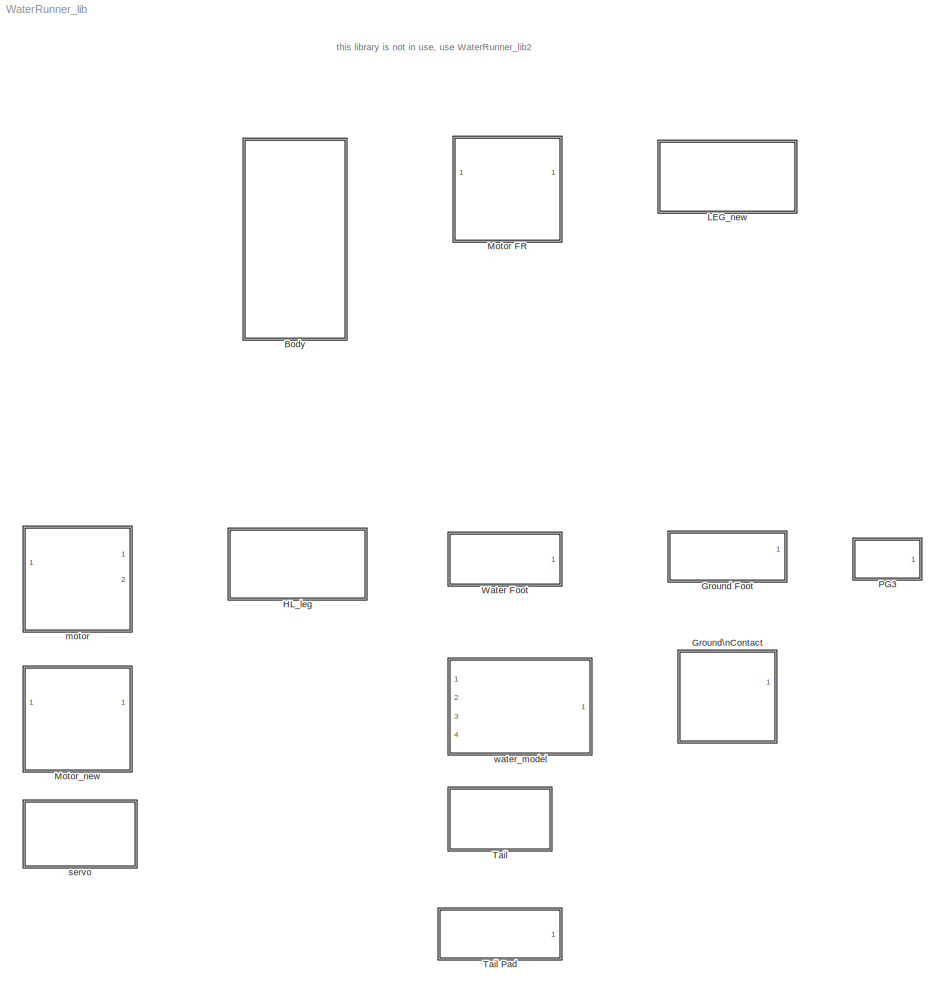
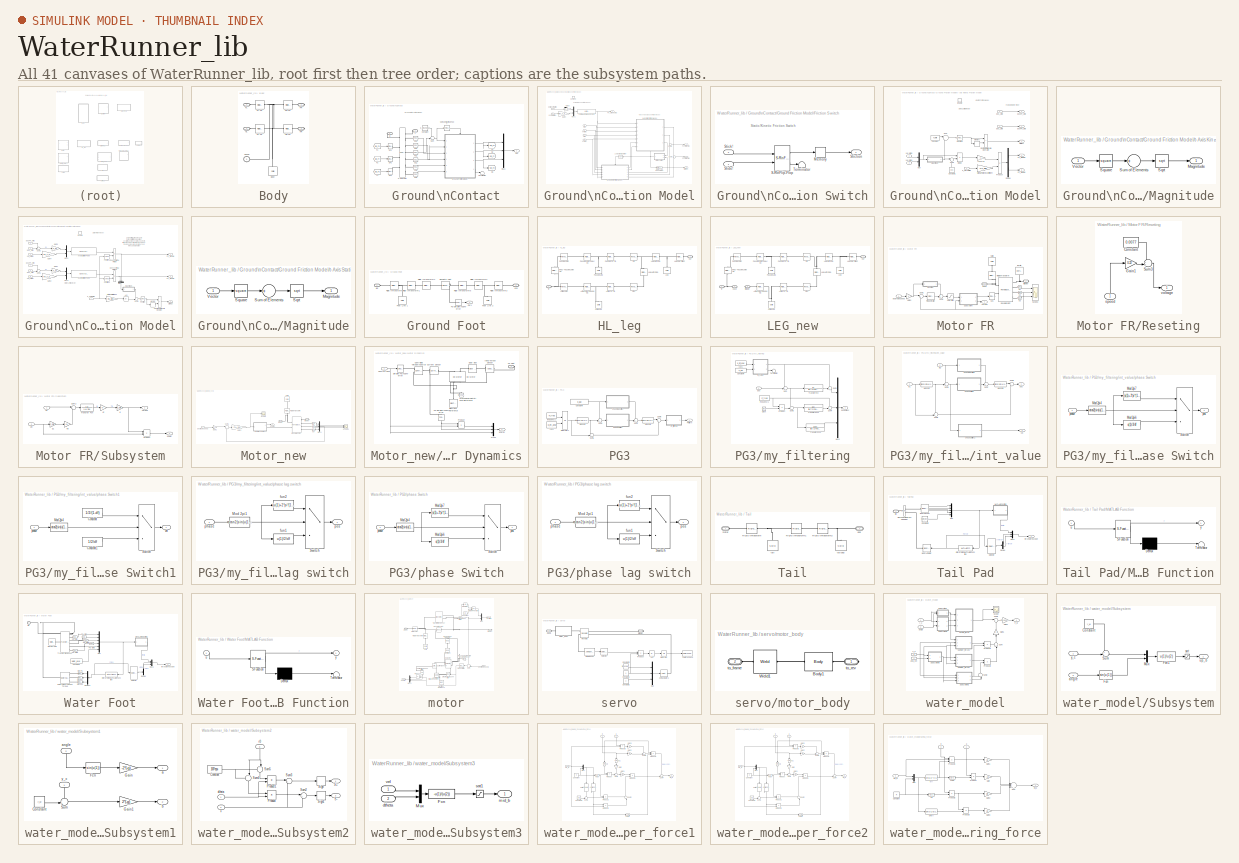
[diagram: thumbnail index - all 41 canvases of the model, root first then tree order]
MODEL WaterRunner_lib
KIND library
BLOCK [SubSystem] Body
  FunctionWithSeparateData = off
  MaskHideContents = off
  MinAlgLoopOccurrences = off
  Opaque = off
  Ports = [0, 0, 0, 0, 0, 3, 2]
  PropExecContextOutsideSubsystem = off
  RTWSystemCode = Auto
  RequestExecContextInheritance = off
  SID = 635
BLOCK [Reference] Body/Body  REF=sm_lib/Body Elements/Solid
  BlockFunction = simmechanics.library.body_elements.solid
  BrickDimensionUnits = m
  BrickDimensions = body_size
  CenterOfMass = [0 0 0]
  CenterOfMassUnits = m
  ClassName = Solid
  CylinderLength = 1
  CylinderLengthUnits = m
  CylinderRadius = 1
  CylinderRadiusUnits = m
  Density = 1000
  DensityBased = off
  DensityUnits = kg/(m^3)
  EllipsoidRadii = [1 1 1]
  EllipsoidRadiiUnits = m
  ExtGeomFileUnits = m
  ExtrusionCrossSection = [1 1; -1 1; -1 -1; 1 -1]
  ExtrusionCrossSectionUnits = m
  ExtrusionLength = 1
  ExtrusionLengthUnits = m
  GeometryShape = Brick
  GraphicAmbientColor = [0.15 0.15 0.15 1.0]
  GraphicDiffuseColor = [0.6 0.0 0.0]
  GraphicEmissiveColor = [0.0 0.0 0.0 1.0]
  GraphicOpacity = 0.7
  GraphicShininess = 75
  GraphicSpecularColor = [0.5 0.5 0.5 1.0]
  GraphicType = FromGeometry
  GraphicVisPropType = SimpleVisualProperties
  InertiaType = CalculateFromGeometry
  MarkerShape = Sphere
  MarkerSize = 10
  MarkerSizeUnits = m
  Mass = frame_mass
  MassUnits = kg
  MomentsOfInertia = [1 1 1]
  MomentsOfInertiaUnits = kg*m^2
  PolygonNumSides = 3
  PolygonOuterRadius = 1
  PolygonOuterRadiusUnits = m
  Ports = [0, 0, 0, 0, 0, 0, 1]
  ProductsOfInertia = [0 0 0]
  ProductsOfInertiaUnits = kg*m^2
  RectangleSize = [1 1]
  RectangleSizeUnits = m
  RevolutionAngle = 180
  RevolutionAngleUnits = deg
  RevolutionCrossSection = [1 1; 1 -1; 2 -1; 2 1]
  RevolutionCrossSectionUnits = m
  RevolutionExtent = Full
  SID = 636
  SourceBlock = sm_lib/Body Elements/Solid
  SourceType = Solid
  SphereRadius = 1
  SphereRadiusUnits = m
BLOCK [PMIOPort] Body/Conn5
  Port = 5
  SID = 645
  Side = Left
BLOCK [PMIOPort] Body/FL
  Port = 2
  SID = 642
  Side = Left
BLOCK [Reference] Body/FL-TR  REF=sm_lib/Frames and\n Transforms/Rigid \nTransform
  BaseAlignAxisA = +Y
  BaseAlignAxisB = +Z
  BlockFunction = simmechanics.library.frames_transforms.rigid_transform
  ClassName = RigidTransform
  FollAlignAxisA = +X
  FollAlignAxisB = +Y
  Ports = [0, 0, 0, 0, 0, 1, 1]
  RotationAngle = 0
  RotationAngleUnits = deg
  RotationArbitraryAxis = [0 0 1]
  RotationMethod = None
  RotationStandardAxis = +Z
  SID = 637
  SourceBlock = sm_lib/Frames and\n Transforms/Rigid \nTransform
  SourceType = Rigid Transform
  TranslationCartesianOffset = FL_TR
  TranslationLengthUnit = m
  TranslationMethod = Cartesian
  TranslationROffset = 0
  TranslationROffsetUnits = m
  TranslationStandardAxis = +Z
  TranslationStandardOffset = 0
  TranslationThetaOffset = 0
  TranslationThetaOffsetUnits = deg
  TranslationZOffset = 0
  TranslationZOffsetUnits = m
BLOCK [PMIOPort] Body/FR
  Port = 1
  SID = 641
  Side = Right
BLOCK [Reference] Body/FR-TR  REF=sm_lib/Frames and\n Transforms/Rigid \nTransform
  BaseAlignAxisA = +Y
  BaseAlignAxisB = +Z
  BlockFunction = simmechanics.library.frames_transforms.rigid_transform
  ClassName = RigidTransform
  FollAlignAxisA = +X
  FollAlignAxisB = +Y
  Ports = [0, 0, 0, 0, 0, 1, 1]
  RotationAngle = 0
  RotationAngleUnits = deg
  RotationArbitraryAxis = [0 0 1]
  RotationMethod = None
  RotationStandardAxis = +Z
  SID = 638
  SourceBlock = sm_lib/Frames and\n Transforms/Rigid \nTransform
  SourceType = Rigid Transform
  TranslationCartesianOffset = FR_TR
  TranslationLengthUnit = m
  TranslationMethod = Cartesian
  TranslationROffset = 0
  TranslationROffsetUnits = m
  TranslationStandardAxis = +Z
  TranslationStandardOffset = 0
  TranslationThetaOffset = 0
  TranslationThetaOffsetUnits = deg
  TranslationZOffset = 0
  TranslationZOffsetUnits = m
BLOCK [PMIOPort] Body/HL
  Port = 4
  SID = 644
  Side = Left
BLOCK [Reference] Body/HL-TR  REF=sm_lib/Frames and\n Transforms/Rigid \nTransform
  BaseAlignAxisA = +Y
  BaseAlignAxisB = +Z
  BlockFunction = simmechanics.library.frames_transforms.rigid_transform
  ClassName = RigidTransform
  FollAlignAxisA = +X
  FollAlignAxisB = +Y
  Ports = [0, 0, 0, 0, 0, 1, 1]
  RotationAngle = 0
  RotationAngleUnits = deg
  RotationArbitraryAxis = [0 0 1]
  RotationMethod = None
  RotationStandardAxis = +Z
  SID = 639
  SourceBlock = sm_lib/Frames and\n Transforms/Rigid \nTransform
  SourceType = Rigid Transform
  TranslationCartesianOffset = HL_TR
  TranslationLengthUnit = m
  TranslationMethod = Cartesian
  TranslationROffset = 0
  TranslationROffsetUnits = m
  TranslationStandardAxis = +Z
  TranslationStandardOffset = 0
  TranslationThetaOffset = 0
  TranslationThetaOffsetUnits = deg
  TranslationZOffset = 0
  TranslationZOffsetUnits = m
BLOCK [PMIOPort] Body/HR
  Port = 3
  SID = 643
  Side = Right
BLOCK [Reference] Body/HR-TR  REF=sm_lib/Frames and\n Transforms/Rigid \nTransform
  BaseAlignAxisA = +Y
  BaseAlignAxisB = +Z
  BlockFunction = simmechanics.library.frames_transforms.rigid_transform
  ClassName = RigidTransform
  FollAlignAxisA = +X
  FollAlignAxisB = +Y
  Ports = [0, 0, 0, 0, 0, 1, 1]
  RotationAngle = 0
  RotationAngleUnits = deg
  RotationArbitraryAxis = [0 0 1]
  RotationMethod = None
  RotationStandardAxis = +Z
  SID = 640
  SourceBlock = sm_lib/Frames and\n Transforms/Rigid \nTransform
  SourceType = Rigid Transform
  TranslationCartesianOffset = HR_TR
  TranslationLengthUnit = m
  TranslationMethod = Cartesian
  TranslationROffset = 0
  TranslationROffsetUnits = m
  TranslationStandardAxis = +Z
  TranslationStandardOffset = 0
  TranslationThetaOffset = 0
  TranslationThetaOffsetUnits = deg
  TranslationZOffset = 0
  TranslationZOffsetUnits = m
BLOCK [SubSystem] Ground Foot
  FunctionWithSeparateData = off
  MaskHideContents = off
  MinAlgLoopOccurrences = off
  Opaque = off
  Ports = [0, 1, 0, 0, 0, 1, 1]
  PropExecContextOutsideSubsystem = off
  RTWSystemCode = Auto
  RequestExecContextInheritance = off
  SID = 352
BLOCK [Reference] Ground Foot/Foot LInk 1  REF=sm_lib/Body Elements/Solid
  BlockFunction = simmechanics.library.body_elements.solid
  BrickDimensionUnits = m
  BrickDimensions = [footWidth, footThickness, Foot_L1]
  CenterOfMass = [0 0 0]
  CenterOfMassUnits = m
  ClassName = Solid
  CylinderLength = 1
  CylinderLengthUnits = m
  CylinderRadius = 1
  CylinderRadiusUnits = m
  Density = footMassDensity
  DensityBased = on
  DensityUnits = kg/(m^3)
  EllipsoidRadii = [1 1 1]
  EllipsoidRadiiUnits = m
  ExtGeomFileUnits = m
  ExtrusionCrossSection = [1 1; -1 1; -1 -1; 1 -1]
  ExtrusionCrossSectionUnits = m
  ExtrusionLength = 1
  ExtrusionLengthUnits = m
  GeometryShape = Brick
  GraphicAmbientColor = [0.15 0.15 0.15 1.0]
  GraphicDiffuseColor = [0.5 0.5 0.5]
  GraphicEmissiveColor = [0.0 0.0 0.0 1.0]
  GraphicOpacity = 1.0
  GraphicShininess = 75
  GraphicSpecularColor = [0.5 0.5 0.5 1.0]
  GraphicType = FromGeometry
  GraphicVisPropType = SimpleVisualProperties
  InertiaType = CalculateFromGeometry
  MarkerShape = Sphere
  MarkerSize = 10
  MarkerSizeUnits = m
  Mass = 1
  MassUnits = kg
  MomentsOfInertia = [1 1 1]
  MomentsOfInertiaUnits = kg*m^2
  PolygonNumSides = 3
  PolygonOuterRadius = 1
  PolygonOuterRadiusUnits = m
  Ports = [0, 0, 0, 0, 0, 0, 1]
  ProductsOfInertia = [0 0 0]
  ProductsOfInertiaUnits = kg*m^2
  RectangleSize = [1 1]
  RectangleSizeUnits = m
  SID = 582
  SourceBlock = sm_lib/Body Elements/Solid
  SourceType = Unknown
  SphereRadius = 1
  SphereRadiusUnits = m
BLOCK [Reference] Ground Foot/Foot LInk 2  REF=sm_lib/Body Elements/Solid
  BlockFunction = simmechanics.library.body_elements.solid
  BrickDimensionUnits = m
  BrickDimensions = [footWidth, footThickness, Foot_L2]
  CenterOfMass = [0 0 0]
  CenterOfMassUnits = m
  ClassName = Solid
  CylinderLength = 1
  CylinderLengthUnits = m
  CylinderRadius = 1
  CylinderRadiusUnits = m
  Density = footMassDensity
  DensityBased = on
  DensityUnits = kg/(m^3)
  EllipsoidRadii = [1 1 1]
  EllipsoidRadiiUnits = m
  ExtGeomFileUnits = m
  ExtrusionCrossSection = [1 1; -1 1; -1 -1; 1 -1]
  ExtrusionCrossSectionUnits = m
  ExtrusionLength = 1
  ExtrusionLengthUnits = m
  GeometryShape = Brick
  GraphicAmbientColor = [0.15 0.15 0.15 1.0]
  GraphicDiffuseColor = [0.5 0.5 0.5]
  GraphicEmissiveColor = [0.0 0.0 0.0 1.0]
  GraphicOpacity = 1.0
  GraphicShininess = 75
  GraphicSpecularColor = [0.5 0.5 0.5 1.0]
  GraphicType = FromGeometry
  GraphicVisPropType = SimpleVisualProperties
  InertiaType = CalculateFromGeometry
  MarkerShape = Sphere
  MarkerSize = 10
  MarkerSizeUnits = m
  Mass = 1
  MassUnits = kg
  MomentsOfInertia = [1 1 1]
  MomentsOfInertiaUnits = kg*m^2
  PolygonNumSides = 3
  PolygonOuterRadius = 1
  PolygonOuterRadiusUnits = m
  Ports = [0, 0, 0, 0, 0, 0, 1]
  ProductsOfInertia = [0 0 0]
  ProductsOfInertiaUnits = kg*m^2
  RectangleSize = [1 1]
  RectangleSizeUnits = m
  SID = 586
  SourceBlock = sm_lib/Body Elements/Solid
  SourceType = Unknown
  SphereRadius = 1
  SphereRadiusUnits = m
BLOCK [Outport] Ground Foot/Out1
  IconDisplay = Port number
  SID = 588
BLOCK [Reference] Ground Foot/PS-Simulink\nConverter  REF=nesl_utility/PS-Simulink\nConverter
  AffineConversion = off
  LeftPortType = input
  PhysicalDomain = network_engine_domain
  Ports = [0, 1, 0, 0, 0, 1]
  RightPortType = output
  SID = 589
  SourceBlock = nesl_utility/PS-Simulink\nConverter
  SourceType = PS-Simulink\nConverter
  SubClassName = ps_output
  Unit = 1
BLOCK [Reference] Ground Foot/Revolute Joint  REF=sm_lib/Joints/Revolute Joint
  ActuationMode = NoActuation
  BlockFunction = simmechanics.library.joints.revolute_joint
  ClassName = RevoluteJoint
  ConstraintWrenchDir = FollowerOnBase
  ConstraintWrenchFrame = BaseFrame
  DampingCoefficient = b_PRBM
  DampingCoefficientUnits = N*m/(rad/s)
  EquilibriumPosition = 0
  EquilibriumPositionUnits = deg
  Ports = [0, 0, 0, 0, 0, 1, 2]
  PositionTargetPriority = High
  PositionTargetSpecify = off
  PositionTargetValue = 0
  PositionTargetValueUnits = deg
  SID = 583
  SenseAcceleration = off
  SenseConstraintForceX = off
  SenseConstraintForceY = off
  SenseConstraintForceZ = off
  SenseConstraintTorqueX = off
  SenseConstraintTorqueY = off
  SenseConstraintTorqueZ = off
  SensePosition = on
  SenseTorqueForce = off
  SenseVelocity = off
  SourceBlock = sm_lib/Joints/Revolute Joint
  SourceType = Unknown
  SpringStiffness = k_PRBM
  SpringStiffnessUnits = N*m/rad
  VelocityTargetPriority = High
  VelocityTargetSpecify = off
  VelocityTargetValue = 0
  VelocityTargetValueUnits = deg/s
BLOCK [Reference] Ground Foot/Rigid \nTransform  REF=sm_lib/Frames and\n Transforms/Rigid \nTransform
  BaseAlignAxisA = +Y
  BaseAlignAxisB = +Z
  BlockFunction = simmechanics.library.frames_transforms.rigid_transform
  ClassName = RigidTransform
  FollAlignAxisA = +X
  FollAlignAxisB = +Y
  Ports = [0, 0, 0, 0, 0, 1, 1]
  RotationAngle = 0
  RotationAngleUnits = deg
  RotationArbitraryAxis = [0 0 1]
  RotationMethod = None
  RotationStandardAxis = +Z
  SID = 579
  SourceBlock = sm_lib/Frames and\n Transforms/Rigid \nTransform
  SourceType = Rigid Transform
  TranslationCartesianOffset = [0 0 Foot_L1/2]
  TranslationLengthUnit = m
  TranslationMethod = Cartesian
  TranslationROffset = 0
  TranslationROffsetUnits = m
  TranslationStandardAxis = +Z
  TranslationStandardOffset = 0
  TranslationThetaOffset = 0
  TranslationThetaOffsetUnits = deg
  TranslationZOffset = 0
  TranslationZOffsetUnits = m
BLOCK [Reference] Ground Foot/Rigid \nTransform1  REF=sm_lib/Frames and\n Transforms/Rigid \nTransform
  BaseAlignAxisA = +Y
  BaseAlignAxisB = +Z
  BlockFunction = simmechanics.library.frames_transforms.rigid_transform
  ClassName = RigidTransform
  FollAlignAxisA = +X
  FollAlignAxisB = +Y
  Ports = [0, 0, 0, 0, 0, 1, 1]
  RotationAngle = 90
  RotationAngleUnits = deg
  RotationArbitraryAxis = [0 0 1]
  RotationMethod = None
  RotationStandardAxis = +Y
  SID = 581
  SourceBlock = sm_lib/Frames and\n Transforms/Rigid \nTransform
  SourceType = Unknown
  TranslationCartesianOffset = [0 0 Foot_L1/2]
  TranslationLengthUnit = m
  TranslationMethod = Cartesian
  TranslationROffset = 0
  TranslationROffsetUnits = m
  TranslationStandardAxis = +Z
  TranslationStandardOffset = 0
  TranslationThetaOffset = 0
  TranslationThetaOffsetUnits = deg
  TranslationZOffset = 0
  TranslationZOffsetUnits = m
BLOCK [Reference] Ground Foot/Rigid \nTransform2  REF=sm_lib/Frames and\n Transforms/Rigid \nTransform
  BaseAlignAxisA = +Y
  BaseAlignAxisB = +Z
  BlockFunction = simmechanics.library.frames_transforms.rigid_transform
  ClassName = RigidTransform
  FollAlignAxisA = +X
  FollAlignAxisB = +Y
  Ports = [0, 0, 0, 0, 0, 1, 1]
  RotationAngle = 90
  RotationAngleUnits = deg
  RotationArbitraryAxis = [0 0 1]
  RotationMethod = None
  RotationStandardAxis = -Y
  SID = 585
  SourceBlock = sm_lib/Frames and\n Transforms/Rigid \nTransform
  SourceType = Unknown
  TranslationCartesianOffset = [0 0 Foot_L2/2]
  TranslationLengthUnit = m
  TranslationMethod = Cartesian
  TranslationROffset = 0
  TranslationROffsetUnits = m
  TranslationStandardAxis = +Z
  TranslationStandardOffset = 0
  TranslationThetaOffset = 0
  TranslationThetaOffsetUnits = deg
  TranslationZOffset = 0
  TranslationZOffsetUnits = m
BLOCK [Reference] Ground Foot/Rigid \nTransform3  REF=sm_lib/Frames and\n Transforms/Rigid \nTransform
  BaseAlignAxisA = +Y
  BaseAlignAxisB = +Z
  BlockFunction = simmechanics.library.frames_transforms.rigid_transform
  ClassName = RigidTransform
  FollAlignAxisA = +X
  FollAlignAxisB = +Y
  Ports = [0, 0, 0, 0, 0, 1, 1]
  RotationAngle = 0
  RotationAngleUnits = deg
  RotationArbitraryAxis = [0 0 1]
  RotationMethod = None
  RotationStandardAxis = +Z
  SID = 587
  SourceBlock = sm_lib/Frames and\n Transforms/Rigid \nTransform
  SourceType = Rigid Transform
  TranslationCartesianOffset = [0 0 Foot_L2/2]
  TranslationLengthUnit = m
  TranslationMethod = Cartesian
  TranslationROffset = 0
  TranslationROffsetUnits = m
  TranslationStandardAxis = +Z
  TranslationStandardOffset = 0
  TranslationThetaOffset = 0
  TranslationThetaOffsetUnits = deg
  TranslationZOffset = 0
  TranslationZOffsetUnits = m
BLOCK [Reference] Ground Foot/Rigid \nTransform4  REF=sm_lib/Frames and\n Transforms/Rigid \nTransform
  BaseAlignAxisA = +Y
  BaseAlignAxisB = +Z
  BlockFunction = simmechanics.library.frames_transforms.rigid_transform
  ClassName = RigidTransform
  FollAlignAxisA = +X
  FollAlignAxisB = +Y
  Ports = [0, 0, 0, 0, 0, 1, 1]
  RotationAngle = 90
  RotationAngleUnits = deg
  RotationArbitraryAxis = [0 0 1]
  RotationMethod = StandardAxis
  RotationStandardAxis = +Y
  SID = 593
  SourceBlock = sm_lib/Frames and\n Transforms/Rigid \nTransform
  SourceType = Unknown
  TranslationCartesianOffset = [0 0 Foot_L1/2]
  TranslationLengthUnit = m
  TranslationMethod = None
  TranslationROffset = 0
  TranslationROffsetUnits = m
  TranslationStandardAxis = +Z
  TranslationStandardOffset = 0
  TranslationThetaOffset = 0
  TranslationThetaOffsetUnits = deg
  TranslationZOffset = 0
  TranslationZOffsetUnits = m
BLOCK [Reference] Ground Foot/Rigid \nTransform5  REF=sm_lib/Frames and\n Transforms/Rigid \nTransform
  BaseAlignAxisA = +Y
  BaseAlignAxisB = +Z
  BlockFunction = simmechanics.library.frames_transforms.rigid_transform
  ClassName = RigidTransform
  FollAlignAxisA = +X
  FollAlignAxisB = +Y
  Ports = [0, 0, 0, 0, 0, 1, 1]
  RotationAngle = 90
  RotationAngleUnits = deg
  RotationArbitraryAxis = [0 0 1]
  RotationMethod = StandardAxis
  RotationStandardAxis = -Y
  SID = 594
  SourceBlock = sm_lib/Frames and\n Transforms/Rigid \nTransform
  SourceType = Unknown
  TranslationCartesianOffset = [0 0 Foot_L1/2]
  TranslationLengthUnit = m
  TranslationMethod = None
  TranslationROffset = 0
  TranslationROffsetUnits = m
  TranslationStandardAxis = +Z
  TranslationStandardOffset = 0
  TranslationThetaOffset = 0
  TranslationThetaOffsetUnits = deg
  TranslationZOffset = 0
  TranslationZOffsetUnits = m
BLOCK [PMIOPort] Ground Foot/end
  Port = 2
  SID = 358
  Side = Right
BLOCK [PMIOPort] Ground Foot/leg
  Port = 1
  SID = 357
  Side = Left
BLOCK [SubSystem] Ground\nContact
  FunctionWithSeparateData = off
  MaskHideContents = off
  MinAlgLoopOccurrences = off
  Opaque = off
  Ports = [0, 1, 0, 0, 0, 1, 1]
  PropExecContextOutsideSubsystem = off
  RTWSystemCode = Auto
  RequestExecContextInheritance = off
  SID = 664
BLOCK [Reference] Ground\nContact/6-DOF Joint  REF=sm_lib/Joints/6-DOF Joint
  BlockFunction = simmechanics.library.joints.sixdof_joint
  ClassName = SixDofJoint
  ConstraintWrenchDir = FollowerOnBase
  ConstraintWrenchFrame = BaseFrame
  Ports = [0, 0, 0, 0, 0, 4, 7]
  PxActuationMode = TorqueForceActuation
  PxDampingCoefficient = 0
  PxDampingCoefficientUnits = N/(m/s)
  PxEquilibriumPosition = 0
  PxEquilibriumPositionUnits = m
  PxPositionTargetPriority = High
  PxPositionTargetSpecify = off
  PxPositionTargetValue = 0
  PxPositionTargetValueUnits = m
  PxSenseAcceleration = off
  PxSensePosition = on
  PxSenseTorqueForce = off
  PxSenseVelocity = on
  PxSpringStiffness = 0
  PxSpringStiffnessUnits = N/m
  PxVelocityTargetPriority = High
  PxVelocityTargetSpecify = off
  PxVelocityTargetValue = 0
  PxVelocityTargetValueUnits = m/s
  PyActuationMode = TorqueForceActuation
  PyDampingCoefficient = 0
  PyDampingCoefficientUnits = N/(m/s)
  PyEquilibriumPosition = 0
  PyEquilibriumPositionUnits = m
  PyPositionTargetPriority = High
  PyPositionTargetSpecify = off
  PyPositionTargetValue = 0
  PyPositionTargetValueUnits = m
  PySenseAcceleration = off
  PySensePosition = on
  PySenseTorqueForce = off
  PySenseVelocity = on
  PySpringStiffness = 0
  PySpringStiffnessUnits = N/m
  PyVelocityTargetPriority = High
  PyVelocityTargetSpecify = off
  PyVelocityTargetValue = 0
  PyVelocityTargetValueUnits = m/s
  PzActuationMode = TorqueForceActuation
  PzDampingCoefficient = 0
  PzDampingCoefficientUnits = N/(m/s)
  PzEquilibriumPosition = 0
  PzEquilibriumPositionUnits = m
  PzPositionTargetPriority = High
  PzPositionTargetSpecify = off
  PzPositionTargetValue = 0
  PzPositionTargetValueUnits = m
  PzSenseAcceleration = off
  PzSensePosition = on
  PzSenseTorqueForce = off
  PzSenseVelocity = on
  PzSpringStiffness = 0
  PzSpringStiffnessUnits = N/m
  PzVelocityTargetPriority = High
  PzVelocityTargetSpecify = off
  PzVelocityTargetValue = 0
  PzVelocityTargetValueUnits = m/s
  SID = 665
  SenseConstraintForceX = off
  SenseConstraintForceY = off
  SenseConstraintForceZ = off
  SenseConstraintTorqueX = off
  SenseConstraintTorqueY = off
  SenseConstraintTorqueZ = off
  SourceBlock = sm_lib/Joints/6-DOF Joint
  SourceType = 6-DOF Joint
  SphActuateTorque = off
  SphActuateTorqueX = off
  SphActuateTorqueY = off
  SphActuateTorqueZ = off
  SphActuationFrame = BaseFrame
  SphActuationMode = NoActuation
  SphDampingCoefficient = 0
  SphDampingCoefficientUnits = N*m/(deg/s)
  SphDefPosBaseAlignAxisA = +Y
  SphDefPosBaseAlignAxisB = +Z
  SphDefPosFollAlignAxisA = +X
  SphDefPosFollAlignAxisB = +Y
  SphDefPosRotationAngle = 0
  SphDefPosRotationAngleUnits = deg
  SphDefPosRotationArbitraryAxis = [0 0 1]
  SphDefPosRotationMethod = None
  SphDefPosRotationStandardAxis = +Z
  SphEqPosBaseAlignAxisA = +Y
  SphEqPosBaseAlignAxisB = +Z
  SphEqPosFollAlignAxisA = +X
  SphEqPosFollAlignAxisB = +Y
  SphEqPosRotationAngle = 0
  SphEqPosRotationAngleUnits = deg
  SphEqPosRotationArbitraryAxis = [0 0 1]
  SphEqPosRotationMethod = None
  SphEqPosRotationStandardAxis = +Z
  SphPositionTargetBaseAlignAxisA = +Y
  SphPositionTargetBaseAlignAxisB = +Z
  SphPositionTargetFollAlignAxisA = +X
  SphPositionTargetFollAlignAxisB = +Y
  SphPositionTargetPriority = High
  SphPositionTargetRotationAngle = 0
  SphPositionTargetRotationAngleUnits = deg
  SphPositionTargetRotationArbitraryAxis = [0 0 1]
  SphPositionTargetRotationMethod = None
  SphPositionTargetRotationStandardAxis = +Z
  SphPositionTargetSpecify = off
  SphSenseAcceleration = off
  SphSenseAccelerationX = off
  SphSenseAccelerationY = off
  SphSenseAccelerationZ = off
  SphSensePosition = off
  SphSenseTorqueForce = off
  SphSenseTorqueX = off
  SphSenseTorqueY = off
  SphSenseTorqueZ = off
  SphSenseVelocity = off
  SphSenseVelocityX = off
  SphSenseVelocityY = off
  SphSenseVelocityZ = off
  SphSensingFrame = BaseFrame
  SphSpringStiffness = 0
  SphSpringStiffnessUnits = N*m/deg
  SphVelocityTargetInFollowerFrame = on
  SphVelocityTargetPriority = High
  SphVelocityTargetSpecify = off
  SphVelocityTargetValue = [0 0 0]
  SphVelocityTargetValueUnits = deg/s
BLOCK [PMIOPort] Ground\nContact/B
  Port = 2
  SID = 793
  Side = Right
BLOCK [Constant] Ground\nContact/Constant
  SID = 666
  Value = p_groundpos
BLOCK [PMIOPort] Ground\nContact/F
  Port = 1
  SID = 792
  Side = Left
BLOCK [From] Ground\nContact/F1
  GotoTag = sig_Fx
  SID = 667
BLOCK [From] Ground\nContact/F2
  GotoTag = sig_Fy
  SID = 668
BLOCK [From] Ground\nContact/F3
  GotoTag = sig_Fz
  SID = 669
BLOCK [Goto] Ground\nContact/G1
  GotoTag = sig_Fx
  SID = 670
BLOCK [Goto] Ground\nContact/G2
  GotoTag = sig_Fy
  SID = 671
BLOCK [Goto] Ground\nContact/G3
  GotoTag = sig_Fz
  SID = 672
BLOCK [Outport] Ground\nContact/GRF
  IconDisplay = Port number
  SID = 794
BLOCK [SubSystem] Ground\nContact/Ground Friction Model
  FunctionWithSeparateData = off
  MaskHideContents = off
  MinAlgLoopOccurrences = off
  Opaque = off
  Ports = [6, 4, 1]
  PropExecContextOutsideSubsystem = off
  RTWSystemCode = Auto
  RequestExecContextInheritance = off
  SID = 673
BLOCK [EnablePort] Ground\nContact/Ground Friction Model/Contact!
  Ports = []
  SID = 680
  StatesWhenEnabling = reset
BLOCK [DataTypeConversion] Ground\nContact/Ground Friction Model/Data Type Conversion
  OutDataTypeStr = double
  RndMeth = Floor
  SID = 681
  SaturateOnIntegerOverflow = off
BLOCK [Outport] Ground\nContact/Ground Friction Model/Fn_Ground[N]
  AttributesFormatString = initial = '%<InitialOutput>'\\nwhen disabled = '%<OutputWhenDisabled>'
  IconDisplay = Port number
  InitialOutput = 0
  OutputWhenDisabled = reset
  Port = 2
  SID = 774
BLOCK [SubSystem] Ground\nContact/Ground Friction Model/Friction Switch
  FunctionWithSeparateData = off
  MaskHideContents = off
  MinAlgLoopOccurrences = off
  Opaque = off
  Ports = [2, 1]
  PropExecContextOutsideSubsystem = off
  RTWSystemCode = Auto
  RequestExecContextInheritance = off
  SID = 682
BLOCK [Memory] Ground\nContact/Ground Friction Model/Friction Switch/Memory
  SID = 685
BLOCK [Reference] Ground\nContact/Ground Friction Model/Friction Switch/S-R\nFlip-Flop  REF=simulink_extras/Flip Flops/S-R\nFlip-Flop
  Ports = [2, 2]
  SID = 686
  SourceBlock = simulink_extras/Flip Flops/S-R\nFlip-Flop
  SourceType = SRFlipFlop
  initial_condition = 0
BLOCK [Inport] Ground\nContact/Ground Friction Model/Friction Switch/Slide!
  IconDisplay = Port number
  SID = 683
BLOCK [Inport] Ground\nContact/Ground Friction Model/Friction Switch/Stick!
  IconDisplay = Port number
  Port = 2
  SID = 684
BLOCK [Outport] Ground\nContact/Ground Friction Model/Friction Switch/Stiction
  IconDisplay = Port number
  SID = 688
BLOCK [Terminator] Ground\nContact/Ground Friction Model/Friction Switch/Terminator
  SID = 687
BLOCK [Outport] Ground\nContact/Ground Friction Model/FxFriction [N]
  AttributesFormatString = initial = '%<InitialOutput>'<path>'%<OutputWhenDisabled>'
  IconDisplay = Port number
  InitialOutput = 0
  OutputWhenDisabled = reset
  SID = 773
BLOCK [Outport] Ground\nContact/Ground Friction Model/FzFriction [N]
  AttributesFormatString = initial = '%<InitialOutput>'<path>'%<OutputWhenDisabled>'
  IconDisplay = Port number
  InitialOutput = 0
  OutputWhenDisabled = reset
  Port = 3
  SID = 775
BLOCK [Gain] Ground\nContact/Ground Friction Model/Gain3
  Gain = k_gy
  OutDataTypeStr = Inherit: Inherit via internal rule
  ParamDataTypeStr = Inherit: Inherit via internal rule
  SID = 690
  SaturateOnIntegerOverflow = off
BLOCK [Gain] Ground\nContact/Ground Friction Model/Gain4
  Gain = inv_v_gy_max
  OutDataTypeStr = Inherit: Inherit via internal rule
  ParamDataTypeStr = Inherit: Inherit via internal rule
  SID = 691
  SaturateOnIntegerOverflow = off
BLOCK [Logic] Ground\nContact/Ground Friction Model/Logical\nOperator
  AllPortsSameDT = off
  Operator = NOT
  OutDataTypeStr = boolean
  Ports = [1, 1]
  SID = 692
BLOCK [Mux] Ground\nContact/Ground Friction Model/Mux1
  DisplayOption = bar
  Inputs = 2
  Ports = [2, 1]
  SID = 693
BLOCK [Outport] Ground\nContact/Ground Friction Model/Stiction!
  AttributesFormatString = initial = '%<InitialOutput>'<path>'%<OutputWhenDisabled>'
  IconDisplay = Port number
  InitialOutput = 0
  OutputWhenDisabled = reset
  Port = 4
  SID = 776
BLOCK [Sum] Ground\nContact/Ground Friction Model/Sum1
  IconShape = round
  InputSameDT = off
  OutDataTypeStr = Inherit: Inherit via internal rule
  Ports = [2, 1]
  SID = 694
  SaturateOnIntegerOverflow = off
BLOCK [Sum] Ground\nContact/Ground Friction Model/Sum2
  IconShape = round
  InputSameDT = off
  OutDataTypeStr = Inherit: Inherit via internal rule
  Ports = [2, 1]
  SID = 695
  SaturateOnIntegerOverflow = off
BLOCK [Inport] Ground\nContact/Ground Friction Model/delta normal [m]
  IconDisplay = Port number
  SID = 674
BLOCK [Fcn] Ground\nContact/Ground Friction Model/normal-Axis Ground Force
  Expr = - u(1)  *  (1-u(2)) * (u(2)<1)
  SID = 696
BLOCK [SubSystem] Ground\nContact/Ground Friction Model/t-Axis Kinetic Friction Model
  FunctionWithSeparateData = off
  MaskHideContents = off
  MinAlgLoopOccurrences = off
  Opaque = off
  Ports = [5, 5, 1]
  PropExecContextOutsideSubsystem = off
  RTWSystemCode = Auto
  RequestExecContextInheritance = off
  SID = 697
BLOCK [Constant] Ground\nContact/Ground Friction Model/t-Axis Kinetic Friction Model/Constant
  SID = 704
  Value = vLimit
BLOCK [Constant] Ground\nContact/Ground Friction Model/t-Axis Kinetic Friction Model/Constant1
  SID = 705
  Value = eps
BLOCK [Demux] Ground\nContact/Ground Friction Model/t-Axis Kinetic Friction Model/Demux
  DisplayOption = bar
  Outputs = 2
  Ports = [1, 2]
  SID = 706
BLOCK [Product] Ground\nContact/Ground Friction Model/t-Axis Kinetic Friction Model/Divide
  InputSameDT = off
  Inputs = */
  OutDataTypeStr = Inherit: Inherit via internal rule
  Ports = [2, 1]
  RndMeth = Floor
  SID = 707
  SaturateOnIntegerOverflow = off
BLOCK [EnablePort] Ground\nContact/Ground Friction Model/t-Axis Kinetic Friction Model/Enable
  Ports = []
  SID = 703
  StatesWhenEnabling = reset
  ZeroCross = off
BLOCK [Inport] Ground\nContact/Ground Friction Model/t-Axis Kinetic Friction Model/F_Normal [N]
  IconDisplay = Port number
  Port = 5
  SID = 702
BLOCK [RelationalOperator] Ground\nContact/Ground Friction Model/t-Axis Kinetic Friction Model/FixPt\nRelational\nOperator
  InputSameDT = off
  Operator = >
  OutDataTypeStr = boolean
  Ports = [2, 1]
  SID = 708
  ZeroCross = off
BLOCK [Outport] Ground\nContact/Ground Friction Model/t-Axis Kinetic Friction Model/Fx_Slide [N]
  AttributesFormatString = initial = '%<InitialOutput>'\\nwhen disabled = '%<OutputWhenDisabled>'
  IconDisplay = Port number
  InitialOutput = 0
  OutputWhenDisabled = reset
  Port = 4
  SID = 726
BLOCK [Outport] Ground\nContact/Ground Friction Model/t-Axis Kinetic Friction Model/Fz_Slide [N]
  AttributesFormatString = initial = '%<InitialOutput>'\\nwhen disabled = '%<OutputWhenDisabled>'
  IconDisplay = Port number
  InitialOutput = 0
  OutputWhenDisabled = reset
  Port = 5
  SID = 727
BLOCK [SubSystem] Ground\nContact/Ground Friction Model/t-Axis Kinetic Friction Model/Magnitude
  FunctionWithSeparateData = off
  MaskHideContents = off
  MinAlgLoopOccurrences = off
  Opaque = off
  Ports = [1, 1]
  PropExecContextOutsideSubsystem = off
  RTWSystemCode = Auto
  RequestExecContextInheritance = off
  SID = 709
BLOCK [Outport] Ground\nContact/Ground Friction Model/t-Axis Kinetic Friction Model/Magnitude/Magnitude
  IconDisplay = Port number
  SID = 714
BLOCK [Sqrt] Ground\nContact/Ground Friction Model/t-Axis Kinetic Friction Model/Magnitude/Sqrt
  OutputSignalType = real
  SID = 711
BLOCK [Math] Ground\nContact/Ground Friction Model/t-Axis Kinetic Friction Model/Magnitude/Square
  Operator = square
  OutputSignalType = real
  Ports = [1, 1]
  SID = 712
BLOCK [Sum] Ground\nContact/Ground Friction Model/t-Axis Kinetic Friction Model/Magnitude/Sum of Elements
  InputSameDT = off
  Inputs = +
  OutDataTypeStr = Inherit: Inherit via internal rule
  Ports = [1, 1]
  SID = 713
  SaturateOnIntegerOverflow = off
BLOCK [Inport] Ground\nContact/Ground Friction Model/t-Axis Kinetic Friction Model/Magnitude/Vector
  IconDisplay = Port number
  SID = 710
BLOCK [Memory] Ground\nContact/Ground Friction Model/t-Axis Kinetic Friction Model/Memory
  SID = 715
BLOCK [Mux] Ground\nContact/Ground Friction Model/t-Axis Kinetic Friction Model/Mux
  DisplayOption = bar
  Inputs = 2
  Ports = [2, 1]
  SID = 716
BLOCK [Reference] Ground\nContact/Ground Friction Model/t-Axis Kinetic Friction Model/Negative  REF=simulink/Logic and Bit\nOperations/Compare\nTo Zero
  OutDataTypeStr = boolean
  Ports = [1, 1]
  SID = 717
  SourceBlock = simulink/Logic and Bit\nOperations/Compare\nTo Zero
  SourceType = Compare To Zero
  ZeroCross = on
  relop = <
BLOCK [Product] Ground\nContact/Ground Friction Model/t-Axis Kinetic Friction Model/Product
  InputSameDT = off
  OutDataTypeStr = Inherit: Inherit via internal rule
  Ports = [2, 1]
  SID = 718
  SaturateOnIntegerOverflow = off
BLOCK [Outport] Ground\nContact/Ground Friction Model/t-Axis Kinetic Friction Model/Stiction!
  AttributesFormatString = initial = '%<InitialOutput>'\\nwhen disabled = '%<OutputWhenDisabled>'
  IconDisplay = Port number
  InitialOutput = 0
  OutputWhenDisabled = reset
  Port = 3
  SID = 725
BLOCK [Sum] Ground\nContact/Ground Friction Model/t-Axis Kinetic Friction Model/Sum
  IconShape = round
  InputSameDT = off
  Inputs = |-+
  OutDataTypeStr = Inherit: Inherit via internal rule
  Ports = [2, 1]
  SID = 719
  SaturateOnIntegerOverflow = off
BLOCK [Sum] Ground\nContact/Ground Friction Model/t-Axis Kinetic Friction Model/Sum1
  IconShape = round
  InputSameDT = off
  Inputs = |++
  OutDataTypeStr = Inherit: Inherit via internal rule
  Ports = [2, 1]
  SID = 720
  SaturateOnIntegerOverflow = off
BLOCK [Outport] Ground\nContact/Ground Friction Model/t-Axis Kinetic Friction Model/posFP_x [m]
  AttributesFormatString = initial = '%<InitialOutput>'\\nwhen disabled = '%<OutputWhenDisabled>'
  IconDisplay = Port number
  InitialOutput = 0
  SID = 723
BLOCK [Outport] Ground\nContact/Ground Friction Model/t-Axis Kinetic Friction Model/posFP_z [m]
  AttributesFormatString = initial = '%<InitialOutput>'\\nwhen disabled = '%<OutputWhenDisabled>'
  IconDisplay = Port number
  InitialOutput = 0
  Port = 2
  SID = 724
BLOCK [Inport] Ground\nContact/Ground Friction Model/t-Axis Kinetic Friction Model/pos_x [m]
  IconDisplay = Port number
  SID = 698
BLOCK [Inport] Ground\nContact/Ground Friction Model/t-Axis Kinetic Friction Model/pos_z [m]
  IconDisplay = Port number
  Port = 3
  SID = 700
BLOCK [Gain] Ground\nContact/Ground Friction Model/t-Axis Kinetic Friction Model/reverse
  Gain = -1
  OutDataTypeStr = Inherit: Inherit via internal rule
  ParamDataTypeStr = Inherit: Inherit via internal rule
  SID = 721
  SaturateOnIntegerOverflow = off
BLOCK [Gain] Ground\nContact/Ground Friction Model/t-Axis Kinetic Friction Model/sliding friction\ncoefficient
  Gain = mu_slide
  OutDataTypeStr = Inherit: Inherit via internal rule
  ParamDataTypeStr = Inherit: Inherit via internal rule
  SID = 722
  SaturateOnIntegerOverflow = off
BLOCK [Inport] Ground\nContact/Ground Friction Model/t-Axis Kinetic Friction Model/vel_x [m//s]
  IconDisplay = Port number
  Port = 2
  SID = 699
BLOCK [Inport] Ground\nContact/Ground Friction Model/t-Axis Kinetic Friction Model/vel_z [m//s]
  IconDisplay = Port number
  Port = 4
  SID = 701
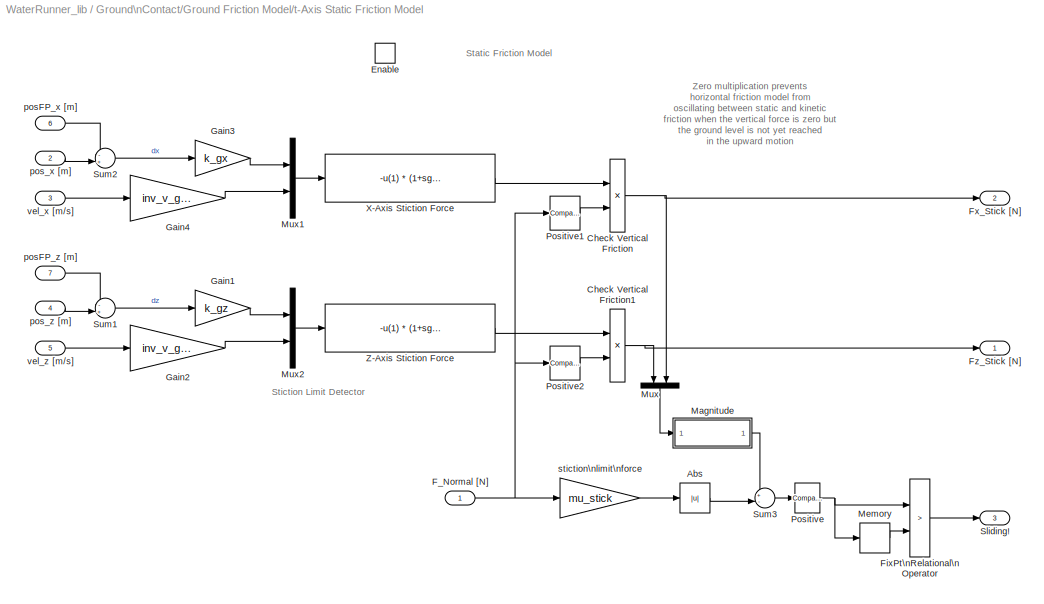
BLOCK [SubSystem] Ground\nContact/Ground Friction Model/t-Axis Static Friction Model
  FunctionWithSeparateData = off
  MaskHideContents = off
  MinAlgLoopOccurrences = off
  Opaque = off
  Ports = [7, 3, 1]
  PropExecContextOutsideSubsystem = off
  RTWSystemCode = Auto
  RequestExecContextInheritance = off
  SID = 731
BLOCK [Abs] Ground\nContact/Ground Friction Model/t-Axis Static Friction Model/Abs
  SID = 740
  SaturateOnIntegerOverflow = off
BLOCK [Product] Ground\nContact/Ground Friction Model/t-Axis Static Friction Model/Check Vertical Friction
  InputSameDT = off
  OutDataTypeStr = Inherit: Inherit via internal rule
  Ports = [2, 1]
  SID = 741
  SaturateOnIntegerOverflow = off
BLOCK [Product] Ground\nContact/Ground Friction Model/t-Axis Static Friction Model/Check Vertical Friction1
  InputSameDT = off
  OutDataTypeStr = Inherit: Inherit via internal rule
  Ports = [2, 1]
  SID = 742
  SaturateOnIntegerOverflow = off
BLOCK [EnablePort] Ground\nContact/Ground Friction Model/t-Axis Static Friction Model/Enable
  Ports = []
  SID = 739
  StatesWhenEnabling = reset
  ZeroCross = off
BLOCK [Inport] Ground\nContact/Ground Friction Model/t-Axis Static Friction Model/F_Normal [N]
  IconDisplay = Port number
  SID = 732
BLOCK [RelationalOperator] Ground\nContact/Ground Friction Model/t-Axis Static Friction Model/FixPt\nRelational\nOperator
  InputSameDT = off
  Operator = >
  OutDataTypeStr = boolean
  Ports = [2, 1]
  SID = 743
  ZeroCross = off
BLOCK [Outport] Ground\nContact/Ground Friction Model/t-Axis Static Friction Model/Fx_Stick [N]
  AttributesFormatString = when disabled: %<OutputWhenDisabled>\\ninitial: %<InitialOutput>
  IconDisplay = Port number
  InitialOutput = 0
  OutputWhenDisabled = reset
  Port = 2
  SID = 768
BLOCK [Outport] Ground\nContact/Ground Friction Model/t-Axis Static Friction Model/Fz_Stick [N]
  AttributesFormatString = when disabled: %<OutputWhenDisabled>\\ninitial: %<InitialOutput>
  IconDisplay = Port number
  InitialOutput = 0
  OutputWhenDisabled = reset
  SID = 767
BLOCK [Gain] Ground\nContact/Ground Friction Model/t-Axis Static Friction Model/Gain1
  Gain = k_gz
  OutDataTypeStr = Inherit: Inherit via internal rule
  ParamDataTypeStr = Inherit: Inherit via internal rule
  SID = 744
  SaturateOnIntegerOverflow = off
BLOCK [Gain] Ground\nContact/Ground Friction Model/t-Axis Static Friction Model/Gain2
  Gain = inv_v_gz_max
  OutDataTypeStr = Inherit: Inherit via internal rule
  ParamDataTypeStr = Inherit: Inherit via internal rule
  SID = 745
  SaturateOnIntegerOverflow = off
BLOCK [Gain] Ground\nContact/Ground Friction Model/t-Axis Static Friction Model/Gain3
  Gain = k_gx
  OutDataTypeStr = Inherit: Inherit via internal rule
  ParamDataTypeStr = Inherit: Inherit via internal rule
  SID = 746
  SaturateOnIntegerOverflow = off
BLOCK [Gain] Ground\nContact/Ground Friction Model/t-Axis Static Friction Model/Gain4
  Gain = inv_v_gx_max
  OutDataTypeStr = Inherit: Inherit via internal rule
  ParamDataTypeStr = Inherit: Inherit via internal rule
  SID = 747
  SaturateOnIntegerOverflow = off
BLOCK [SubSystem] Ground\nContact/Ground Friction Model/t-Axis Static Friction Model/Magnitude
  FunctionWithSeparateData = off
  MaskHideContents = off
  MinAlgLoopOccurrences = off
  Opaque = off
  Ports = [1, 1]
  PropExecContextOutsideSubsystem = off
  RTWSystemCode = Auto
  RequestExecContextInheritance = off
  SID = 748
BLOCK [Outport] Ground\nContact/Ground Friction Model/t-Axis Static Friction Model/Magnitude/Magnitude
  IconDisplay = Port number
  SID = 753
BLOCK [Sqrt] Ground\nContact/Ground Friction Model/t-Axis Static Friction Model/Magnitude/Sqrt
  OutputSignalType = real
  SID = 750
BLOCK [Math] Ground\nContact/Ground Friction Model/t-Axis Static Friction Model/Magnitude/Square
  Operator = square
  OutputSignalType = real
  Ports = [1, 1]
  SID = 751
BLOCK [Sum] Ground\nContact/Ground Friction Model/t-Axis Static Friction Model/Magnitude/Sum of Elements
  InputSameDT = off
  Inputs = +
  OutDataTypeStr = Inherit: Inherit via internal rule
  Ports = [1, 1]
  SID = 752
  SaturateOnIntegerOverflow = off
BLOCK [Inport] Ground\nContact/Ground Friction Model/t-Axis Static Friction Model/Magnitude/Vector
  IconDisplay = Port number
  SID = 749
BLOCK [Memory] Ground\nContact/Ground Friction Model/t-Axis Static Friction Model/Memory
  SID = 754
BLOCK [Mux] Ground\nContact/Ground Friction Model/t-Axis Static Friction Model/Mux
  DisplayOption = bar
  Inputs = 2
  Ports = [2, 1]
  SID = 755
BLOCK [Mux] Ground\nContact/Ground Friction Model/t-Axis Static Friction Model/Mux1
  DisplayOption = bar
  Inputs = 2
  Ports = [2, 1]
  SID = 756
BLOCK [Mux] Ground\nContact/Ground Friction Model/t-Axis Static Friction Model/Mux2
  DisplayOption = bar
  Inputs = 2
  Ports = [2, 1]
  SID = 757
BLOCK [Reference] Ground\nContact/Ground Friction Model/t-Axis Static Friction Model/Positive  REF=simulink/Logic and Bit\nOperations/Compare\nTo Zero
  OutDataTypeStr = boolean
  Ports = [1, 1]
  SID = 758
  SourceBlock = simulink/Logic and Bit\nOperations/Compare\nTo Zero
  SourceType = Compare To Zero
  ZeroCross = on
  relop = >
BLOCK [Reference] Ground\nContact/Ground Friction Model/t-Axis Static Friction Model/Positive1  REF=simulink/Logic and Bit\nOperations/Compare\nTo Zero
  OutDataTypeStr = boolean
  Ports = [1, 1]
  SID = 759
  SourceBlock = simulink/Logic and Bit\nOperations/Compare\nTo Zero
  SourceType = Compare To Zero
  ZeroCross = on
  relop = >
BLOCK [Reference] Ground\nContact/Ground Friction Model/t-Axis Static Friction Model/Positive2  REF=simulink/Logic and Bit\nOperations/Compare\nTo Zero
  OutDataTypeStr = boolean
  Ports = [1, 1]
  SID = 760
  SourceBlock = simulink/Logic and Bit\nOperations/Compare\nTo Zero
  SourceType = Compare To Zero
  ZeroCross = on
  relop = >
BLOCK [Outport] Ground\nContact/Ground Friction Model/t-Axis Static Friction Model/Sliding!
  AttributesFormatString = when disabled: %<OutputWhenDisabled>\\ninitial: %<InitialOutput>
  IconDisplay = Port number
  InitialOutput = 0
  OutputWhenDisabled = reset
  Port = 3
  SID = 769
BLOCK [Sum] Ground\nContact/Ground Friction Model/t-Axis Static Friction Model/Sum1
  IconShape = round
  InputSameDT = off
  Inputs = -+|
  OutDataTypeStr = Inherit: Inherit via internal rule
  Ports = [2, 1]
  SID = 761
  SaturateOnIntegerOverflow = off
BLOCK [Sum] Ground\nContact/Ground Friction Model/t-Axis Static Friction Model/Sum2
  IconShape = round
  InputSameDT = off
  Inputs = -+|
  OutDataTypeStr = Inherit: Inherit via internal rule
  Ports = [2, 1]
  SID = 762
  SaturateOnIntegerOverflow = off
BLOCK [Sum] Ground\nContact/Ground Friction Model/t-Axis Static Friction Model/Sum3
  IconShape = round
  InputSameDT = off
  Inputs = +-|
  OutDataTypeStr = Inherit: Inherit via internal rule
  Ports = [2, 1]
  SID = 763
  SaturateOnIntegerOverflow = off
BLOCK [Fcn] Ground\nContact/Ground Friction Model/t-Axis Static Friction Model/X-Axis Stiction Force
  Expr = -u(1) * (1+sgn(u(1))*u(2))
  SID = 764
BLOCK [Fcn] Ground\nContact/Ground Friction Model/t-Axis Static Friction Model/Z-Axis Stiction Force
  Expr = -u(1) * (1+sgn(u(1))*u(2))
  SID = 765
BLOCK [Inport] Ground\nContact/Ground Friction Model/t-Axis Static Friction Model/posFP_x [m]
  IconDisplay = Port number
  Port = 6
  SID = 737
BLOCK [Inport] Ground\nContact/Ground Friction Model/t-Axis Static Friction Model/posFP_z [m]
  IconDisplay = Port number
  Port = 7
  SID = 738
BLOCK [Inport] Ground\nContact/Ground Friction Model/t-Axis Static Friction Model/pos_x [m]
  IconDisplay = Port number
  Port = 2
  SID = 733
BLOCK [Inport] Ground\nContact/Ground Friction Model/t-Axis Static Friction Model/pos_z [m]
  IconDisplay = Port number
  Port = 4
  SID = 735
BLOCK [Gain] Ground\nContact/Ground Friction Model/t-Axis Static Friction Model/stiction\nlimit\nforce
  Gain = mu_stick
  OutDataTypeStr = Inherit: Inherit via internal rule
  ParamDataTypeStr = Inherit: Inherit via internal rule
  SID = 766
  SaturateOnIntegerOverflow = off
BLOCK [Inport] Ground\nContact/Ground Friction Model/t-Axis Static Friction Model/vel_x [m//s]
  IconDisplay = Port number
  Port = 3
  SID = 734
BLOCK [Inport] Ground\nContact/Ground Friction Model/t-Axis Static Friction Model/vel_z [m//s]
  IconDisplay = Port number
  Port = 5
  SID = 736
BLOCK [Inport] Ground\nContact/Ground Friction Model/vnormal [m//s]
  IconDisplay = Port number
  Port = 2
  SID = 675
BLOCK [Inport] Ground\nContact/Ground Friction Model/vx [m//s]
  IconDisplay = Port number
  Port = 4
  SID = 677
BLOCK [Inport] Ground\nContact/Ground Friction Model/vz [m//s]
  IconDisplay = Port number
  Port = 6
  SID = 679
BLOCK [Inport] Ground\nContact/Ground Friction Model/x [m]
  IconDisplay = Port number
  Port = 3
  SID = 676
BLOCK [Inport] Ground\nContact/Ground Friction Model/z [m]
  IconDisplay = Port number
  Port = 5
  SID = 678
BLOCK [Mux] Ground\nContact/Mux1
  DisplayOption = bar
  Inputs = 3
  Ports = [3, 1]
  SID = 779
BLOCK [Reference] Ground\nContact/PS1  REF=nesl_utility/PS-Simulink\nConverter
  AffineConversion = off
  LeftPortType = input
  PhysicalDomain = network_engine_domain
  Ports = [0, 1, 0, 0, 0, 1]
  RightPortType = output
  SID = 780
  SourceBlock = nesl_utility/PS-Simulink\nConverter
  SourceType = PS-Simulink\nConverter
  SubClassName = ps_output
  Unit = 1
BLOCK [Reference] Ground\nContact/PS2  REF=nesl_utility/PS-Simulink\nConverter
  AffineConversion = off
  LeftPortType = input
  PhysicalDomain = network_engine_domain
  Ports = [0, 1, 0, 0, 0, 1]
  RightPortType = output
  SID = 781
  SourceBlock = nesl_utility/PS-Simulink\nConverter
  SourceType = PS-Simulink\nConverter
  SubClassName = ps_output
  Unit = 1
BLOCK [Reference] Ground\nContact/PS3  REF=nesl_utility/PS-Simulink\nConverter
  AffineConversion = off
  LeftPortType = input
  PhysicalDomain = network_engine_domain
  Ports = [0, 1, 0, 0, 0, 1]
  RightPortType = output
  SID = 782
  SourceBlock = nesl_utility/PS-Simulink\nConverter
  SourceType = PS-Simulink\nConverter
  SubClassName = ps_output
  Unit = 1
BLOCK [Reference] Ground\nContact/PS4  REF=nesl_utility/PS-Simulink\nConverter
  AffineConversion = off
  LeftPortType = input
  PhysicalDomain = network_engine_domain
  Ports = [0, 1, 0, 0, 0, 1]
  RightPortType = output
  SID = 783
  SourceBlock = nesl_utility/PS-Simulink\nConverter
  SourceType = PS-Simulink\nConverter
  SubClassName = ps_output
  Unit = 1
BLOCK [Reference] Ground\nContact/PS5  REF=nesl_utility/PS-Simulink\nConverter
  AffineConversion = off
  LeftPortType = input
  PhysicalDomain = network_engine_domain
  Ports = [0, 1, 0, 0, 0, 1]
  RightPortType = output
  SID = 784
  SourceBlock = nesl_utility/PS-Simulink\nConverter
  SourceType = PS-Simulink\nConverter
  SubClassName = ps_output
  Unit = 1
BLOCK [Reference] Ground\nContact/PS6  REF=nesl_utility/PS-Simulink\nConverter
  AffineConversion = off
  LeftPortType = input
  PhysicalDomain = network_engine_domain
  Ports = [0, 1, 0, 0, 0, 1]
  RightPortType = output
  SID = 785
  SourceBlock = nesl_utility/PS-Simulink\nConverter
  SourceType = PS-Simulink\nConverter
  SubClassName = ps_output
  Unit = 1
BLOCK [Reference] Ground\nContact/SP1  REF=nesl_utility/Simulink-PS\nConverter
  AffineConversion = off
  InputFilterTimeConstant = .001
  InputFiltering = off
  LeftPortType = input
  PhysicalDomain = network_engine_domain
  Ports = [1, 0, 0, 0, 0, 0, 1]
  RightPortType = output
  SID = 786
  SimscapeFilterOrder = 1
  SourceBlock = nesl_utility/Simulink-PS\nConverter
  SourceType = Simulink-PS\nConverter
  SubClassName = ps_input
  UdotUserProvided = []
  Unit = 1
BLOCK [Reference] Ground\nContact/SP2  REF=nesl_utility/Simulink-PS\nConverter
  AffineConversion = off
  InputFilterTimeConstant = .001
  InputFiltering = off
  LeftPortType = input
  PhysicalDomain = network_engine_domain
  Ports = [1, 0, 0, 0, 0, 0, 1]
  RightPortType = output
  SID = 787
  SimscapeFilterOrder = 1
  SourceBlock = nesl_utility/Simulink-PS\nConverter
  SourceType = Simulink-PS\nConverter
  SubClassName = ps_input
  UdotUserProvided = []
  Unit = 1
BLOCK [Reference] Ground\nContact/SP3  REF=nesl_utility/Simulink-PS\nConverter
  AffineConversion = off
  InputFilterTimeConstant = .001
  InputFiltering = off
  LeftPortType = input
  PhysicalDomain = network_engine_domain
  Ports = [1, 0, 0, 0, 0, 0, 1]
  RightPortType = output
  SID = 788
  SimscapeFilterOrder = 1
  SourceBlock = nesl_utility/Simulink-PS\nConverter
  SourceType = Simulink-PS\nConverter
  SubClassName = ps_input
  UdotUserProvided = []
  Unit = 1
BLOCK [Sum] Ground\nContact/Sum
  IconShape = round
  InputSameDT = off
  Inputs = -+|
  OutDataTypeStr = Inherit: Inherit via internal rule
  Ports = [2, 1]
  SID = 789
  SaturateOnIntegerOverflow = off
BLOCK [Terminator] Ground\nContact/Terminator
  SID = 790
BLOCK [Reference] Ground\nContact/skin contact\nsensor  REF=simulink/Logic and Bit\nOperations/Compare\nTo Zero
  OutDataTypeStr = boolean
  Ports = [1, 1]
  SID = 791
  SourceBlock = simulink/Logic and Bit\nOperations/Compare\nTo Zero
  SourceType = Compare To Zero
  ZeroCross = on
  relop = <=
BLOCK [SubSystem] HL_leg
  FunctionWithSeparateData = off
  MaskHideContents = off
  MinAlgLoopOccurrences = off
  Opaque = off
  Ports = [0, 0, 0, 0, 0, 1, 1]
  PropExecContextOutsideSubsystem = off
  RTWSystemCode = Auto
  RequestExecContextInheritance = off
  SID = 646
BLOCK [Reference] HL_leg/ACtiveJoint  REF=sm_lib/Joints/Revolute Joint
  ActuationMode = NoActuation
  BlockFunction = simmechanics.library.joints.revolute_joint
  ClassName = RevoluteJoint
  ConstraintWrenchDir = FollowerOnBase
  ConstraintWrenchFrame = BaseFrame
  DampingCoefficient = 0
  DampingCoefficientUnits = N*m/(deg/s)
  EquilibriumPosition = 0
  EquilibriumPositionUnits = deg
  Ports = [0, 0, 0, 0, 0, 1, 1]
  PositionTargetPriority = High
  PositionTargetSpecify = off
  PositionTargetValue = 0
  PositionTargetValueUnits = deg
  SID = 647
  SenseAcceleration = off
  SenseConstraintForceX = off
  SenseConstraintForceY = off
  SenseConstraintForceZ = off
  SenseConstraintTorqueX = off
  SenseConstraintTorqueY = off
  SenseConstraintTorqueZ = off
  SensePosition = off
  SenseTorqueForce = off
  SenseVelocity = off
  SourceBlock = sm_lib/Joints/Revolute Joint
  SourceType = Revolute Joint
  SpringStiffness = 0
  SpringStiffnessUnits = N*m/deg
  VelocityTargetPriority = High
  VelocityTargetSpecify = off
  VelocityTargetValue = 0
  VelocityTargetValueUnits = rad/s
BLOCK [Reference] HL_leg/Active To-Tip  REF=sm_lib/Frames and\n Transforms/Rigid \nTransform
  BaseAlignAxisA = +X
  BaseAlignAxisB = +Y
  BlockFunction = simmechanics.library.frames_transforms.rigid_transform
  ClassName = RigidTransform
  FollAlignAxisA = +Y
  FollAlignAxisB = +Z
  Ports = [0, 0, 0, 0, 0, 1, 1]
  RotationAngle = 0
  RotationAngleUnits = deg
  RotationArbitraryAxis = [0 0 1]
  RotationMethod = None
  RotationStandardAxis = +Z
  SID = 648
  SourceBlock = sm_lib/Frames and\n Transforms/Rigid \nTransform
  SourceType = Unknown
  TranslationCartesianOffset = [0 0 0.25]
  TranslationLengthUnit = m
  TranslationMethod = StandardAxis
  TranslationROffset = 0
  TranslationROffsetUnits = m
  TranslationStandardAxis = +Y
  TranslationStandardOffset = p_L2/2
  TranslationThetaOffset = 0
  TranslationThetaOffsetUnits = deg
  TranslationZOffset = 0
  TranslationZOffsetUnits = m
BLOCK [Reference] HL_leg/ActiveJoint-CogLink TR  REF=sm_lib/Frames and\n Transforms/Rigid \nTransform
  BaseAlignAxisA = +X
  BaseAlignAxisB = +Y
  BlockFunction = simmechanics.library.frames_transforms.rigid_transform
  ClassName = RigidTransform
  FollAlignAxisA = +Y
  FollAlignAxisB = +Z
  Ports = [0, 0, 0, 0, 0, 1, 1]
  RotationAngle = 0
  RotationAngleUnits = deg
  RotationArbitraryAxis = [0 0 1]
  RotationMethod = None
  RotationStandardAxis = +Z
  SID = 649
  SourceBlock = sm_lib/Frames and\n Transforms/Rigid \nTransform
  SourceType = Unknown
  TranslationCartesianOffset = [0 0 0.25]
  TranslationLengthUnit = m
  TranslationMethod = StandardAxis
  TranslationROffset = 0
  TranslationROffsetUnits = m
  TranslationStandardAxis = +Y
  TranslationStandardOffset = p_L2/2
  TranslationThetaOffset = 0
  TranslationThetaOffsetUnits = deg
  TranslationZOffset = 0
  TranslationZOffsetUnits = m
BLOCK [Reference] HL_leg/ActiveLink  REF=sm_lib/Body Elements/Solid
  BlockFunction = simmechanics.library.body_elements.solid
  BrickDimensionUnits = m
  BrickDimensions = [p_bar_w p_L2 p_bar_h]
  CenterOfMass = [0 0 0]
  CenterOfMassUnits = m
  ClassName = Solid
  CylinderLength = 1
  CylinderLengthUnits = m
  CylinderRadius = 1
  CylinderRadiusUnits = m
  Density = p_CF_density
  DensityBased = on
  DensityUnits = kg/(m^3)
  EllipsoidRadii = [1 1 1]
  EllipsoidRadiiUnits = m
  ExtGeomFileUnits = m
  ExtrusionCrossSection = [1 1; -1 1; -1 -1; 1 -1]
  ExtrusionCrossSectionUnits = m
  ExtrusionLength = 1
  ExtrusionLengthUnits = m
  GeometryShape = Brick
  GraphicAmbientColor = [0.15 0.15 0.15 1.0]
  GraphicDiffuseColor = [0.4 1.0 0.4]
  GraphicEmissiveColor = [0.0 0.0 0.0 1.0]
  GraphicOpacity = 1.0
  GraphicShininess = 75
  GraphicSpecularColor = [0.5 0.5 0.5 1.0]
  GraphicType = FromGeometry
  GraphicVisPropType = SimpleVisualProperties
  InertiaType = CalculateFromGeometry
  MarkerShape = Sphere
  MarkerSize = 10
  MarkerSizeUnits = m
  Mass = 1
  MassUnits = kg
  MomentsOfInertia = [1 1 1]
  MomentsOfInertiaUnits = kg*m^2
  PolygonNumSides = 3
  PolygonOuterRadius = 1
  PolygonOuterRadiusUnits = m
  Ports = [0, 0, 0, 0, 0, 0, 1]
  ProductsOfInertia = [0 0 0]
  ProductsOfInertiaUnits = kg*m^2
  RectangleSize = [1 1]
  RectangleSizeUnits = m
  SID = 650
  SourceBlock = sm_lib/Body Elements/Solid
  SourceType = Unknown
  SphereRadius = 1
  SphereRadiusUnits = m
BLOCK [Reference] HL_leg/Body-PassiveJoint TR  REF=sm_lib/Frames and\n Transforms/Rigid \nTransform
  BaseAlignAxisA = +Y
  BaseAlignAxisB = +Z
  BlockFunction = simmechanics.library.frames_transforms.rigid_transform
  ClassName = RigidTransform
  FollAlignAxisA = +X
  FollAlignAxisB = +Y
  Ports = [0, 0, 0, 0, 0, 1, 1]
  RotationAngle = 0
  RotationAngleUnits = deg
  RotationArbitraryAxis = [0 0 1]
  RotationMethod = None
  RotationStandardAxis = +Z
  SID = 651
  SourceBlock = sm_lib/Frames and\n Transforms/Rigid \nTransform
  SourceType = Rigid Transform
  TranslationCartesianOffset = [0 0 0]
  TranslationLengthUnit = m
  TranslationMethod = StandardAxis
  TranslationROffset = 0
  TranslationROffsetUnits = m
  TranslationStandardAxis = -X
  TranslationStandardOffset = p_L1
  TranslationThetaOffset = 0
  TranslationThetaOffsetUnits = deg
  TranslationZOffset = 0
  TranslationZOffsetUnits = m
BLOCK [Reference] HL_leg/Leg  REF=sm_lib/Body Elements/Solid
  BlockFunction = simmechanics.library.body_elements.solid
  BrickDimensionUnits = m
  BrickDimensions = [p_L3+p_L5 p_bar_w p_bar_h]
  CenterOfMass = [0 0 0]
  CenterOfMassUnits = m
  ClassName = Solid
  CylinderLength = 1
  CylinderLengthUnits = m
  CylinderRadius = 1
  CylinderRadiusUnits = m
  Density = p_CF_density
  DensityBased = on
  DensityUnits = kg/(m^3)
  EllipsoidRadii = [1 1 1]
  EllipsoidRadiiUnits = m
  ExtGeomFileUnits = m
  ExtrusionCrossSection = [1 1; -1 1; -1 -1; 1 -1]
  ExtrusionCrossSectionUnits = m
  ExtrusionLength = 1
  ExtrusionLengthUnits = m
  GeometryShape = Brick
  GraphicAmbientColor = [0.15 0.15 0.15 1.0]
  GraphicDiffuseColor = [0.0 0.0 0.6]
  GraphicEmissiveColor = [0.0 0.0 0.0 1.0]
  GraphicOpacity = 1.0
  GraphicShininess = 75
  GraphicSpecularColor = [0.5 0.5 0.5 1.0]
  GraphicType = FromGeometry
  GraphicVisPropType = SimpleVisualProperties
  InertiaType = CalculateFromGeometry
  MarkerShape = Sphere
  MarkerSize = 10
  MarkerSizeUnits = m
  Mass = 1
  MassUnits = kg
  MomentsOfInertia = [1 1 1]
  MomentsOfInertiaUnits = kg*m^2
  PolygonNumSides = 3
  PolygonOuterRadius = 1
  PolygonOuterRadiusUnits = m
  Ports = [0, 0, 0, 0, 0, 0, 1]
  ProductsOfInertia = [0 0 0]
  ProductsOfInertiaUnits = kg*m^2
  RectangleSize = [1 1]
  RectangleSizeUnits = m
  SID = 652
  SourceBlock = sm_lib/Body Elements/Solid
  SourceType = Unknown
  SphereRadius = 1
  SphereRadiusUnits = m
BLOCK [Reference] HL_leg/Leg Cog-Right  REF=sm_lib/Frames and\n Transforms/Rigid \nTransform
  BaseAlignAxisA = +X
  BaseAlignAxisB = +Y
  BlockFunction = simmechanics.library.frames_transforms.rigid_transform
  ClassName = RigidTransform
  FollAlignAxisA = +Y
  FollAlignAxisB = +Z
  Ports = [0, 0, 0, 0, 0, 1, 1]
  RotationAngle = 0
  RotationAngleUnits = deg
  RotationArbitraryAxis = [0 0 1]
  RotationMethod = None
  RotationStandardAxis = +Z
  SID = 653
  SourceBlock = sm_lib/Frames and\n Transforms/Rigid \nTransform
  SourceType = Rigid Transform
  TranslationCartesianOffset = [0 0 0.25]
  TranslationLengthUnit = m
  TranslationMethod = StandardAxis
  TranslationROffset = 0
  TranslationROffsetUnits = m
  TranslationStandardAxis = +X
  TranslationStandardOffset = (p_L3+p_L5)/2
  TranslationThetaOffset = 0
  TranslationThetaOffsetUnits = deg
  TranslationZOffset = 0
  TranslationZOffsetUnits = m
BLOCK [Reference] HL_leg/Leg Left-COG  REF=sm_lib/Frames and\n Transforms/Rigid \nTransform
  BaseAlignAxisA = +X
  BaseAlignAxisB = +Y
  BlockFunction = simmechanics.library.frames_transforms.rigid_transform
  ClassName = RigidTransform
  FollAlignAxisA = +Y
  FollAlignAxisB = +Z
  Ports = [0, 0, 0, 0, 0, 1, 1]
  RotationAngle = 0
  RotationAngleUnits = deg
  RotationArbitraryAxis = [0 0 1]
  RotationMethod = None
  RotationStandardAxis = +Z
  SID = 654
  SourceBlock = sm_lib/Frames and\n Transforms/Rigid \nTransform
  SourceType = Unknown
  TranslationCartesianOffset = [0 0 0.25]
  TranslationLengthUnit = m
  TranslationMethod = StandardAxis
  TranslationROffset = 0
  TranslationROffsetUnits = m
  TranslationStandardAxis = +X
  TranslationStandardOffset = (p_L3+p_L5)/2
  TranslationThetaOffset = 0
  TranslationThetaOffsetUnits = deg
  TranslationZOffset = 0
  TranslationZOffsetUnits = m
BLOCK [Reference] HL_leg/Leg Left-COG1  REF=sm_lib/Frames and\n Transforms/Rigid \nTransform
  BaseAlignAxisA = +X
  BaseAlignAxisB = +Y
  BlockFunction = simmechanics.library.frames_transforms.rigid_transform
  ClassName = RigidTransform
  FollAlignAxisA = +Y
  FollAlignAxisB = +Z
  Ports = [0, 0, 0, 0, 0, 1, 1]
  RotationAngle = 0
  RotationAngleUnits = deg
  RotationArbitraryAxis = [0 0 1]
  RotationMethod = None
  RotationStandardAxis = +Z
  SID = 655
  SourceBlock = sm_lib/Frames and\n Transforms/Rigid \nTransform
  SourceType = Unknown
  TranslationCartesianOffset = [0 0 0.25]
  TranslationLengthUnit = m
  TranslationMethod = StandardAxis
  TranslationROffset = 0
  TranslationROffsetUnits = m
  TranslationStandardAxis = +X
  TranslationStandardOffset = p_L3
  TranslationThetaOffset = 0
  TranslationThetaOffsetUnits = deg
  TranslationZOffset = 0
  TranslationZOffsetUnits = m
BLOCK [Reference] HL_leg/Passive To-Tip  REF=sm_lib/Frames and\n Transforms/Rigid \nTransform
  BaseAlignAxisA = +X
  BaseAlignAxisB = +Y
  BlockFunction = simmechanics.library.frames_transforms.rigid_transform
  ClassName = RigidTransform
  FollAlignAxisA = +Y
  FollAlignAxisB = +Z
  Ports = [0, 0, 0, 0, 0, 1, 1]
  RotationAngle = 0
  RotationAngleUnits = deg
  RotationArbitraryAxis = [0 0 1]
  RotationMethod = None
  RotationStandardAxis = +Z
  SID = 656
  SourceBlock = sm_lib/Frames and\n Transforms/Rigid \nTransform
  SourceType = Unknown
  TranslationCartesianOffset = [0 0 0.25]
  TranslationLengthUnit = m
  TranslationMethod = StandardAxis
  TranslationROffset = 0
  TranslationROffsetUnits = m
  TranslationStandardAxis = +Y
  TranslationStandardOffset = p_L4/2
  TranslationThetaOffset = 0
  TranslationThetaOffsetUnits = deg
  TranslationZOffset = 0
  TranslationZOffsetUnits = m
BLOCK [Reference] HL_leg/PassiveJoint  REF=sm_lib/Joints/Revolute Joint
  ActuationMode = NoActuation
  BlockFunction = simmechanics.library.joints.revolute_joint
  ClassName = RevoluteJoint
  ConstraintWrenchDir = FollowerOnBase
  ConstraintWrenchFrame = BaseFrame
  DampingCoefficient = 0
  DampingCoefficientUnits = N*m/(deg/s)
  EquilibriumPosition = 0
  EquilibriumPositionUnits = deg
  Ports = [0, 0, 0, 0, 0, 1, 1]
  PositionTargetPriority = High
  PositionTargetSpecify = off
  PositionTargetValue = 0
  PositionTargetValueUnits = deg
  SID = 657
  SenseAcceleration = off
  SenseConstraintForceX = off
  SenseConstraintForceY = off
  SenseConstraintForceZ = off
  SenseConstraintTorqueX = off
  SenseConstraintTorqueY = off
  SenseConstraintTorqueZ = off
  SensePosition = off
  SenseTorqueForce = off
  SenseVelocity = off
  SourceBlock = sm_lib/Joints/Revolute Joint
  SourceType = Unknown
  SpringStiffness = 0
  SpringStiffnessUnits = N*m/deg
  VelocityTargetPriority = High
  VelocityTargetSpecify = off
  VelocityTargetValue = 0
  VelocityTargetValueUnits = deg/s
BLOCK [Reference] HL_leg/PassiveJoint-CogLink  REF=sm_lib/Frames and\n Transforms/Rigid \nTransform
  BaseAlignAxisA = +X
  BaseAlignAxisB = +Y
  BlockFunction = simmechanics.library.frames_transforms.rigid_transform
  ClassName = RigidTransform
  FollAlignAxisA = +Y
  FollAlignAxisB = +Z
  Ports = [0, 0, 0, 0, 0, 1, 1]
  RotationAngle = 0
  RotationAngleUnits = deg
  RotationArbitraryAxis = [0 0 1]
  RotationMethod = None
  RotationStandardAxis = +Z
  SID = 658
  SourceBlock = sm_lib/Frames and\n Transforms/Rigid \nTransform
  SourceType = Unknown
  TranslationCartesianOffset = [0 0 0.25]
  TranslationLengthUnit = m
  TranslationMethod = StandardAxis
  TranslationROffset = 0
  TranslationROffsetUnits = m
  TranslationStandardAxis = +Y
  TranslationStandardOffset = p_L4/2
  TranslationThetaOffset = 0
  TranslationThetaOffsetUnits = deg
  TranslationZOffset = 0
  TranslationZOffsetUnits = m
BLOCK [Reference] HL_leg/PassiveLink  REF=sm_lib/Body Elements/Solid
  BlockFunction = simmechanics.library.body_elements.solid
  BrickDimensionUnits = m
  BrickDimensions = [p_bar_w p_L4 p_bar_h]
  CenterOfMass = [0 0 0]
  CenterOfMassUnits = m
  ClassName = Solid
  CylinderLength = 1
  CylinderLengthUnits = m
  CylinderRadius = 1
  CylinderRadiusUnits = m
  Density = p_CF_density
  DensityBased = on
  DensityUnits = kg/(m^3)
  EllipsoidRadii = [1 1 1]
  EllipsoidRadiiUnits = m
  ExtGeomFileUnits = m
  ExtrusionCrossSection = [1 1; -1 1; -1 -1; 1 -1]
  ExtrusionCrossSectionUnits = m
  ExtrusionLength = 1
  ExtrusionLengthUnits = m
  GeometryShape = Brick
  GraphicAmbientColor = [0.15 0.15 0.15 1.0]
  GraphicDiffuseColor = [0.4 1.0 0.4]
  GraphicEmissiveColor = [0.0 0.0 0.0 1.0]
  GraphicOpacity = 1.0
  GraphicShininess = 75
  GraphicSpecularColor = [0.5 0.5 0.5 1.0]
  GraphicType = FromGeometry
  GraphicVisPropType = SimpleVisualProperties
  InertiaType = CalculateFromGeometry
  MarkerShape = Sphere
  MarkerSize = 10
  MarkerSizeUnits = m
  Mass = 1
  MassUnits = kg
  MomentsOfInertia = [1 1 1]
  MomentsOfInertiaUnits = kg*m^2
  PolygonNumSides = 3
  PolygonOuterRadius = 1
  PolygonOuterRadiusUnits = m
  Ports = [0, 0, 0, 0, 0, 0, 1]
  ProductsOfInertia = [0 0 0]
  ProductsOfInertiaUnits = kg*m^2
  RectangleSize = [1 1]
  RectangleSizeUnits = m
  SID = 659
  SourceBlock = sm_lib/Body Elements/Solid
  SourceType = Unknown
  SphereRadius = 1
  SphereRadiusUnits = m
BLOCK [Reference] HL_leg/Pin  REF=sm_lib/Joints/Revolute Joint
  ActuationMode = NoActuation
  BlockFunction = simmechanics.library.joints.revolute_joint
  ClassName = RevoluteJoint
  ConstraintWrenchDir = FollowerOnBase
  ConstraintWrenchFrame = BaseFrame
  DampingCoefficient = 0
  DampingCoefficientUnits = N*m/(deg/s)
  EquilibriumPosition = 0
  EquilibriumPositionUnits = deg
  Ports = [0, 0, 0, 0, 0, 1, 1]
  PositionTargetPriority = High
  PositionTargetSpecify = off
  PositionTargetValue = 0
  PositionTargetValueUnits = deg
  SID = 660
  SenseAcceleration = off
  SenseConstraintForceX = off
  SenseConstraintForceY = off
  SenseConstraintForceZ = off
  SenseConstraintTorqueX = off
  SenseConstraintTorqueY = off
  SenseConstraintTorqueZ = off
  SensePosition = off
  SenseTorqueForce = off
  SenseVelocity = off
  SourceBlock = sm_lib/Joints/Revolute Joint
  SourceType = Unknown
  SpringStiffness = 0
  SpringStiffnessUnits = N*m/deg
  VelocityTargetPriority = High
  VelocityTargetSpecify = off
  VelocityTargetValue = 0
  VelocityTargetValueUnits = deg/s
BLOCK [Reference] HL_leg/Pin2  REF=sm_lib/Joints/Revolute Joint
  ActuationMode = NoActuation
  BlockFunction = simmechanics.library.joints.revolute_joint
  ClassName = RevoluteJoint
  ConstraintWrenchDir = FollowerOnBase
  ConstraintWrenchFrame = BaseFrame
  DampingCoefficient = 0
  DampingCoefficientUnits = N*m/(deg/s)
  EquilibriumPosition = 0
  EquilibriumPositionUnits = deg
  Ports = [0, 0, 0, 0, 0, 1, 1]
  PositionTargetPriority = High
  PositionTargetSpecify = off
  PositionTargetValue = 0
  PositionTargetValueUnits = deg
  SID = 661
  SenseAcceleration = off
  SenseConstraintForceX = off
  SenseConstraintForceY = off
  SenseConstraintForceZ = off
  SenseConstraintTorqueX = off
  SenseConstraintTorqueY = off
  SenseConstraintTorqueZ = off
  SensePosition = off
  SenseTorqueForce = off
  SenseVelocity = off
  SourceBlock = sm_lib/Joints/Revolute Joint
  SourceType = Unknown
  SpringStiffness = 0
  SpringStiffnessUnits = N*m/deg
  VelocityTargetPriority = High
  VelocityTargetSpecify = on
  VelocityTargetValue = 0
  VelocityTargetValueUnits = deg/s
BLOCK [PMIOPort] HL_leg/in
  Port = 2
  SID = 663
  Side = Left
BLOCK [PMIOPort] HL_leg/out
  Port = 1
  SID = 662
  Side = Right
BLOCK [SubSystem] LEG_new
  FunctionWithSeparateData = off
  MaskHideContents = off
  MinAlgLoopOccurrences = off
  Opaque = off
  Ports = [0, 0, 0, 0, 0, 2, 2]
  PropExecContextOutsideSubsystem = off
  RTWSystemCode = Auto
  RequestExecContextInheritance = off
  SID = 909
BLOCK [Reference] LEG_new/Active To-Tip  REF=sm_lib/Frames and\n Transforms/Rigid \nTransform
  BaseAlignAxisA = +X
  BaseAlignAxisB = +Y
  BlockFunction = simmechanics.library.frames_transforms.rigid_transform
  ClassName = RigidTransform
  FollAlignAxisA = +Y
  FollAlignAxisB = +Z
  Ports = [0, 0, 0, 0, 0, 1, 1]
  RotationAngle = 0
  RotationAngleUnits = deg
  RotationArbitraryAxis = [0 0 1]
  RotationMethod = None
  RotationStandardAxis = +Z
  SID = 910
  SourceBlock = sm_lib/Frames and\n Transforms/Rigid \nTransform
  SourceType = Unknown
  TranslationCartesianOffset = [0 0 0.25]
  TranslationLengthUnit = m
  TranslationMethod = StandardAxis
  TranslationROffset = 0
  TranslationROffsetUnits = m
  TranslationStandardAxis = +Y
  TranslationStandardOffset = p_L2/2
  TranslationThetaOffset = 0
  TranslationThetaOffsetUnits = deg
  TranslationZOffset = 0
  TranslationZOffsetUnits = m
BLOCK [Reference] LEG_new/ActiveJoint-CogLink TR  REF=sm_lib/Frames and\n Transforms/Rigid \nTransform
  BaseAlignAxisA = +X
  BaseAlignAxisB = +Y
  BlockFunction = simmechanics.library.frames_transforms.rigid_transform
  ClassName = RigidTransform
  FollAlignAxisA = +Y
  FollAlignAxisB = +Z
  Ports = [0, 0, 0, 0, 0, 1, 1]
  RotationAngle = 0
  RotationAngleUnits = deg
  RotationArbitraryAxis = [0 0 1]
  RotationMethod = None
  RotationStandardAxis = +Z
  SID = 911
  SourceBlock = sm_lib/Frames and\n Transforms/Rigid \nTransform
  SourceType = Rigid Transform
  TranslationCartesianOffset = [0 0 0.25]
  TranslationLengthUnit = m
  TranslationMethod = StandardAxis
  TranslationROffset = 0
  TranslationROffsetUnits = m
  TranslationStandardAxis = +Y
  TranslationStandardOffset = p_L2/2
  TranslationThetaOffset = 0
  TranslationThetaOffsetUnits = deg
  TranslationZOffset = 0
  TranslationZOffsetUnits = m
BLOCK [Reference] LEG_new/ActiveLink  REF=sm_lib/Body Elements/Solid
  BlockFunction = simmechanics.library.body_elements.solid
  BrickDimensionUnits = m
  BrickDimensions = [p_bar_w p_L2 p_bar_h]
  CenterOfMass = [0 0 0]
  CenterOfMassUnits = m
  ClassName = Solid
  CylinderLength = 1
  CylinderLengthUnits = m
  CylinderRadius = 1
  CylinderRadiusUnits = m
  Density = p_CF_density
  DensityBased = on
  DensityUnits = kg/(m^3)
  EllipsoidRadii = [1 1 1]
  EllipsoidRadiiUnits = m
  ExtGeomFileUnits = m
  ExtrusionCrossSection = [1 1; -1 1; -1 -1; 1 -1]
  ExtrusionCrossSectionUnits = m
  ExtrusionLength = 1
  ExtrusionLengthUnits = m
  GeometryShape = Brick
  GraphicAmbientColor = [0.15 0.15 0.15 1.0]
  GraphicDiffuseColor = [0.4 1.0 0.4]
  GraphicEmissiveColor = [0.0 0.0 0.0 1.0]
  GraphicOpacity = 1.0
  GraphicShininess = 75
  GraphicSpecularColor = [0.5 0.5 0.5 1.0]
  GraphicType = FromGeometry
  GraphicVisPropType = SimpleVisualProperties
  InertiaType = CalculateFromGeometry
  MarkerShape = Sphere
  MarkerSize = 10
  MarkerSizeUnits = m
  Mass = 1
  MassUnits = kg
  MomentsOfInertia = [1 1 1]
  MomentsOfInertiaUnits = kg*m^2
  PolygonNumSides = 3
  PolygonOuterRadius = 1
  PolygonOuterRadiusUnits = m
  Ports = [0, 0, 0, 0, 0, 0, 1]
  ProductsOfInertia = [0 0 0]
  ProductsOfInertiaUnits = kg*m^2
  RectangleSize = [1 1]
  RectangleSizeUnits = m
  SID = 912
  SourceBlock = sm_lib/Body Elements/Solid
  SourceType = Unknown
  SphereRadius = 1
  SphereRadiusUnits = m
BLOCK [Reference] LEG_new/Body-PassiveJoint TR  REF=sm_lib/Frames and\n Transforms/Rigid \nTransform
  BaseAlignAxisA = +Y
  BaseAlignAxisB = +Z
  BlockFunction = simmechanics.library.frames_transforms.rigid_transform
  ClassName = RigidTransform
  FollAlignAxisA = +X
  FollAlignAxisB = +Y
  Ports = [0, 0, 0, 0, 0, 1, 1]
  RotationAngle = 0
  RotationAngleUnits = deg
  RotationArbitraryAxis = [0 0 1]
  RotationMethod = None
  RotationStandardAxis = +Z
  SID = 913
  SourceBlock = sm_lib/Frames and\n Transforms/Rigid \nTransform
  SourceType = Rigid Transform
  TranslationCartesianOffset = [0 0 0]
  TranslationLengthUnit = m
  TranslationMethod = StandardAxis
  TranslationROffset = 0
  TranslationROffsetUnits = m
  TranslationStandardAxis = -X
  TranslationStandardOffset = p_L1
  TranslationThetaOffset = 0
  TranslationThetaOffsetUnits = deg
  TranslationZOffset = 0
  TranslationZOffsetUnits = m
BLOCK [Reference] LEG_new/Leg  REF=sm_lib/Body Elements/Solid
  BlockFunction = simmechanics.library.body_elements.solid
  BrickDimensionUnits = m
  BrickDimensions = [p_L3+p_L5 p_bar_w p_bar_h]
  CenterOfMass = [0 0 0]
  CenterOfMassUnits = m
  ClassName = Solid
  CylinderLength = 1
  CylinderLengthUnits = m
  CylinderRadius = 1
  CylinderRadiusUnits = m
  Density = p_CF_density
  DensityBased = on
  DensityUnits = kg/(m^3)
  EllipsoidRadii = [1 1 1]
  EllipsoidRadiiUnits = m
  ExtGeomFileUnits = m
  ExtrusionCrossSection = [1 1; -1 1; -1 -1; 1 -1]
  ExtrusionCrossSectionUnits = m
  ExtrusionLength = 1
  ExtrusionLengthUnits = m
  GeometryShape = Brick
  GraphicAmbientColor = [0.15 0.15 0.15 1.0]
  GraphicDiffuseColor = [0.0 0.0 0.6]
  GraphicEmissiveColor = [0.0 0.0 0.0 1.0]
  GraphicOpacity = 1.0
  GraphicShininess = 75
  GraphicSpecularColor = [0.5 0.5 0.5 1.0]
  GraphicType = FromGeometry
  GraphicVisPropType = SimpleVisualProperties
  InertiaType = CalculateFromGeometry
  MarkerShape = Sphere
  MarkerSize = 10
  MarkerSizeUnits = m
  Mass = 1
  MassUnits = kg
  MomentsOfInertia = [1 1 1]
  MomentsOfInertiaUnits = kg*m^2
  PolygonNumSides = 3
  PolygonOuterRadius = 1
  PolygonOuterRadiusUnits = m
  Ports = [0, 0, 0, 0, 0, 0, 1]
  ProductsOfInertia = [0 0 0]
  ProductsOfInertiaUnits = kg*m^2
  RectangleSize = [1 1]
  RectangleSizeUnits = m
  SID = 914
  SourceBlock = sm_lib/Body Elements/Solid
  SourceType = Unknown
  SphereRadius = 1
  SphereRadiusUnits = m
BLOCK [Reference] LEG_new/Leg Cog-Right  REF=sm_lib/Frames and\n Transforms/Rigid \nTransform
  BaseAlignAxisA = +X
  BaseAlignAxisB = +Y
  BlockFunction = simmechanics.library.frames_transforms.rigid_transform
  ClassName = RigidTransform
  FollAlignAxisA = +Y
  FollAlignAxisB = +Z
  Ports = [0, 0, 0, 0, 0, 1, 1]
  RotationAngle = 0
  RotationAngleUnits = deg
  RotationArbitraryAxis = [0 0 1]
  RotationMethod = None
  RotationStandardAxis = +Z
  SID = 915
  SourceBlock = sm_lib/Frames and\n Transforms/Rigid \nTransform
  SourceType = Rigid Transform
  TranslationCartesianOffset = [0 0 0.25]
  TranslationLengthUnit = m
  TranslationMethod = StandardAxis
  TranslationROffset = 0
  TranslationROffsetUnits = m
  TranslationStandardAxis = +X
  TranslationStandardOffset = (p_L3+p_L5)/2
  TranslationThetaOffset = 0
  TranslationThetaOffsetUnits = deg
  TranslationZOffset = 0
  TranslationZOffsetUnits = m
BLOCK [Reference] LEG_new/Leg Left-COG  REF=sm_lib/Frames and\n Transforms/Rigid \nTransform
  BaseAlignAxisA = +X
  BaseAlignAxisB = +Y
  BlockFunction = simmechanics.library.frames_transforms.rigid_transform
  ClassName = RigidTransform
  FollAlignAxisA = +Y
  FollAlignAxisB = +Z
  Ports = [0, 0, 0, 0, 0, 1, 1]
  RotationAngle = 0
  RotationAngleUnits = deg
  RotationArbitraryAxis = [0 0 1]
  RotationMethod = None
  RotationStandardAxis = +Z
  SID = 916
  SourceBlock = sm_lib/Frames and\n Transforms/Rigid \nTransform
  SourceType = Unknown
  TranslationCartesianOffset = [0 0 0.25]
  TranslationLengthUnit = m
  TranslationMethod = StandardAxis
  TranslationROffset = 0
  TranslationROffsetUnits = m
  TranslationStandardAxis = +X
  TranslationStandardOffset = (p_L3+p_L5)/2
  TranslationThetaOffset = 0
  TranslationThetaOffsetUnits = deg
  TranslationZOffset = 0
  TranslationZOffsetUnits = m
BLOCK [Reference] LEG_new/Leg Left-COG1  REF=sm_lib/Frames and\n Transforms/Rigid \nTransform
  BaseAlignAxisA = +X
  BaseAlignAxisB = +Y
  BlockFunction = simmechanics.library.frames_transforms.rigid_transform
  ClassName = RigidTransform
  FollAlignAxisA = +Y
  FollAlignAxisB = +Z
  Ports = [0, 0, 0, 0, 0, 1, 1]
  RotationAngle = 0
  RotationAngleUnits = deg
  RotationArbitraryAxis = [0 0 1]
  RotationMethod = None
  RotationStandardAxis = +Z
  SID = 917
  SourceBlock = sm_lib/Frames and\n Transforms/Rigid \nTransform
  SourceType = Unknown
  TranslationCartesianOffset = [0 0 0.25]
  TranslationLengthUnit = m
  TranslationMethod = StandardAxis
  TranslationROffset = 0
  TranslationROffsetUnits = m
  TranslationStandardAxis = +X
  TranslationStandardOffset = p_L3
  TranslationThetaOffset = 0
  TranslationThetaOffsetUnits = deg
  TranslationZOffset = 0
  TranslationZOffsetUnits = m
BLOCK [Reference] LEG_new/Passive To-Tip  REF=sm_lib/Frames and\n Transforms/Rigid \nTransform
  BaseAlignAxisA = +X
  BaseAlignAxisB = +Y
  BlockFunction = simmechanics.library.frames_transforms.rigid_transform
  ClassName = RigidTransform
  FollAlignAxisA = +Y
  FollAlignAxisB = +Z
  Ports = [0, 0, 0, 0, 0, 1, 1]
  RotationAngle = 0
  RotationAngleUnits = deg
  RotationArbitraryAxis = [0 0 1]
  RotationMethod = None
  RotationStandardAxis = +Z
  SID = 918
  SourceBlock = sm_lib/Frames and\n Transforms/Rigid \nTransform
  SourceType = Unknown
  TranslationCartesianOffset = [0 0 0.25]
  TranslationLengthUnit = m
  TranslationMethod = StandardAxis
  TranslationROffset = 0
  TranslationROffsetUnits = m
  TranslationStandardAxis = +Y
  TranslationStandardOffset = p_L4/2
  TranslationThetaOffset = 0
  TranslationThetaOffsetUnits = deg
  TranslationZOffset = 0
  TranslationZOffsetUnits = m
BLOCK [Reference] LEG_new/PassiveJoint  REF=sm_lib/Joints/Revolute Joint
  ActuationMode = NoActuation
  BlockFunction = simmechanics.library.joints.revolute_joint
  ClassName = RevoluteJoint
  ConstraintWrenchDir = FollowerOnBase
  ConstraintWrenchFrame = BaseFrame
  DampingCoefficient = 0
  DampingCoefficientUnits = N*m/(deg/s)
  EquilibriumPosition = 0
  EquilibriumPositionUnits = deg
  Ports = [0, 0, 0, 0, 0, 1, 1]
  PositionTargetPriority = High
  PositionTargetSpecify = off
  PositionTargetValue = 0
  PositionTargetValueUnits = deg
  SID = 919
  SenseAcceleration = off
  SenseConstraintForceX = off
  SenseConstraintForceY = off
  SenseConstraintForceZ = off
  SenseConstraintTorqueX = off
  SenseConstraintTorqueY = off
  SenseConstraintTorqueZ = off
  SensePosition = off
  SenseTorqueForce = off
  SenseVelocity = off
  SourceBlock = sm_lib/Joints/Revolute Joint
  SourceType = Unknown
  SpringStiffness = 0
  SpringStiffnessUnits = N*m/deg
  VelocityTargetPriority = High
  VelocityTargetSpecify = off
  VelocityTargetValue = 0
  VelocityTargetValueUnits = deg/s
BLOCK [Reference] LEG_new/PassiveJoint-CogLink  REF=sm_lib/Frames and\n Transforms/Rigid \nTransform
  BaseAlignAxisA = +X
  BaseAlignAxisB = +Y
  BlockFunction = simmechanics.library.frames_transforms.rigid_transform
  ClassName = RigidTransform
  FollAlignAxisA = +Y
  FollAlignAxisB = +Z
  Ports = [0, 0, 0, 0, 0, 1, 1]
  RotationAngle = 0
  RotationAngleUnits = deg
  RotationArbitraryAxis = [0 0 1]
  RotationMethod = None
  RotationStandardAxis = +Z
  SID = 920
  SourceBlock = sm_lib/Frames and\n Transforms/Rigid \nTransform
  SourceType = Unknown
  TranslationCartesianOffset = [0 0 0.25]
  TranslationLengthUnit = m
  TranslationMethod = StandardAxis
  TranslationROffset = 0
  TranslationROffsetUnits = m
  TranslationStandardAxis = +Y
  TranslationStandardOffset = p_L4/2
  TranslationThetaOffset = 0
  TranslationThetaOffsetUnits = deg
  TranslationZOffset = 0
  TranslationZOffsetUnits = m
BLOCK [Reference] LEG_new/PassiveLink  REF=sm_lib/Body Elements/Solid
  BlockFunction = simmechanics.library.body_elements.solid
  BrickDimensionUnits = m
  BrickDimensions = [p_bar_w p_L4 p_bar_h]
  CenterOfMass = [0 0 0]
  CenterOfMassUnits = m
  ClassName = Solid
  CylinderLength = 1
  CylinderLengthUnits = m
  CylinderRadius = 1
  CylinderRadiusUnits = m
  Density = p_CF_density
  DensityBased = on
  DensityUnits = kg/(m^3)
  EllipsoidRadii = [1 1 1]
  EllipsoidRadiiUnits = m
  ExtGeomFileUnits = m
  ExtrusionCrossSection = [1 1; -1 1; -1 -1; 1 -1]
  ExtrusionCrossSectionUnits = m
  ExtrusionLength = 1
  ExtrusionLengthUnits = m
  GeometryShape = Brick
  GraphicAmbientColor = [0.15 0.15 0.15 1.0]
  GraphicDiffuseColor = [0.4 1.0 0.4]
  GraphicEmissiveColor = [0.0 0.0 0.0 1.0]
  GraphicOpacity = 1.0
  GraphicShininess = 75
  GraphicSpecularColor = [0.5 0.5 0.5 1.0]
  GraphicType = FromGeometry
  GraphicVisPropType = SimpleVisualProperties
  InertiaType = CalculateFromGeometry
  MarkerShape = Sphere
  MarkerSize = 10
  MarkerSizeUnits = m
  Mass = 1
  MassUnits = kg
  MomentsOfInertia = [1 1 1]
  MomentsOfInertiaUnits = kg*m^2
  PolygonNumSides = 3
  PolygonOuterRadius = 1
  PolygonOuterRadiusUnits = m
  Ports = [0, 0, 0, 0, 0, 0, 1]
  ProductsOfInertia = [0 0 0]
  ProductsOfInertiaUnits = kg*m^2
  RectangleSize = [1 1]
  RectangleSizeUnits = m
  SID = 921
  SourceBlock = sm_lib/Body Elements/Solid
  SourceType = Unknown
  SphereRadius = 1
  SphereRadiusUnits = m
BLOCK [Reference] LEG_new/Pin  REF=sm_lib/Joints/Revolute Joint
  ActuationMode = NoActuation
  BlockFunction = simmechanics.library.joints.revolute_joint
  ClassName = RevoluteJoint
  ConstraintWrenchDir = FollowerOnBase
  ConstraintWrenchFrame = BaseFrame
  DampingCoefficient = 0
  DampingCoefficientUnits = N*m/(deg/s)
  EquilibriumPosition = 0
  EquilibriumPositionUnits = deg
  Ports = [0, 0, 0, 0, 0, 1, 1]
  PositionTargetPriority = High
  PositionTargetSpecify = off
  PositionTargetValue = 0
  PositionTargetValueUnits = deg
  SID = 922
  SenseAcceleration = off
  SenseConstraintForceX = off
  SenseConstraintForceY = off
  SenseConstraintForceZ = off
  SenseConstraintTorqueX = off
  SenseConstraintTorqueY = off
  SenseConstraintTorqueZ = off
  SensePosition = off
  SenseTorqueForce = off
  SenseVelocity = off
  SourceBlock = sm_lib/Joints/Revolute Joint
  SourceType = Unknown
  SpringStiffness = 0
  SpringStiffnessUnits = N*m/deg
  VelocityTargetPriority = High
  VelocityTargetSpecify = off
  VelocityTargetValue = 0
  VelocityTargetValueUnits = deg/s
BLOCK [Reference] LEG_new/Pin2  REF=sm_lib/Joints/Revolute Joint
  ActuationMode = NoActuation
  BlockFunction = simmechanics.library.joints.revolute_joint
  ClassName = RevoluteJoint
  ConstraintWrenchDir = FollowerOnBase
  ConstraintWrenchFrame = BaseFrame
  DampingCoefficient = 0
  DampingCoefficientUnits = N*m/(deg/s)
  EquilibriumPosition = 0
  EquilibriumPositionUnits = deg
  Ports = [0, 0, 0, 0, 0, 1, 1]
  PositionTargetPriority = High
  PositionTargetSpecify = off
  PositionTargetValue = 0
  PositionTargetValueUnits = deg
  SID = 923
  SenseAcceleration = off
  SenseConstraintForceX = off
  SenseConstraintForceY = off
  SenseConstraintForceZ = off
  SenseConstraintTorqueX = off
  SenseConstraintTorqueY = off
  SenseConstraintTorqueZ = off
  SensePosition = off
  SenseTorqueForce = off
  SenseVelocity = off
  SourceBlock = sm_lib/Joints/Revolute Joint
  SourceType = Unknown
  SpringStiffness = 0
  SpringStiffnessUnits = N*m/deg
  VelocityTargetPriority = High
  VelocityTargetSpecify = on
  VelocityTargetValue = 0
  VelocityTargetValueUnits = deg/s
BLOCK [PMIOPort] LEG_new/base
  Port = 3
  SID = 926
  Side = Left
BLOCK [PMIOPort] LEG_new/follower
  Port = 4
  SID = 927
  Side = Right
BLOCK [PMIOPort] LEG_new/in
  Port = 2
  SID = 925
  Side = Left
BLOCK [PMIOPort] LEG_new/out
  Port = 1
  SID = 924
  Side = Right
BLOCK [SubSystem] Motor FR
  FunctionWithSeparateData = off
  MaskHideContents = off
  MinAlgLoopOccurrences = off
  Opaque = off
  Ports = [1, 1, 0, 0, 0, 1, 1]
  PropExecContextOutsideSubsystem = off
  RTWSystemCode = Auto
  RequestExecContextInheritance = off
  SID = 1062
BLOCK [Gain] Motor FR/Gain2
  Gain = -1
  OutDataTypeStr = Inherit: Inherit via internal rule
  ParamDataTypeStr = Inherit: Inherit via internal rule
  SID = 1064
  SaturateOnIntegerOverflow = off
BLOCK [Reference] Motor FR/Inertia  REF=sm_lib/Body Elements/Inertia
  BlockFunction = simmechanics.library.body_elements.inertia
  CenterOfMass = [0 0 0]
  CenterOfMassUnits = m
  ClassName = Inertia
  InertiaType = Custom
  Mass = 0.0001
  MassUnits = kg
  MomentsOfInertia = [0 0 .01]
  MomentsOfInertiaUnits = kg*m^2
  Ports = [0, 0, 0, 0, 0, 0, 1]
  ProductsOfInertia = [0 0 0]
  ProductsOfInertiaUnits = kg*m^2
  SID = 1065
  SourceBlock = sm_lib/Body Elements/Inertia
  SourceType = Inertia
BLOCK [Reference] Motor FR/PID Controller  REF=simulink/Continuous/PID Controller
  AntiWindupMode = none
  Controller = PID
  D = 0
  DOutDataTypeStr = Inherit: Inherit via internal rule
  DOutMax = []
  DOutMin = []
  DParamDataTypeStr = Inherit: Inherit via internal rule
  DParamMax = []
  DParamMin = []
  ExternalReset = none
  FilterContinuousStateAttributes = ''
  FilterMethod = Forward Euler
  FilterOutDataTypeStr = Inherit: Inherit via internal rule
  FilterOutMax = []
  FilterOutMin = []
  FilterRTWStateStorageClass = Auto
  FilterStateMustResolveToSignalObject = off
  Form = Parallel
  I = 5
  IOutDataTypeStr = Inherit: Inherit via internal rule
  IOutMax = []
  IOutMin = []
  IParamDataTypeStr = Inherit: Inherit via internal rule
  IParamMax = []
  IParamMin = []
  IgnoreLimit = off
  InitialConditionForFilter = 0
  InitialConditionForIntegrator = 0
  InitialConditionSource = internal
  IntegratorContinuousStateAttributes = ''
  IntegratorMethod = Forward Euler
  IntegratorOutDataTypeStr = Inherit: Inherit via internal rule
  IntegratorOutMax = []
  IntegratorOutMin = []
  IntegratorRTWStateStorageClass = Auto
  IntegratorStateMustResolveToSignalObject = off
  Kb = 1
  KbOutDataTypeStr = Inherit: Inherit via internal rule
  KbOutMax = []
  KbOutMin = []
  KbParamDataTypeStr = Inherit: Inherit via internal rule
  KbParamMax = []
  KbParamMin = []
  Kt = 1
  KtOutDataTypeStr = Inherit: Inherit via internal rule
  KtOutMax = []
  KtOutMin = []
  KtParamDataTypeStr = Inherit: Inherit via internal rule
  KtParamMax = []
  KtParamMin = []
  LimitOutput = off
  LinearizeAsGain = on
  LockScale = off
  LowerSaturationLimit = -inf
  N = 100
  NOutDataTypeStr = Inherit: Inherit via internal rule
  NOutMax = []
  NOutMin = []
  NParamDataTypeStr = Inherit: Inherit via internal rule
  NParamMax = []
  NParamMin = []
  P = 0.5
  POutDataTypeStr = Inherit: Inherit via internal rule
  POutMax = []
  POutMin = []
  PParamDataTypeStr = Inherit: Inherit via internal rule
  PParamMax = []
  PParamMin = []
  Ports = [1, 1]
  RndMeth = Floor
  SID = 1066
  SampleTime = 1
  SaturateOnIntegerOverflow = off
  SaturationOutDataTypeStr = Inherit: Same as input
  SaturationOutMax = []
  SaturationOutMin = []
  SourceBlock = simulink/Continuous/PID Controller
  SourceType = PID 1dof
  SumAccumDataTypeStr = Inherit: Inherit via internal rule
  SumDAccumDataTypeStr = Inherit: Inherit via internal rule
  SumDOutDataTypeStr = Inherit: Inherit via internal rule
  SumDOutMax = []
  SumDOutMin = []
  SumI1AccumDataTypeStr = Inherit: Inherit via internal rule
  SumI1OutDataTypeStr = Inherit: Inherit via internal rule
  SumI1OutMax = []
  SumI1OutMin = []
  SumI2AccumDataTypeStr = Inherit: Inherit via internal rule
  SumI2OutDataTypeStr = Inherit: Inherit via internal rule
  SumI2OutMax = []
  SumI2OutMin = []
  SumI3AccumDataTypeStr = Inherit: Inherit via internal rule
  SumI3OutDataTypeStr = Inherit: Inherit via internal rule
  SumI3OutMax = []
  SumI3OutMin = []
  SumOutDataTypeStr = Inherit: Inherit via internal rule
  SumOutMax = []
  SumOutMin = []
  TimeDomain = Continuous-time
  TrackingMode = off
  UpperSaturationLimit = inf
  ZeroCross = on
BLOCK [SubSystem] Motor FR/Reseting
  FunctionWithSeparateData = off
  MaskHideContents = off
  MinAlgLoopOccurrences = off
  Opaque = off
  Ports = [1, 1]
  PropExecContextOutsideSubsystem = off
  RTWSystemCode = Auto
  RequestExecContextInheritance = off
  SID = 1067
BLOCK [Constant] Motor FR/Reseting/Constant
  SID = 1069
  Value = 0.0077
BLOCK [Gain] Motor FR/Reseting/Gain1
  Gain = 0.22
  OutDataTypeStr = Inherit: Inherit via internal rule
  ParamDataTypeStr = Inherit: Inherit via internal rule
  SID = 1070
  SaturateOnIntegerOverflow = off
BLOCK [Sum] Motor FR/Reseting/Sum3
  IconShape = round
  InputSameDT = off
  Inputs = ++|
  OutDataTypeStr = Inherit: Inherit via internal rule
  Ports = [2, 1]
  SID = 1071
  SaturateOnIntegerOverflow = off
BLOCK [Inport] Motor FR/Reseting/speed
  IconDisplay = Port number
  SID = 1068
BLOCK [Outport] Motor FR/Reseting/voltage
  IconDisplay = Port number
  SID = 1072
BLOCK [Reference] Motor FR/Revolute Joint  REF=sm_lib/Joints/Revolute Joint
  ActuationMode = TorqueForceActuation
  BlockFunction = simmechanics.library.joints.revolute_joint
  ClassName = RevoluteJoint
  ConstraintWrenchDir = FollowerOnBase
  ConstraintWrenchFrame = BaseFrame
  DampingCoefficient = 0.05
  DampingCoefficientUnits = N*m/(deg/s)
  EquilibriumPosition = 0
  EquilibriumPositionUnits = deg
  Ports = [0, 0, 0, 0, 0, 2, 4]
  PositionTargetPriority = High
  PositionTargetSpecify = off
  PositionTargetValue = 0
  PositionTargetValueUnits = deg
  SID = 1073
  SenseAcceleration = on
  SenseConstraintForceX = off
  SenseConstraintForceY = off
  SenseConstraintForceZ = off
  SenseConstraintTorqueX = off
  SenseConstraintTorqueY = off
  SenseConstraintTorqueZ = off
  SensePosition = on
  SenseTorqueForce = off
  SenseVelocity = on
  SourceBlock = sm_lib/Joints/Revolute Joint
  SourceType = Revolute Joint
  SpringStiffness = 0
  SpringStiffnessUnits = N*m/deg
  VelocityTargetPriority = High
  VelocityTargetSpecify = on
  VelocityTargetValue = -speed
  VelocityTargetValueUnits = rad/s
BLOCK [Reference] Motor FR/Rigid \nTransform  REF=sm_lib/Frames and\n Transforms/Rigid \nTransform
  BaseAlignAxisA = +Y
  BaseAlignAxisB = +Z
  BlockFunction = simmechanics.library.frames_transforms.rigid_transform
  ClassName = RigidTransform
  FollAlignAxisA = +X
  FollAlignAxisB = +Y
  Ports = [0, 0, 0, 0, 0, 1, 1]
  RotationAngle = 0
  RotationAngleUnits = deg
  RotationArbitraryAxis = [0 0 1]
  RotationMethod = None
  RotationStandardAxis = +Z
  SID = 1074
  SourceBlock = sm_lib/Frames and\n Transforms/Rigid \nTransform
  SourceType = Rigid Transform
  TranslationCartesianOffset = [0 0 motor_length/2]
  TranslationLengthUnit = m
  TranslationMethod = Cartesian
  TranslationROffset = 0
  TranslationROffsetUnits = m
  TranslationStandardAxis = +Z
  TranslationStandardOffset = 0
  TranslationThetaOffset = 0
  TranslationThetaOffsetUnits = deg
  TranslationZOffset = 0
  TranslationZOffsetUnits = m
BLOCK [Saturate] Motor FR/Saturation
  InputPortMap = u0
  LowerLimit = -20
  Ports = [1, 1]
  SID = 1075
  UpperLimit = 20
BLOCK [Scope] Motor FR/Scope2
  DataFormat = StructureWithTime
  Floating = off
  LimitDataPoints = off
  NumInputPorts = 3
  Ports = [3]
  SID = 1076
  SampleTime = 0
  SaveName = ScopeData3
  ShowLegends = off
  YMax = -9~-50.309~17.5
  YMin = -24~-50.324~-17.5
BLOCK [Reference] Motor FR/Solid  REF=sm_lib/Body Elements/Solid
  BlockFunction = simmechanics.library.body_elements.solid
  BrickDimensionUnits = m
  BrickDimensions = [1 1 1]
  CenterOfMass = [0 0 0]
  CenterOfMassUnits = m
  ClassName = Solid
  CylinderLength = motor_length
  CylinderLengthUnits = m
  CylinderRadius = motor_radius
  CylinderRadiusUnits = m
  Density = motor_density
  DensityBased = on
  DensityUnits = kg/(m^3)
  EllipsoidRadii = [1 1 1]
  EllipsoidRadiiUnits = m
  ExtGeomFileUnits = m
  ExtrusionCrossSection = [1 1; -1 1; -1 -1; 1 -1]
  ExtrusionCrossSectionUnits = m
  ExtrusionLength = 1
  ExtrusionLengthUnits = m
  GeometryShape = Cylinder
  GraphicAmbientColor = [0.15 0.15 0.15 1.0]
  GraphicDiffuseColor = [0.5 0.5 0.5]
  GraphicEmissiveColor = [0.0 0.0 0.0 1.0]
  GraphicOpacity = 1.0
  GraphicShininess = 75
  GraphicSpecularColor = [0.5 0.5 0.5 1.0]
  GraphicType = FromGeometry
  GraphicVisPropType = SimpleVisualProperties
  InertiaType = CalculateFromGeometry
  MarkerShape = Sphere
  MarkerSize = 10
  MarkerSizeUnits = m
  Mass = 1
  MassUnits = kg
  MomentsOfInertia = [1 1 1]
  MomentsOfInertiaUnits = kg*m^2
  PolygonNumSides = 3
  PolygonOuterRadius = 1
  PolygonOuterRadiusUnits = m
  Ports = [0, 0, 0, 0, 0, 0, 1]
  ProductsOfInertia = [0 0 0]
  ProductsOfInertiaUnits = kg*m^2
  RectangleSize = [1 1]
  RectangleSizeUnits = m
  RevolutionAngle = 180
  RevolutionAngleUnits = deg
  RevolutionCrossSection = [1 1; 1 -1; 2 -1; 2 1]
  RevolutionCrossSectionUnits = m
  RevolutionExtent = Full
  SID = 1077
  SourceBlock = sm_lib/Body Elements/Solid
  SourceType = Solid
  SphereRadius = 1
  SphereRadiusUnits = m
BLOCK [SubSystem] Motor FR/Subsystem
  FunctionWithSeparateData = off
  MaskHideContents = off
  MinAlgLoopOccurrences = off
  Opaque = off
  Ports = [2, 2]
  PropExecContextOutsideSubsystem = off
  RTWSystemCode = Auto
  RequestExecContextInheritance = off
  SID = 1078
BLOCK [Gain] Motor FR/Subsystem/Ke
  Gain = Kb
  OutDataTypeStr = Inherit: Inherit via internal rule
  ParamDataTypeStr = Inherit: Inherit via internal rule
  SID = 1081
  SaturateOnIntegerOverflow = off
BLOCK [Gain] Motor FR/Subsystem/Kt
  Gain = Kt
  OutDataTypeStr = Inherit: Inherit via internal rule
  ParamDataTypeStr = Inherit: Inherit via internal rule
  SID = 1082
  SaturateOnIntegerOverflow = off
BLOCK [Product] Motor FR/Subsystem/Product
  InputSameDT = off
  OutDataTypeStr = Inherit: Inherit via internal rule
  Ports = [2, 1]
  SID = 1083
  SaturateOnIntegerOverflow = off
BLOCK [Sum] Motor FR/Subsystem/Sum2
  IconShape = round
  InputSameDT = off
  Inputs = |+-
  OutDataTypeStr = Inherit: Inherit via internal rule
  Ports = [2, 1]
  SID = 1084
  SaturateOnIntegerOverflow = off
BLOCK [Outport] Motor FR/Subsystem/Torque
  IconDisplay = Port number
  SID = 1088
BLOCK [TransferFcn] Motor FR/Subsystem/Transfer Fcn
  Denominator = [La Ra]
  SID = 1085
BLOCK [Inport] Motor FR/Subsystem/Va
  IconDisplay = Port number
  SID = 1079
BLOCK [Inport] Motor FR/Subsystem/Vel
  IconDisplay = Port number
  Port = 2
  SID = 1080
BLOCK [Gain] Motor FR/Subsystem/g
  Gain = G_ratio
  OutDataTypeStr = Inherit: Inherit via internal rule
  ParamDataTypeStr = Inherit: Inherit via internal rule
  SID = 1086
  SaturateOnIntegerOverflow = off
BLOCK [Gain] Motor FR/Subsystem/g1
  Gain = G_ratio
  OutDataTypeStr = Inherit: Inherit via internal rule
  ParamDataTypeStr = Inherit: Inherit via internal rule
  SID = 1087
  SaturateOnIntegerOverflow = off
BLOCK [Outport] Motor FR/Subsystem/power
  IconDisplay = Port number
  Port = 2
  SID = 1089
BLOCK [Sum] Motor FR/Sum1
  IconShape = round
  InputSameDT = off
  Inputs = |+-
  OutDataTypeStr = Inherit: Inherit via internal rule
  Ports = [2, 1]
  SID = 1090
  SaturateOnIntegerOverflow = off
BLOCK [Sum] Motor FR/Sum2
  IconShape = round
  InputSameDT = off
  Inputs = ++|
  OutDataTypeStr = Inherit: Inherit via internal rule
  Ports = [2, 1]
  SID = 1091
  SaturateOnIntegerOverflow = off
BLOCK [Outport] Motor FR/Torque
  IconDisplay = Port number
  SID = 1098
BLOCK [PMIOPort] Motor FR/base
  Port = 2
  SID = 1097
  Side = Left
BLOCK [Inport] Motor FR/desired\n speed
  IconDisplay = Port number
  SID = 1063
BLOCK [PMIOPort] Motor FR/follower
  Port = 1
  SID = 1096
  Side = Right
BLOCK [Reference] Motor FR/p1  REF=nesl_utility/PS-Simulink\nConverter
  AffineConversion = off
  Frequencies = []
  LeftPortType = input
  PhysicalDomain = network_engine_domain
  Ports = [0, 1, 0, 0, 0, 1]
  PseudoPeriodic = off
  RightPortType = output
  SID = 1092
  SourceBlock = nesl_utility/PS-Simulink\nConverter
  SourceType = PS-Simulink\nConverter
  SubClassName = ps_output
  Unit = 1
BLOCK [Reference] Motor FR/p2  REF=nesl_utility/PS-Simulink\nConverter
  AffineConversion = off
  Frequencies = []
  LeftPortType = input
  PhysicalDomain = network_engine_domain
  Ports = [0, 1, 0, 0, 0, 1]
  PseudoPeriodic = off
  RightPortType = output
  SID = 1093
  SourceBlock = nesl_utility/PS-Simulink\nConverter
  SourceType = PS-Simulink\nConverter
  SubClassName = ps_output
  Unit = 1
BLOCK [Reference] Motor FR/p3  REF=nesl_utility/PS-Simulink\nConverter
  AffineConversion = off
  Frequencies = []
  LeftPortType = input
  PhysicalDomain = network_engine_domain
  Ports = [0, 1, 0, 0, 0, 1]
  PseudoPeriodic = off
  RightPortType = output
  SID = 1094
  SourceBlock = nesl_utility/PS-Simulink\nConverter
  SourceType = PS-Simulink\nConverter
  SubClassName = ps_output
  Unit = 1
BLOCK [Reference] Motor FR/sps  REF=nesl_utility/Simulink-PS\nConverter
  AffineConversion = off
  Frequencies = []
  InputFilterTimeConstant = .001
  InputFiltering = off
  LeftPortType = input
  NoiseDistribution = none
  NoiseParameters = []
  PhysicalDomain = network_engine_domain
  Ports = [1, 0, 0, 0, 0, 0, 1]
  PseudoPeriodic = off
  RightPortType = output
  SID = 1095
  SimscapeFilterOrder = 1
  SourceBlock = nesl_utility/Simulink-PS\nConverter
  SourceType = Simulink-PS\nConverter
  SubClassName = ps_input
  UdotUserProvided = []
  Unit = 1
BLOCK [SubSystem] Motor_new
  FunctionWithSeparateData = off
  MaskHideContents = off
  MinAlgLoopOccurrences = off
  Opaque = off
  Ports = [1, 1, 0, 0, 0, 1, 1]
  PropExecContextOutsideSubsystem = off
  RTWSystemCode = Auto
  RequestExecContextInheritance = off
  SID = 796
BLOCK [Gain] Motor_new/Gain2
  Gain = -1
  OutDataTypeStr = Inherit: Inherit via internal rule
  ParamDataTypeStr = Inherit: Inherit via internal rule
  SID = 879
  SaturateOnIntegerOverflow = off
BLOCK [Gain] Motor_new/Gain3
  Gain = PVA_gains
  Multiplication = Matrix(K*u)
  OutDataTypeStr = Inherit: Inherit via internal rule
  ParamDataTypeStr = Inherit: Inherit via internal rule
  SID = 880
  SaturateOnIntegerOverflow = off
BLOCK [SubSystem] Motor_new/Motor Dynamics
  FunctionWithSeparateData = off
  MaskHideContents = off
  MinAlgLoopOccurrences = off
  Opaque = off
  Ports = [1, 1, 0, 0, 0, 0, 1]
  PropExecContextOutsideSubsystem = off
  RTWSystemCode = Auto
  RequestExecContextInheritance = off
  SID = 881
BLOCK [Inport] Motor_new/Motor Dynamics/Control Input
  IconDisplay = Port number
  SID = 882
BLOCK [Reference] Motor_new/Motor Dynamics/Controlled Voltage\nSource  REF=fl_lib/Electrical/Electrical Sources/Controlled Voltage\nSource
  ClassName = controlled_voltage
  ComponentPath = foundation.electrical.sources.controlled_voltage
  ComponentVariantNames = controlled_voltage
  ComponentVariants = foundation.electrical.sources.controlled_voltage
  LocalVarDescs = |i|v
  LocalVarLogging = [0 0]
  LocalVarNames = |i|v
  Ports = [0, 0, 0, 0, 0, 1, 2]
  SID = 883
  SchemaVersion = 1
  SourceBlock = fl_lib/Electrical/Electrical Sources/Controlled Voltage\nSource
  SourceFile = foundation.electrical.sources.controlled_voltage
  SourceType = Controlled Voltage\nSource
  i_Log = off
  v_Log = off
BLOCK [Reference] Motor_new/Motor Dynamics/Current Sensor  REF=fl_lib/Electrical/Electrical Sensors/Current Sensor
  ClassName = current
  ComponentPath = foundation.electrical.sensors.current
  ComponentVariantNames = current
  ComponentVariants = foundation.electrical.sensors.current
  LocalVarDescs = |i1|v1
  LocalVarLogging = [0 0]
  LocalVarNames = |i1|v1
  Ports = [0, 0, 0, 0, 0, 1, 2]
  SID = 884
  SchemaVersion = 1
  SourceBlock = fl_lib/Electrical/Electrical Sensors/Current Sensor
  SourceFile = foundation.electrical.sensors.current
  SourceType = Current Sensor
  i1_Log = off
  v1_Log = off
BLOCK [Reference] Motor_new/Motor Dynamics/DC Motor  REF=elec_lib/Actuators & Drivers/Rotational Actuators/DC Motor
  ClassName = Simscape variant
  ComponentPath = elec.actuators.rotational.dc_motor
  ComponentVariantNames = No thermal port, Show thermal port
  ComponentVariants = elec.actuators.rotational.dc_motor, elec.actuators.rotational.dc_motor_thermal
  J = 0.01
  J_unit = g*cm^2
  Ki = 6.876e-4
  Ki_unit = N*m/A
  Kv = 7.2e-5
  Kv_unit = V/rpm
  La = 1.2e-5
  La_unit = H
  LocalVarDescs = |Current (A)|Voltage (V)|Power (W)|Electrical losses (W)|Torque (Nm)|Angular speed (rad/s)
  LocalVarLogging = [0 0 0 0 0 0]
  LocalVarNames = |current|voltage|power|i2r|torque|speed
  P_rated = 0.08
  P_rated_unit = W
  Ports = [0, 0, 0, 0, 0, 2, 2]
  Ra = 3.9
  Ra_unit = Ohm
  SID = 885
  SchemaVersion = 1
  SourceBlock = elec_lib/Actuators & Drivers/Rotational Actuators/DC Motor
  SourceFile = elec.actuators.rotational.dc_motor
  SourceType = DC Motor
  T_stall = 0.001064
  T_stall_unit = N*m
  Tmeas = 25
  Tmeas_unit = C
  V_i_noload = 1.5
  V_i_noload_unit = V
  V_rated = 6
  V_rated_unit = V
  alpha = 0.00393
  alpha_unit = 1/K
  current_Log = off
  emf_or_torque = 1
  emf_or_torque_unit = 1
  i2r_Log = off
  i_noload = 0
  i_noload_unit = A
  initial_temperature = 25
  initial_temperature_unit = C
  lam = 0
  lam_param = 1
  lam_param_unit = 1
  lam_unit = N*m/(rad/s)
  parameterization = 2
  parameterization_unit = 1
  power_Log = off
  speed0 = 0
  speed0_unit = rpm
  speed_Log = off
  thermal_mass = 100
  thermal_mass_unit = J/K
  torque_Log = off
  voltage_Log = off
  w_max = 22350
  w_max_unit = rpm
  w_rated = 1.5e+4
  w_rated_unit = rpm
BLOCK [Reference] Motor_new/Motor Dynamics/Electrical Reference  REF=fl_lib/Electrical/Electrical Elements/Electrical Reference
  ClassName = reference
  ComponentPath = foundation.electrical.elements.reference
  ComponentVariantNames = reference
  ComponentVariants = foundation.electrical.elements.reference
  LocalVarDescs = |i
  LocalVarLogging = 0
  LocalVarNames = |i
  Ports = [0, 0, 0, 0, 0, 1]
  SID = 886
  SchemaVersion = 1
  SourceBlock = fl_lib/Electrical/Electrical Elements/Electrical Reference
  SourceFile = foundation.electrical.elements.reference
  SourceType = Electrical Reference
  i_Log = off
BLOCK [Outport] Motor_new/Motor Dynamics/Energy
  IconDisplay = Port number
  SID = 895
BLOCK [Reference] Motor_new/Motor Dynamics/Gear Box  REF=fl_lib/Mechanical/Mechanisms/Gear Box
  ClassName = gear_box
  ComponentPath = foundation.mechanical.mechanisms.gear_box
  ComponentVariantNames = gear_box
  ComponentVariants = foundation.mechanical.mechanisms.gear_box
  LocalVarDescs = |t_in|t_out
  LocalVarLogging = [0 0]
  LocalVarNames = |t_in|t_out
  Ports = [0, 0, 0, 0, 0, 1, 1]
  SID = 887
  SchemaVersion = 1
  SourceBlock = fl_lib/Mechanical/Mechanisms/Gear Box
  SourceFile = foundation.mechanical.mechanisms.gear_box
  SourceType = Gear Box
  ratio = 298
  ratio_unit = 1
  t_in_Log = off
  t_out_Log = off
BLOCK [Reference] Motor_new/Motor Dynamics/Ideal Torque Sensor  REF=fl_lib/Mechanical/Mechanical Sensors/Ideal Torque Sensor
  ClassName = torque
  ComponentPath = foundation.mechanical.sensors.torque
  ComponentVariantNames = torque
  ComponentVariants = foundation.mechanical.sensors.torque
  LocalVarDescs = |w|t
  LocalVarLogging = [0 0]
  LocalVarNames = |w|t
  Ports = [0, 0, 0, 0, 0, 1, 2]
  SID = 888
  SchemaVersion = 1
  SourceBlock = fl_lib/Mechanical/Mechanical Sensors/Ideal Torque Sensor
  SourceFile = foundation.mechanical.sensors.torque
  SourceType = Ideal Torque Sensor
  t_Log = off
  w_Log = off
BLOCK [Reference] Motor_new/Motor Dynamics/Mechanical\nRotational Reference  REF=fl_lib/Mechanical/Rotational Elements/Mechanical\nRotational Reference
  ClassName = reference
  ComponentPath = foundation.mechanical.rotational.reference
  ComponentVariantNames = reference
  ComponentVariants = foundation.mechanical.rotational.reference
  LocalVarDescs = |t
  LocalVarLogging = 0
  LocalVarNames = |t
  Ports = [0, 0, 0, 0, 0, 1]
  SID = 889
  SchemaVersion = 1
  SourceBlock = fl_lib/Mechanical/Rotational Elements/Mechanical\nRotational Reference
  SourceFile = foundation.mechanical.rotational.reference
  SourceType = Mechanical\nRotational Reference
  t_Log = off
BLOCK [Mux] Motor_new/Motor Dynamics/Mux1
  DisplayOption = bar
  Inputs = 3
  Ports = [3, 1]
  SID = 890
BLOCK [Reference] Motor_new/Motor Dynamics/PS-Simulink\nConverter  REF=nesl_utility/PS-Simulink\nConverter
  AffineConversion = off
  LeftPortType = input
  PhysicalDomain = network_engine_domain
  Ports = [0, 1, 0, 0, 0, 1]
  RightPortType = output
  SID = 891
  SourceBlock = nesl_utility/PS-Simulink\nConverter
  SourceType = PS-Simulink\nConverter
  SubClassName = ps_output
  Unit = 1
BLOCK [Product] Motor_new/Motor Dynamics/Product
  InputSameDT = off
  OutDataTypeStr = Inherit: Inherit via internal rule
  Ports = [2, 1]
  SID = 892
  SaturateOnIntegerOverflow = off
BLOCK [Reference] Motor_new/Motor Dynamics/Simulink-PS\nConverter  REF=nesl_utility/Simulink-PS\nConverter
  AffineConversion = off
  InputFilterTimeConstant = .001
  InputFiltering = off
  LeftPortType = input
  PhysicalDomain = network_engine_domain
  Ports = [1, 0, 0, 0, 0, 0, 1]
  RightPortType = output
  SID = 893
  SimscapeFilterOrder = 1
  SourceBlock = nesl_utility/Simulink-PS\nConverter
  SourceType = Simulink-PS\nConverter
  SubClassName = ps_input
  UdotUserProvided = []
  Unit = 1
BLOCK [PMIOPort] Motor_new/Motor Dynamics/To-Joint
  Port = 1
  SID = 894
  Side = Right
BLOCK [Mux] Motor_new/Mux1
  DisplayOption = bar
  Inputs = 3
  Ports = [3, 1]
  SID = 896
BLOCK [Reference] Motor_new/Revolute Joint  REF=sm_lib/Joints/Revolute Joint
  ActuationMode = TorqueForceActuation
  BlockFunction = simmechanics.library.joints.revolute_joint
  ClassName = RevoluteJoint
  ConstraintWrenchDir = FollowerOnBase
  ConstraintWrenchFrame = BaseFrame
  DampingCoefficient = 0
  DampingCoefficientUnits = N*m/(deg/s)
  EquilibriumPosition = 0
  EquilibriumPositionUnits = deg
  Ports = [0, 0, 0, 0, 0, 2, 4]
  PositionTargetPriority = High
  PositionTargetSpecify = on
  PositionTargetValue = 0
  PositionTargetValueUnits = deg
  SID = 897
  SenseAcceleration = on
  SenseConstraintForceX = off
  SenseConstraintForceY = off
  SenseConstraintForceZ = off
  SenseConstraintTorqueX = off
  SenseConstraintTorqueY = off
  SenseConstraintTorqueZ = off
  SensePosition = on
  SenseTorqueForce = off
  SenseVelocity = on
  SourceBlock = sm_lib/Joints/Revolute Joint
  SourceType = Revolute Joint
  SpringStiffness = 0
  SpringStiffnessUnits = N*m/deg
  VelocityTargetPriority = High
  VelocityTargetSpecify = on
  VelocityTargetValue = 0
  VelocityTargetValueUnits = deg/s
BLOCK [Reference] Motor_new/Rigid \nTransform  REF=sm_lib/Frames and\n Transforms/Rigid \nTransform
  BaseAlignAxisA = +Y
  BaseAlignAxisB = +Z
  BlockFunction = simmechanics.library.frames_transforms.rigid_transform
  ClassName = RigidTransform
  FollAlignAxisA = +X
  FollAlignAxisB = +Y
  Ports = [0, 0, 0, 0, 0, 1, 1]
  RotationAngle = 0
  RotationAngleUnits = deg
  RotationArbitraryAxis = [0 0 1]
  RotationMethod = None
  RotationStandardAxis = +Z
  SID = 898
  SourceBlock = sm_lib/Frames and\n Transforms/Rigid \nTransform
  SourceType = Rigid Transform
  TranslationCartesianOffset = [0 0 -motor_length/2]
  TranslationLengthUnit = m
  TranslationMethod = Cartesian
  TranslationROffset = 0
  TranslationROffsetUnits = m
  TranslationStandardAxis = +Z
  TranslationStandardOffset = 0
  TranslationThetaOffset = 0
  TranslationThetaOffsetUnits = deg
  TranslationZOffset = 0
  TranslationZOffsetUnits = m
BLOCK [Scope] Motor_new/Scope
  DataFormat = StructureWithTime
  Floating = off
  LimitDataPoints = off
  NumInputPorts = 1
  Ports = [1]
  SID = 899
  SampleTime = 0
  SaveName = ScopeData1
  ShowLegends = off
BLOCK [Scope] Motor_new/Scope2
  DataFormat = StructureWithTime
  Floating = off
  LimitDataPoints = off
  NumInputPorts = 3
  Ports = [3]
  SID = 900
  SampleTime = 0
  SaveName = ScopeData3
  ShowLegends = off
  YMax = 5~5~5
  YMin = -5~-5~-5
BLOCK [Reference] Motor_new/Solid  REF=sm_lib/Body Elements/Solid
  BlockFunction = simmechanics.library.body_elements.solid
  BrickDimensionUnits = m
  BrickDimensions = [1 1 1]
  CenterOfMass = [0 0 0]
  CenterOfMassUnits = m
  ClassName = Solid
  CylinderLength = motor_length
  CylinderLengthUnits = m
  CylinderRadius = motor_radius
  CylinderRadiusUnits = m
  Density = motor_density
  DensityBased = on
  DensityUnits = kg/(m^3)
  EllipsoidRadii = [1 1 1]
  EllipsoidRadiiUnits = m
  ExtGeomFileUnits = m
  ExtrusionCrossSection = [1 1; -1 1; -1 -1; 1 -1]
  ExtrusionCrossSectionUnits = m
  ExtrusionLength = 1
  ExtrusionLengthUnits = m
  GeometryShape = Cylinder
  GraphicAmbientColor = [0.15 0.15 0.15 1.0]
  GraphicDiffuseColor = [0.5 0.5 0.5]
  GraphicEmissiveColor = [0.0 0.0 0.0 1.0]
  GraphicOpacity = 1.0
  GraphicShininess = 75
  GraphicSpecularColor = [0.5 0.5 0.5 1.0]
  GraphicType = FromGeometry
  GraphicVisPropType = SimpleVisualProperties
  InertiaType = CalculateFromGeometry
  MarkerShape = Sphere
  MarkerSize = 10
  MarkerSizeUnits = m
  Mass = 1
  MassUnits = kg
  MomentsOfInertia = [1 1 1]
  MomentsOfInertiaUnits = kg*m^2
  PolygonNumSides = 3
  PolygonOuterRadius = 1
  PolygonOuterRadiusUnits = m
  Ports = [0, 0, 0, 0, 0, 0, 1]
  ProductsOfInertia = [0 0 0]
  ProductsOfInertiaUnits = kg*m^2
  RectangleSize = [1 1]
  RectangleSizeUnits = m
  SID = 901
  SourceBlock = sm_lib/Body Elements/Solid
  SourceType = Unknown
  SphereRadius = 1
  SphereRadiusUnits = m
BLOCK [Sum] Motor_new/Sum1
  IconShape = round
  InputSameDT = off
  Inputs = |+-
  OutDataTypeStr = Inherit: Inherit via internal rule
  Ports = [2, 1]
  SID = 902
  SaturateOnIntegerOverflow = off
BLOCK [PMIOPort] Motor_new/base
  Port = 2
  SID = 907
  Side = Left
BLOCK [Inport] Motor_new/desired\nspeed
  IconDisplay = Port number
  SID = 878
BLOCK [Outport] Motor_new/energy
  IconDisplay = Port number
  SID = 908
BLOCK [PMIOPort] Motor_new/follower
  Port = 1
  SID = 906
  Side = Right
BLOCK [Reference] Motor_new/p1  REF=nesl_utility/PS-Simulink\nConverter
  AffineConversion = off
  LeftPortType = input
  PhysicalDomain = network_engine_domain
  Ports = [0, 1, 0, 0, 0, 1]
  RightPortType = output
  SID = 903
  SourceBlock = nesl_utility/PS-Simulink\nConverter
  SourceType = PS-Simulink\nConverter
  SubClassName = ps_output
  Unit = 1
BLOCK [Reference] Motor_new/p2  REF=nesl_utility/PS-Simulink\nConverter
  AffineConversion = off
  LeftPortType = input
  PhysicalDomain = network_engine_domain
  Ports = [0, 1, 0, 0, 0, 1]
  RightPortType = output
  SID = 904
  SourceBlock = nesl_utility/PS-Simulink\nConverter
  SourceType = PS-Simulink\nConverter
  SubClassName = ps_output
  Unit = 1
BLOCK [Reference] Motor_new/p3  REF=nesl_utility/PS-Simulink\nConverter
  AffineConversion = off
  LeftPortType = input
  PhysicalDomain = network_engine_domain
  Ports = [0, 1, 0, 0, 0, 1]
  RightPortType = output
  SID = 905
  SourceBlock = nesl_utility/PS-Simulink\nConverter
  SourceType = PS-Simulink\nConverter
  SubClassName = ps_output
  Unit = 1
BLOCK [SubSystem] PG3
  FunctionWithSeparateData = off
  MaskHideContents = off
  MinAlgLoopOccurrences = off
  Opaque = off
  Ports = [0, 1]
  PropExecContextOutsideSubsystem = off
  RTWSystemCode = Auto
  RequestExecContextInheritance = off
  SID = 797
BLOCK [Constant] PG3/Constant4
  SID = 798
  Value = p_lag
BLOCK [Integrator] PG3/Integrator1
  InitialCondition = pi
  InitialConditionSource = external
  Ports = [2, 1]
  SID = 799
BLOCK [Fcn] PG3/Mod 2pi2
  Expr = atan2(sin(u(1)-pi),cos(u(1)-pi))+pi
  SID = 800
BLOCK [Fcn] PG3/Mod 2pi5
  Expr = atan2(sin(u(1)-pi),cos(u(1)-pi))+pi
  SID = 801
BLOCK [Outport] PG3/Pattern
  IconDisplay = Port number
  SID = 875
BLOCK [Sum] PG3/Sum3
  IconShape = round
  InputSameDT = off
  Inputs = ++|
  OutDataTypeStr = Inherit: Inherit via internal rule
  Ports = [2, 1]
  SID = 802
  SaturateOnIntegerOverflow = off
BLOCK [Sum] PG3/Sum5
  IconShape = round
  InputSameDT = off
  Inputs = -+|
  OutDataTypeStr = Inherit: Inherit via internal rule
  Ports = [2, 1]
  SID = 803
  SaturateOnIntegerOverflow = off
BLOCK [Sum] PG3/Sum6
  IconShape = round
  InputSameDT = off
  Inputs = |++
  OutDataTypeStr = Inherit: Inherit via internal rule
  Ports = [2, 1]
  SID = 804
  SaturateOnIntegerOverflow = off
BLOCK [Sum] PG3/Sum7
  IconShape = round
  InputSameDT = off
  Inputs = -+|
  OutDataTypeStr = Inherit: Inherit via internal rule
  Ports = [2, 1]
  SID = 805
  SaturateOnIntegerOverflow = off
BLOCK [Constant] PG3/con1
  SID = 806
  Value = p_int_ang
BLOCK [Constant] PG3/frequency1
  SID = 807
  Value = P_freq
BLOCK [SubSystem] PG3/my_filtering
  FunctionWithSeparateData = off
  MaskHideContents = off
  MinAlgLoopOccurrences = off
  Opaque = off
  Ports = [1, 1]
  PropExecContextOutsideSubsystem = off
  RTWSystemCode = Auto
  RequestExecContextInheritance = off
  SID = 808
BLOCK [Clock] PG3/my_filtering/Clock
  SID = 810
BLOCK [Constant] PG3/my_filtering/Constant4
  SID = 811
  Value = p_lag
BLOCK [Mux] PG3/my_filtering/Mux2
  DisplayOption = bar
  Inputs = 3
  Ports = [3, 1]
  SID = 812
BLOCK [Product] PG3/my_filtering/Product
  InputSameDT = off
  OutDataTypeStr = Inherit: Inherit via internal rule
  Ports = [2, 1]
  SID = 813
  SaturateOnIntegerOverflow = off
BLOCK [Sum] PG3/my_filtering/Sum
  IconShape = round
  InputSameDT = off
  Inputs = -+|
  OutDataTypeStr = Inherit: Inherit via internal rule
  Ports = [2, 1]
  SID = 814
  SaturateOnIntegerOverflow = off
BLOCK [Sum] PG3/my_filtering/Sum1
  IconShape = round
  InputSameDT = off
  Inputs = ++|
  OutDataTypeStr = Inherit: Inherit via internal rule
  Ports = [2, 1]
  SID = 815
  SaturateOnIntegerOverflow = off
BLOCK [Sum] PG3/my_filtering/Sum2
  IconShape = round
  InputSameDT = off
  Inputs = +-|
  OutDataTypeStr = Inherit: Inherit via internal rule
  Ports = [2, 1]
  SID = 816
  SaturateOnIntegerOverflow = off
BLOCK [Sum] PG3/my_filtering/Sum4
  IconShape = round
  InputSameDT = off
  Inputs = ++|
  OutDataTypeStr = Inherit: Inherit via internal rule
  Ports = [2, 1]
  SID = 817
  SaturateOnIntegerOverflow = off
BLOCK [Terminator] PG3/my_filtering/Terminator
  SID = 818
BLOCK [TransferFcn] PG3/my_filtering/Transfer Fcn
  Denominator = [tau^2 2*tau 1]
  SID = 819
BLOCK [TransferFcn] PG3/my_filtering/Transfer Fcn1
  Denominator = [tau^2 2*tau 1]
  Numerator = [1 0]
  SID = 820
BLOCK [TransferFcn] PG3/my_filtering/Transfer Fcn2
  Denominator = [tau^2 2*tau 1]
  Numerator = [1 0 0]
  SID = 821
BLOCK [Constant] PG3/my_filtering/con1
  SID = 822
  Value = p_int_ang
BLOCK [Constant] PG3/my_filtering/frequency1
  SID = 823
  Value = P_freq
BLOCK [SubSystem] PG3/my_filtering/int_value
  FunctionWithSeparateData = off
  MaskHideContents = off
  MinAlgLoopOccurrences = off
  Opaque = off
  Ports = [2, 2]
  PropExecContextOutsideSubsystem = off
  RTWSystemCode = Auto
  RequestExecContextInheritance = off
  SID = 824
BLOCK [Inport] PG3/my_filtering/int_value/In1
  IconDisplay = Port number
  SID = 825
BLOCK [Fcn] PG3/my_filtering/int_value/Mod 2pi2
  Expr = atan2(sin(u(1)-pi),cos(u(1)-pi))+pi
  SID = 827
BLOCK [Fcn] PG3/my_filtering/int_value/Mod 2pi5
  Expr = atan2(sin(u(1)-pi),cos(u(1)-pi))+pi
  SID = 828
BLOCK [Sum] PG3/my_filtering/int_value/Sum3
  IconShape = round
  InputSameDT = off
  Inputs = ++|
  OutDataTypeStr = Inherit: Inherit via internal rule
  Ports = [2, 1]
  SID = 829
  SaturateOnIntegerOverflow = off
BLOCK [Sum] PG3/my_filtering/int_value/Sum5
  IconShape = round
  InputSameDT = off
  Inputs = -+|
  OutDataTypeStr = Inherit: Inherit via internal rule
  Ports = [2, 1]
  SID = 830
  SaturateOnIntegerOverflow = off
BLOCK [Sum] PG3/my_filtering/int_value/Sum6
  IconShape = round
  InputSameDT = off
  Inputs = |++
  OutDataTypeStr = Inherit: Inherit via internal rule
  Ports = [2, 1]
  SID = 831
  SaturateOnIntegerOverflow = off
BLOCK [Sum] PG3/my_filtering/int_value/Sum7
  IconShape = round
  InputSameDT = off
  Inputs = -+|
  OutDataTypeStr = Inherit: Inherit via internal rule
  Ports = [2, 1]
  SID = 832
  SaturateOnIntegerOverflow = off
BLOCK [Inport] PG3/my_filtering/int_value/lag
  IconDisplay = Port number
  Port = 2
  SID = 826
BLOCK [SubSystem] PG3/my_filtering/int_value/phase Switch
  FunctionWithSeparateData = off
  MaskHideContents = off
  MinAlgLoopOccurrences = off
  Opaque = off
  Ports = [1, 1]
  PropExecContextOutsideSubsystem = off
  RTWSystemCode = Auto
  RequestExecContextInheritance = off
  SID = 833
BLOCK [Fcn] PG3/my_filtering/int_value/phase Switch/Mod 2pi4
  Expr = atan2(sin(u(1)-pi),cos(u(1)-pi))+pi
  SID = 835
BLOCK [Fcn] PG3/my_filtering/int_value/phase Switch/Mod 2pi6
  Expr = u(1)/2/df
  SID = 836
BLOCK [Fcn] PG3/my_filtering/int_value/phase Switch/Mod 2pi7
  Expr = (u(1)+2*pi*(1-2*df))/2/(1-df)
  SID = 837
BLOCK [Switch] PG3/my_filtering/int_value/phase Switch/Switch
  InputSameDT = off
  SID = 838
  SaturateOnIntegerOverflow = off
  Threshold = 2*pi*df
BLOCK [Inport] PG3/my_filtering/int_value/phase Switch/phase
  IconDisplay = Port number
  SID = 834
BLOCK [Outport] PG3/my_filtering/int_value/phase Switch/pos
  IconDisplay = Port number
  SID = 839
BLOCK [SubSystem] PG3/my_filtering/int_value/phase Switch1
  FunctionWithSeparateData = off
  MaskHideContents = off
  MinAlgLoopOccurrences = off
  Opaque = off
  Ports = [1, 1]
  PropExecContextOutsideSubsystem = off
  RTWSystemCode = Auto
  RequestExecContextInheritance = off
  SID = 840
BLOCK [Constant] PG3/my_filtering/int_value/phase Switch1/Constant
  SID = 842
  Value = 1/2/(1-df)
BLOCK [Constant] PG3/my_filtering/int_value/phase Switch1/Constant1
  SID = 843
  Value = 1/2/df
BLOCK [Fcn] PG3/my_filtering/int_value/phase Switch1/Mod 2pi4
  Expr = atan2(sin(u(1)-pi),cos(u(1)-pi))+pi
  SID = 844
BLOCK [Switch] PG3/my_filtering/int_value/phase Switch1/Switch
  InputSameDT = off
  SID = 845
  SaturateOnIntegerOverflow = off
  Threshold = 2*pi*df
BLOCK [Inport] PG3/my_filtering/int_value/phase Switch1/phase
  IconDisplay = Port number
  SID = 841
BLOCK [Outport] PG3/my_filtering/int_value/phase Switch1/vel
  IconDisplay = Port number
  SID = 846
BLOCK [SubSystem] PG3/my_filtering/int_value/phase lag switch
  FunctionWithSeparateData = off
  MaskHideContents = off
  MinAlgLoopOccurrences = off
  Opaque = off
  Ports = [1, 1]
  PropExecContextOutsideSubsystem = off
  RTWSystemCode = Auto
  RequestExecContextInheritance = off
  SID = 847
BLOCK [Fcn] PG3/my_filtering/int_value/phase lag switch/Mod 2pi1
  Expr = atan2(sin(u(1)-pi),cos(u(1)-pi))+pi
  SID = 849
BLOCK [Switch] PG3/my_filtering/int_value/phase lag switch/Switch
  InputSameDT = off
  SID = 850
  SaturateOnIntegerOverflow = off
  Threshold = 2*pi*df
BLOCK [Fcn] PG3/my_filtering/int_value/phase lag switch/fun1
  Expr = u(1)/2/df
  SID = 851
BLOCK [Fcn] PG3/my_filtering/int_value/phase lag switch/fun2
  Expr = (u(1)+2*pi*(1-2*df))/2/(1-df)
  SID = 852
BLOCK [Inport] PG3/my_filtering/int_value/phase lag switch/phase
  IconDisplay = Port number
  SID = 848
BLOCK [Outport] PG3/my_filtering/int_value/phase lag switch/pos
  IconDisplay = Port number
  SID = 853
BLOCK [Outport] PG3/my_filtering/int_value/pos
  IconDisplay = Port number
  SID = 855
BLOCK [Outport] PG3/my_filtering/int_value/vel
  IconDisplay = Port number
  Port = 2
  SID = 856
BLOCK [Inport] PG3/my_filtering/pos
  IconDisplay = Port number
  SID = 809
BLOCK [Outport] PG3/my_filtering/pos//vel//acc
  IconDisplay = Port number
  SID = 859
BLOCK [SubSystem] PG3/phase Switch
  FunctionWithSeparateData = off
  MaskHideContents = off
  MinAlgLoopOccurrences = off
  Opaque = off
  Ports = [1, 1]
  PropExecContextOutsideSubsystem = off
  RTWSystemCode = Auto
  RequestExecContextInheritance = off
  SID = 860
BLOCK [Fcn] PG3/phase Switch/Mod 2pi4
  Expr = atan2(sin(u(1)-pi),cos(u(1)-pi))+pi
  SID = 862
BLOCK [Fcn] PG3/phase Switch/Mod 2pi6
  Expr = u(1)/2/df
  SID = 863
BLOCK [Fcn] PG3/phase Switch/Mod 2pi7
  Expr = (u(1)+2*pi*(1-2*df))/2/(1-df)
  SID = 864
BLOCK [Switch] PG3/phase Switch/Switch
  InputSameDT = off
  SID = 865
  SaturateOnIntegerOverflow = off
  Threshold = 2*pi*df
BLOCK [Inport] PG3/phase Switch/phase
  IconDisplay = Port number
  SID = 861
BLOCK [Outport] PG3/phase Switch/pos
  IconDisplay = Port number
  SID = 866
BLOCK [SubSystem] PG3/phase lag switch
  FunctionWithSeparateData = off
  MaskHideContents = off
  MinAlgLoopOccurrences = off
  Opaque = off
  Ports = [1, 1]
  PropExecContextOutsideSubsystem = off
  RTWSystemCode = Auto
  RequestExecContextInheritance = off
  SID = 867
BLOCK [Fcn] PG3/phase lag switch/Mod 2pi1
  Expr = atan2(sin(u(1)-pi),cos(u(1)-pi))+pi
  SID = 869
BLOCK [Switch] PG3/phase lag switch/Switch
  InputSameDT = off
  SID = 870
  SaturateOnIntegerOverflow = off
  Threshold = 2*pi*df
BLOCK [Fcn] PG3/phase lag switch/fun1
  Expr = u(1)/2/df
  SID = 871
BLOCK [Fcn] PG3/phase lag switch/fun2
  Expr = (u(1)+2*pi*(1-2*df))/2/(1-df)
  SID = 872
BLOCK [Inport] PG3/phase lag switch/phase
  IconDisplay = Port number
  SID = 868
BLOCK [Outport] PG3/phase lag switch/pos
  IconDisplay = Port number
  SID = 873
BLOCK [SubSystem] Tail
  FunctionWithSeparateData = off
  MaskHideContents = off
  MinAlgLoopOccurrences = off
  Opaque = off
  Ports = [0, 0, 0, 0, 0, 1, 1]
  PropExecContextOutsideSubsystem = off
  RTWSystemCode = Auto
  RequestExecContextInheritance = off
  SID = 260
BLOCK [SubSystem] Tail Pad
  FunctionWithSeparateData = off
  MaskHideContents = off
  MinAlgLoopOccurrences = off
  Opaque = off
  Ports = [0, 1, 0, 0, 0, 1]
  PropExecContextOutsideSubsystem = off
  RTWSystemCode = Auto
  RequestExecContextInheritance = off
  SID = 279
BLOCK [Reference] Tail Pad/Body Actuator  REF=mblibv1/Sensors & \nActuators/Body Actuator
  AccelerationUnits = m/s^2
  ActiveIO = off
  ActuationStyle = Force
  Angle = off
  AngleUnits = deg
  ArcAccelerationUnits = deg/s^2
  ArcVelocityUnits = deg/s
  ClassName = BodyActuatorForceTorque
  CoordPosition = on
  CoordPositionUnits = m
  DialogClass = MechanicalActuatorBlock
  Force = on
  ForceUnits = N
  PhysicalDomain = Mechanical
  PortType = blob
  Ports = [1, 0, 0, 0, 0, 0, 1]
  ReferenceFrame = Absolute (World)
  SID = 266
  SourceBlock = mblibv1/Sensors & \nActuators/Body Actuator
  SourceType = Body Actuator
  Torque = on
  TorqueUnits = N*m
  UpdateFromCAD = off
  VelocityUnits = m/s
  Width = 6
BLOCK [Reference] Tail Pad/Body Sensor  REF=mblibv1/Sensors & \nActuators/Body Sensor
  Acceleration = off
  AccelerationUnits = m/s^2
  ActiveIO = off
  Angle = on
  AngleUnits = deg
  ArcAcceleration = off
  ArcAccelerationUnits = deg/s^2
  ArcVelocity = on
  ArcVelocityUnits = rad/s
  ClassName = BodySensor
  CoordPosition = on
  CoordPositionUnits = m
  DialogClass = MechanicalSensorBlock
  Muxed = off
  OutputVector = [1]
  PhysicalDomain = Mechanical
  PortType = blob
  Ports = [0, 4, 0, 0, 0, 1]
  Pose = on
  Quaternion = on
  QuaternionDDT = off
  QuaternionDT = off
  QuaternionUnits = off
  ReferenceFrame = Absolute (World)
  SID = 267
  SourceBlock = mblibv1/Sensors & \nActuators/Body Sensor
  SourceType = Body Sensor
  UpdateFromCAD = off
  Velocity = on
  VelocityUnits = m/s
  Width = 18
BLOCK [Constant] Tail Pad/Constant2
  SID = 268
  Value = water_level
BLOCK [Demux] Tail Pad/Demux
  DisplayOption = bar
  Outputs = 2
  Ports = [1, 2]
  SID = 269
BLOCK [MATLABFcn] Tail Pad/Interpreted MATLAB\nFunction
  MATLABFcn = water_model_tail
  Ports = [1, 1]
  SID = 270
BLOCK [SubSystem] Tail Pad/MATLAB Function
  ErrorFcn = Stateflow.Translate.translate
  FunctionWithSeparateData = off
  MaskHideContents = off
  MinAlgLoopOccurrences = off
  Opaque = off
  PermitHierarchicalResolution = ExplicitOnly
  Ports = [1, 1]
  PropExecContextOutsideSubsystem = off
  RTWSystemCode = Auto
  RequestExecContextInheritance = off
  SFBlockType = MATLAB Function
  SID = 271
  TreatAsAtomicUnit = on
BLOCK [Demux] Tail Pad/MATLAB Function/ Demux 
  Outputs = 1
  Ports = [1, 1]
  SID = 271::61
BLOCK [S-Function] Tail Pad/MATLAB Function/ SFunction 
  EnableBusSupport = off
  FunctionName = sf_sfun
  PortCounts = [1 2]
  Ports = [1, 2]
  SID = 271::60
  Tag = Stateflow S-Function WaterRunner_lib 1
BLOCK [Terminator] Tail Pad/MATLAB Function/ Terminator 
  SID = 271::63
BLOCK [Inport] Tail Pad/MATLAB Function/u
  IconDisplay = Port number
  SID = 271::1
BLOCK [Outport] Tail Pad/MATLAB Function/y
  IconDisplay = Port number
  SID = 271::5
BLOCK [Reference] Tail Pad/Mechanical\nBranching\nBar  REF=mblibv1/Utilities/Mechanical\nBranching\nBar
  ClassName = BranchingBar
  DialogClass = MechanicalBranchingBarBlock
  LConnTagsString = _newl0
  NumSAPorts = 2
  Ports = [0, 0, 0, 0, 0, 1, 2]
  RConnTagsString = __newr0|SA2
  SID = 272
  SourceBlock = mblibv1/Utilities/Mechanical\nBranching\nBar
  SourceType = Mechanical Branching Bar
  UpdateFromCAD = off
BLOCK [Mux] Tail Pad/Mux
  DisplayOption = bar
  Inputs = 5
  Ports = [5, 1]
  SID = 273
BLOCK [Mux] Tail Pad/Mux1
  DisplayOption = bar
  Inputs = 3
  Ports = [3, 1]
  SID = 274
BLOCK [Selector] Tail Pad/Selector
  IndexOptions = Index vector (dialog)
  Indices = [4 5]
  InputPortWidth = 6
  OutputSizes = 1
  Ports = [1, 1]
  SID = 275
BLOCK [Outport] Tail Pad/forces for\nscope
  IconDisplay = Port number
  SID = 281
BLOCK [PMIOPort] Tail Pad/tail
  Port = 1
  SID = 280
  Side = Left
BLOCK [Reference] Tail/Rigid \nTransform  REF=sm_lib/Frames and\n Transforms/Rigid \nTransform
  BaseAlignAxisA = +Y
  BaseAlignAxisB = +Z
  BlockFunction = simmechanics.library.frames_transforms.rigid_transform
  ClassName = RigidTransform
  FollAlignAxisA = +X
  FollAlignAxisB = +Y
  Ports = [0, 0, 0, 0, 0, 1, 1]
  RotationAngle = 0
  RotationAngleUnits = deg
  RotationArbitraryAxis = [0 0 1]
  RotationMethod = None
  RotationStandardAxis = +Z
  SID = 605
  SourceBlock = sm_lib/Frames and\n Transforms/Rigid \nTransform
  SourceType = Rigid Transform
  TranslationCartesianOffset = [0 0 L_tail/2]
  TranslationLengthUnit = m
  TranslationMethod = Cartesian
  TranslationROffset = 0
  TranslationROffsetUnits = m
  TranslationStandardAxis = +Z
  TranslationStandardOffset = 0
  TranslationThetaOffset = 0
  TranslationThetaOffsetUnits = deg
  TranslationZOffset = 0
  TranslationZOffsetUnits = m
BLOCK [Reference] Tail/Rigid \nTransform1  REF=sm_lib/Frames and\n Transforms/Rigid \nTransform
  BaseAlignAxisA = +Y
  BaseAlignAxisB = +Z
  BlockFunction = simmechanics.library.frames_transforms.rigid_transform
  ClassName = RigidTransform
  FollAlignAxisA = +X
  FollAlignAxisB = +Y
  Ports = [0, 0, 0, 0, 0, 1, 1]
  RotationAngle = 0
  RotationAngleUnits = deg
  RotationArbitraryAxis = [0 0 1]
  RotationMethod = None
  RotationStandardAxis = +Z
  SID = 606
  SourceBlock = sm_lib/Frames and\n Transforms/Rigid \nTransform
  SourceType = Unknown
  TranslationCartesianOffset = [0 0 L_tail/2]
  TranslationLengthUnit = m
  TranslationMethod = Cartesian
  TranslationROffset = 0
  TranslationROffsetUnits = m
  TranslationStandardAxis = +Z
  TranslationStandardOffset = 0
  TranslationThetaOffset = 0
  TranslationThetaOffsetUnits = deg
  TranslationZOffset = 0
  TranslationZOffsetUnits = m
BLOCK [Reference] Tail/Rigid \nTransform2  REF=sm_lib/Frames and\n Transforms/Rigid \nTransform
  BaseAlignAxisA = +Y
  BaseAlignAxisB = +Z
  BlockFunction = simmechanics.library.frames_transforms.rigid_transform
  ClassName = RigidTransform
  FollAlignAxisA = +X
  FollAlignAxisB = +Y
  Ports = [0, 0, 0, 0, 0, 1, 1]
  RotationAngle = 90
  RotationAngleUnits = deg
  RotationArbitraryAxis = [0 0 1]
  RotationMethod = StandardAxis
  RotationStandardAxis = +X
  SID = 609
  SourceBlock = sm_lib/Frames and\n Transforms/Rigid \nTransform
  SourceType = Rigid Transform
  TranslationCartesianOffset = [0 0 0]
  TranslationLengthUnit = m
  TranslationMethod = None
  TranslationROffset = 0
  TranslationROffsetUnits = m
  TranslationStandardAxis = +Z
  TranslationStandardOffset = 0
  TranslationThetaOffset = 0
  TranslationThetaOffsetUnits = deg
  TranslationZOffset = 0
  TranslationZOffsetUnits = m
BLOCK [PMIOPort] Tail/end
  Port = 2
  SID = 262
  Side = Right
BLOCK [PMIOPort] Tail/motor
  Port = 1
  SID = 261
  Side = Left
BLOCK [Reference] Tail/tail  REF=sm_lib/Body Elements/Solid
  BlockFunction = simmechanics.library.body_elements.solid
  BrickDimensionUnits = m
  BrickDimensions = [CF_thickness CF_width L_tail]
  CenterOfMass = [0 0 0]
  CenterOfMassUnits = m
  ClassName = Solid
  CylinderLength = 1
  CylinderLengthUnits = m
  CylinderRadius = 1
  CylinderRadiusUnits = m
  Density = CF_density
  DensityBased = on
  DensityUnits = kg/(m^3)
  EllipsoidRadii = [1 1 1]
  EllipsoidRadiiUnits = m
  ExtGeomFileUnits = m
  ExtrusionCrossSection = [1 1; -1 1; -1 -1; 1 -1]
  ExtrusionCrossSectionUnits = m
  ExtrusionLength = 1
  ExtrusionLengthUnits = m
  GeometryShape = Brick
  GraphicAmbientColor = [0.15 0.15 0.15 1.0]
  GraphicDiffuseColor = [0.2 0.2 0.2]
  GraphicEmissiveColor = [0.0 0.0 0.0 1.0]
  GraphicOpacity = 1.0
  GraphicShininess = 75
  GraphicSpecularColor = [0.5 0.5 0.5 1.0]
  GraphicType = FromGeometry
  GraphicVisPropType = SimpleVisualProperties
  InertiaType = CalculateFromGeometry
  MarkerShape = Sphere
  MarkerSize = 10
  MarkerSizeUnits = m
  Mass = 1
  MassUnits = kg
  MomentsOfInertia = [1 1 1]
  MomentsOfInertiaUnits = kg*m^2
  PolygonNumSides = 3
  PolygonOuterRadius = 1
  PolygonOuterRadiusUnits = m
  Ports = [0, 0, 0, 0, 0, 0, 1]
  ProductsOfInertia = [0 0 0]
  ProductsOfInertiaUnits = kg*m^2
  RectangleSize = [1 1]
  RectangleSizeUnits = m
  SID = 607
  SourceBlock = sm_lib/Body Elements/Solid
  SourceType = Unknown
  SphereRadius = 1
  SphereRadiusUnits = m
BLOCK [Reference] Tail/tailpad  REF=sm_lib/Body Elements/Solid
  BlockFunction = simmechanics.library.body_elements.solid
  BrickDimensionUnits = m
  BrickDimensions = [1 1 1]
  CenterOfMass = [0 0 0]
  CenterOfMassUnits = m
  ClassName = Solid
  CylinderLength = tail_thickness
  CylinderLengthUnits = m
  CylinderRadius = tail_radius
  CylinderRadiusUnits = m
  Density = delrin_density
  DensityBased = on
  DensityUnits = kg/(m^3)
  EllipsoidRadii = [1 1 1]
  EllipsoidRadiiUnits = m
  ExtGeomFileUnits = m
  ExtrusionCrossSection = [1 1; -1 1; -1 -1; 1 -1]
  ExtrusionCrossSectionUnits = m
  ExtrusionLength = 1
  ExtrusionLengthUnits = m
  GeometryShape = Cylinder
  GraphicAmbientColor = [0.15 0.15 0.15 1.0]
  GraphicDiffuseColor = [0.5 0.5 0.5]
  GraphicEmissiveColor = [0.0 0.0 0.0 1.0]
  GraphicOpacity = 1.0
  GraphicShininess = 75
  GraphicSpecularColor = [0.5 0.5 0.5 1.0]
  GraphicType = FromGeometry
  GraphicVisPropType = SimpleVisualProperties
  InertiaType = CalculateFromGeometry
  MarkerShape = Sphere
  MarkerSize = 10
  MarkerSizeUnits = m
  Mass = 1
  MassUnits = kg
  MomentsOfInertia = [1 1 1]
  MomentsOfInertiaUnits = kg*m^2
  PolygonNumSides = 3
  PolygonOuterRadius = 1
  PolygonOuterRadiusUnits = m
  Ports = [0, 0, 0, 0, 0, 0, 1]
  ProductsOfInertia = [0 0 0]
  ProductsOfInertiaUnits = kg*m^2
  RectangleSize = [1 1]
  RectangleSizeUnits = m
  RevolutionAngle = 180
  RevolutionAngleUnits = deg
  RevolutionCrossSection = [1 1; 1 -1; 2 -1; 2 1]
  RevolutionCrossSectionUnits = m
  RevolutionExtent = Full
  SID = 608
  SourceBlock = sm_lib/Body Elements/Solid
  SourceType = Solid
  SphereRadius = 1
  SphereRadiusUnits = m
BLOCK [SubSystem] Water Foot
  FunctionWithSeparateData = off
  MaskHideContents = off
  MinAlgLoopOccurrences = off
  Opaque = off
  Ports = [0, 1, 0, 0, 0, 1]
  PropExecContextOutsideSubsystem = off
  RTWSystemCode = Auto
  RequestExecContextInheritance = off
  SID = 112
BLOCK [Constant] Water Foot/Constant2
  SID = 100
  Value = water_level
BLOCK [Demux] Water Foot/Demux
  DisplayOption = bar
  Outputs = 2
  Ports = [1, 2]
  SID = 101
BLOCK [Demux] Water Foot/Demux1
  DisplayOption = bar
  Outputs = 3
  Ports = [1, 3]
  SID = 621
BLOCK [Reference] Water Foot/External Force \nand Torque  REF=sm_lib/Forces and\n Torques/External Force \nand Torque
  BlockFunction = simmechanics.library.forces_torques.external_force_torque
  ClassName = ExternalForceTorque
  EnableForce = off
  EnableForceX = off
  EnableForceY = on
  EnableForceZ = on
  EnableTorque = off
  EnableTorqueX = on
  EnableTorqueY = off
  EnableTorqueZ = off
  ForceResolutionFrame = World
  Ports = [0, 0, 0, 0, 0, 3, 1]
  SID = 612
  SourceBlock = sm_lib/Forces and\n Torques/External Force \nand Torque
  SourceType = External Force and Torque
  TorqueResolutionFrame = World
BLOCK [MATLABFcn] Water Foot/Interpreted MATLAB\nFunction
  MATLABFcn = water_model
  Ports = [1, 1]
  SID = 102
BLOCK [SubSystem] Water Foot/MATLAB Function
  ErrorFcn = Stateflow.Translate.translate
  FunctionWithSeparateData = off
  MaskHideContents = off
  MinAlgLoopOccurrences = off
  Opaque = off
  PermitHierarchicalResolution = ExplicitOnly
  Ports = [1, 1]
  PropExecContextOutsideSubsystem = off
  RTWSystemCode = Auto
  RequestExecContextInheritance = off
  SFBlockType = MATLAB Function
  SID = 103
  TreatAsAtomicUnit = on
BLOCK [Demux] Water Foot/MATLAB Function/ Demux 
  Outputs = 1
  Ports = [1, 1]
  SID = 103::57
BLOCK [S-Function] Water Foot/MATLAB Function/ SFunction 
  EnableBusSupport = off
  FunctionName = sf_sfun
  PortCounts = [1 2]
  Ports = [1, 2]
  SID = 103::56
  Tag = Stateflow S-Function WaterRunner_lib 2
BLOCK [Terminator] Water Foot/MATLAB Function/ Terminator 
  SID = 103::59
BLOCK [Inport] Water Foot/MATLAB Function/u
  IconDisplay = Port number
  SID = 103::1
BLOCK [Outport] Water Foot/MATLAB Function/y
  IconDisplay = Port number
  SID = 103::5
BLOCK [Mux] Water Foot/Mux
  DisplayOption = bar
  Inputs = 6
  Ports = [6, 1]
  SID = 105
BLOCK [Mux] Water Foot/Mux1
  DisplayOption = bar
  Inputs = 3
  Ports = [3, 1]
  SID = 106
BLOCK [Reference] Water Foot/PS-Sim  REF=nesl_utility/PS-Simulink\nConverter
  AffineConversion = off
  LeftPortType = input
  PhysicalDomain = network_engine_domain
  Ports = [0, 1, 0, 0, 0, 1]
  RightPortType = output
  SID = 616
  SourceBlock = nesl_utility/PS-Simulink\nConverter
  SourceType = PS-Simulink\nConverter
  SubClassName = ps_output
  Unit = 1
BLOCK [Reference] Water Foot/PS-Sim1  REF=nesl_utility/PS-Simulink\nConverter
  AffineConversion = off
  LeftPortType = input
  PhysicalDomain = network_engine_domain
  Ports = [0, 1, 0, 0, 0, 1]
  RightPortType = output
  SID = 617
  SourceBlock = nesl_utility/PS-Simulink\nConverter
  SourceType = PS-Simulink\nConverter
  SubClassName = ps_output
  Unit = 1
BLOCK [Reference] Water Foot/PS-Sim2  REF=nesl_utility/PS-Simulink\nConverter
  AffineConversion = off
  LeftPortType = input
  PhysicalDomain = network_engine_domain
  Ports = [0, 1, 0, 0, 0, 1]
  RightPortType = output
  SID = 618
  SourceBlock = nesl_utility/PS-Simulink\nConverter
  SourceType = PS-Simulink\nConverter
  SubClassName = ps_output
  Unit = 1
BLOCK [Reference] Water Foot/PS-Sim3  REF=nesl_utility/PS-Simulink\nConverter
  AffineConversion = off
  LeftPortType = input
  PhysicalDomain = network_engine_domain
  Ports = [0, 1, 0, 0, 0, 1]
  RightPortType = output
  SID = 619
  SourceBlock = nesl_utility/PS-Simulink\nConverter
  SourceType = PS-Simulink\nConverter
  SubClassName = ps_output
  Unit = 1
BLOCK [Reference] Water Foot/PS-Sim4  REF=nesl_utility/PS-Simulink\nConverter
  AffineConversion = off
  LeftPortType = input
  PhysicalDomain = network_engine_domain
  Ports = [0, 1, 0, 0, 0, 1]
  RightPortType = output
  SID = 620
  SourceBlock = nesl_utility/PS-Simulink\nConverter
  SourceType = PS-Simulink\nConverter
  SubClassName = ps_output
  Unit = 1
BLOCK [Selector] Water Foot/Selector
  IndexOptions = Index vector (dialog)
  Indices = [4 5]
  InputPortWidth = 6
  OutputSizes = 1
  Ports = [1, 1]
  SID = 107
BLOCK [Reference] Water Foot/Sim-PS  REF=nesl_utility/Simulink-PS\nConverter
  AffineConversion = off
  InputFilterTimeConstant = .001
  InputFiltering = off
  LeftPortType = input
  PhysicalDomain = network_engine_domain
  Ports = [1, 0, 0, 0, 0, 0, 1]
  RightPortType = output
  SID = 623
  SimscapeFilterOrder = 1
  SourceBlock = nesl_utility/Simulink-PS\nConverter
  SourceType = Simulink-PS\nConverter
  SubClassName = ps_input
  UdotUserProvided = []
  Unit = 1
BLOCK [Reference] Water Foot/Sim-PS1  REF=nesl_utility/Simulink-PS\nConverter
  AffineConversion = off
  InputFilterTimeConstant = .001
  InputFiltering = off
  LeftPortType = input
  PhysicalDomain = network_engine_domain
  Ports = [1, 0, 0, 0, 0, 0, 1]
  RightPortType = output
  SID = 625
  SimscapeFilterOrder = 1
  SourceBlock = nesl_utility/Simulink-PS\nConverter
  SourceType = Simulink-PS\nConverter
  SubClassName = ps_input
  UdotUserProvided = []
  Unit = 1
BLOCK [Reference] Water Foot/Sim-PS2  REF=nesl_utility/Simulink-PS\nConverter
  AffineConversion = off
  InputFilterTimeConstant = .001
  InputFiltering = off
  LeftPortType = input
  PhysicalDomain = network_engine_domain
  Ports = [1, 0, 0, 0, 0, 0, 1]
  RightPortType = output
  SID = 627
  SimscapeFilterOrder = 1
  SourceBlock = nesl_utility/Simulink-PS\nConverter
  SourceType = Simulink-PS\nConverter
  SubClassName = ps_input
  UdotUserProvided = []
  Unit = 1
BLOCK [Reference] Water Foot/Transform \nSensor  REF=sm_lib/Frames and\n Transforms/Transform \nSensor
  BlockFunction = simmechanics.library.frames_transforms.transform_sensor
  ClassName = TransformSensor
  MeasurementFrame = World
  Ports = [0, 0, 0, 0, 0, 1, 6]
  SID = 613
  SenseAlpha1 = off
  SenseAlpha2 = off
  SenseAlpha3 = off
  SenseAlphaX = off
  SenseAlphaY = off
  SenseAlphaZ = off
  SenseAngle = off
  SenseAngle1 = off
  SenseAngle2 = off
  SenseAngle3 = off
  SenseAxis = off
  SenseAzim = off
  SenseAzimDDot = off
  SenseAzimDot = off
  SenseDist = off
  SenseDistDDot = off
  SenseDistDot = off
  SenseInc = off
  SenseIncDDot = off
  SenseIncDot = off
  SenseOmega1 = off
  SenseOmega2 = off
  SenseOmega3 = off
  SenseOmegaX = on
  SenseOmegaY = off
  SenseOmegaZ = off
  SenseQ = off
  SenseQDDot = off
  SenseQDot = off
  SenseR = on
  SenseRDDot = off
  SenseRDot = off
  SenseRad = off
  SenseRadDDot = off
  SenseRadDot = off
  SenseX = off
  SenseXDDot = off
  SenseXDot = off
  SenseY = off
  SenseYDDot = off
  SenseYDot = on
  SenseZ = on
  SenseZDDot = off
  SenseZDot = on
  SourceBlock = sm_lib/Frames and\n Transforms/Transform \nSensor
  SourceType = Transform Sensor
BLOCK [Reference] Water Foot/World Frame  REF=sm_lib/Frames and\n Transforms/World Frame
  BlockFunction = simmechanics.library.frames_transforms.world_frame
  ClassName = WorldFrame
  Ports = [0, 0, 0, 0, 0, 0, 1]
  SID = 615
  SourceBlock = sm_lib/Frames and\n Transforms/World Frame
  SourceType = Unknown
BLOCK [Outport] Water Foot/forces for\nscope
  IconDisplay = Port number
  SID = 114
BLOCK [PMIOPort] Water Foot/tail
  Port = 1
  SID = 633
  Side = Left
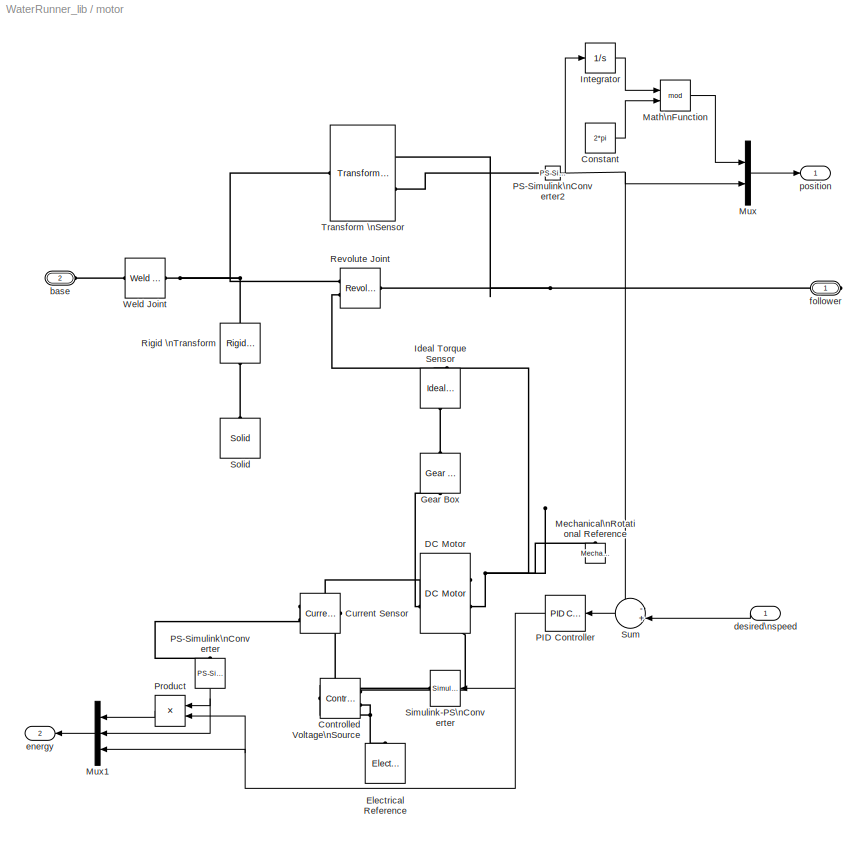
BLOCK [SubSystem] motor
  FunctionWithSeparateData = off
  MaskHideContents = off
  MinAlgLoopOccurrences = off
  Opaque = off
  Ports = [1, 2, 0, 0, 0, 1, 1]
  PropExecContextOutsideSubsystem = off
  RTWSystemCode = Auto
  RequestExecContextInheritance = off
  SID = 284
BLOCK [Constant] motor/Constant
  SID = 526
  Value = 2*pi
BLOCK [Reference] motor/Controlled Voltage\nSource  REF=fl_lib/Electrical/Electrical Sources/Controlled Voltage\nSource
  ClassName = controlled_voltage
  ComponentPath = foundation.electrical.sources.controlled_voltage
  ComponentVariantNames = controlled_voltage
  ComponentVariants = foundation.electrical.sources.controlled_voltage
  LocalVarDescs = |i|v
  LocalVarLogging = [0 0]
  LocalVarNames = |i|v
  Ports = [0, 0, 0, 0, 0, 1, 2]
  SID = 539
  SchemaVersion = 1
  SourceBlock = fl_lib/Electrical/Electrical Sources/Controlled Voltage\nSource
  SourceFile = foundation.electrical.sources.controlled_voltage
  SourceType = Controlled Voltage\nSource
  i_Log = off
  v_Log = off
BLOCK [Reference] motor/Current Sensor  REF=fl_lib/Electrical/Electrical Sensors/Current Sensor
  ClassName = current
  ComponentPath = foundation.electrical.sensors.current
  ComponentVariantNames = current
  ComponentVariants = foundation.electrical.sensors.current
  LocalVarDescs = |i1|v1
  LocalVarLogging = [0 0]
  LocalVarNames = |i1|v1
  Ports = [0, 0, 0, 0, 0, 1, 2]
  SID = 557
  SchemaVersion = 1
  SourceBlock = fl_lib/Electrical/Electrical Sensors/Current Sensor
  SourceFile = foundation.electrical.sensors.current
  SourceType = Current Sensor
  i1_Log = off
  v1_Log = off
BLOCK [Reference] motor/DC Motor  REF=elec_lib/Actuators & Drivers/Rotational Actuators/DC Motor
  ClassName = Simscape variant
  ComponentPath = elec.actuators.rotational.dc_motor
  ComponentVariantNames = No thermal port, Show thermal port
  ComponentVariants = elec.actuators.rotational.dc_motor, elec.actuators.rotational.dc_motor_thermal
  J = 0.01
  J_unit = g*cm^2
  Ki = 6.876e-4
  Ki_unit = N*m/A
  Kv = 7.2e-5
  Kv_unit = V/rpm
  La = 1.2e-5
  La_unit = H
  LocalVarDescs = |Current (A)|Voltage (V)|Power (W)|Electrical losses (W)|Torque (Nm)|Angular speed (rad/s)
  LocalVarLogging = [0 0 0 0 0 0]
  LocalVarNames = |current|voltage|power|i2r|torque|speed
  P_rated = 0.08
  P_rated_unit = W
  Ports = [0, 0, 0, 0, 0, 2, 2]
  Ra = 3.9
  Ra_unit = Ohm
  SID = 531
  SchemaVersion = 1
  SourceBlock = elec_lib/Actuators & Drivers/Rotational Actuators/DC Motor
  SourceFile = elec.actuators.rotational.dc_motor
  SourceType = DC Motor
  T_stall = 0.001064
  T_stall_unit = N*m
  Tmeas = 25
  Tmeas_unit = C
  V_i_noload = 1.5
  V_i_noload_unit = V
  V_rated = 6
  V_rated_unit = V
  alpha = 0.00393
  alpha_unit = 1/K
  current_Log = off
  emf_or_torque = 1
  emf_or_torque_unit = 1
  i2r_Log = off
  i_noload = 0
  i_noload_unit = A
  initial_temperature = 25
  initial_temperature_unit = C
  lam = 0
  lam_param = 1
  lam_param_unit = 1
  lam_unit = N*m/(rad/s)
  parameterization = 2
  parameterization_unit = 1
  power_Log = off
  speed0 = 0
  speed0_unit = rpm
  speed_Log = off
  thermal_mass = 100
  thermal_mass_unit = J/K
  torque_Log = off
  voltage_Log = off
  w_max = 22350
  w_max_unit = rpm
  w_rated = 1.5e+4
  w_rated_unit = rpm
BLOCK [Reference] motor/Electrical Reference  REF=fl_lib/Electrical/Electrical Elements/Electrical Reference
  ClassName = reference
  ComponentPath = foundation.electrical.elements.reference
  ComponentVariantNames = reference
  ComponentVariants = foundation.electrical.elements.reference
  LocalVarDescs = |i
  LocalVarLogging = 0
  LocalVarNames = |i
  Ports = [0, 0, 0, 0, 0, 1]
  SID = 540
  SchemaVersion = 1
  SourceBlock = fl_lib/Electrical/Electrical Elements/Electrical Reference
  SourceFile = foundation.electrical.elements.reference
  SourceType = Electrical Reference
  i_Log = off
BLOCK [Reference] motor/Gear Box  REF=fl_lib/Mechanical/Mechanisms/Gear Box
  ClassName = gear_box
  ComponentPath = foundation.mechanical.mechanisms.gear_box
  ComponentVariantNames = gear_box
  ComponentVariants = foundation.mechanical.mechanisms.gear_box
  LocalVarDescs = |t_in|t_out
  LocalVarLogging = [0 0]
  LocalVarNames = |t_in|t_out
  Ports = [0, 0, 0, 0, 0, 1, 1]
  SID = 603
  SchemaVersion = 1
  SourceBlock = fl_lib/Mechanical/Mechanisms/Gear Box
  SourceFile = foundation.mechanical.mechanisms.gear_box
  SourceType = Gear Box
  ratio = 298
  ratio_unit = 1
  t_in_Log = off
  t_out_Log = off
BLOCK [Reference] motor/Ideal Torque Sensor  REF=fl_lib/Mechanical/Mechanical Sensors/Ideal Torque Sensor
  ClassName = torque
  ComponentPath = foundation.mechanical.sensors.torque
  ComponentVariantNames = torque
  ComponentVariants = foundation.mechanical.sensors.torque
  LocalVarDescs = |w|t
  LocalVarLogging = [0 0]
  LocalVarNames = |w|t
  Ports = [0, 0, 0, 0, 0, 1, 2]
  SID = 534
  SchemaVersion = 1
  SourceBlock = fl_lib/Mechanical/Mechanical Sensors/Ideal Torque Sensor
  SourceFile = foundation.mechanical.sensors.torque
  SourceType = Ideal Torque Sensor
  t_Log = off
  w_Log = off
BLOCK [Integrator] motor/Integrator
  Ports = [1, 1]
  SID = 524
BLOCK [Math] motor/Math\nFunction
  Operator = mod
  Ports = [2, 1]
  SID = 525
BLOCK [Reference] motor/Mechanical\nRotational Reference  REF=fl_lib/Mechanical/Rotational Elements/Mechanical\nRotational Reference
  ClassName = reference
  ComponentPath = foundation.mechanical.rotational.reference
  ComponentVariantNames = reference
  ComponentVariants = foundation.mechanical.rotational.reference
  LocalVarDescs = |t
  LocalVarLogging = 0
  LocalVarNames = |t
  Ports = [0, 0, 0, 0, 0, 1]
  SID = 536
  SchemaVersion = 1
  SourceBlock = fl_lib/Mechanical/Rotational Elements/Mechanical\nRotational Reference
  SourceFile = foundation.mechanical.rotational.reference
  SourceType = Mechanical\nRotational Reference
  t_Log = off
BLOCK [Mux] motor/Mux
  DisplayOption = bar
  Inputs = 2
  Ports = [2, 1]
  SID = 517
BLOCK [Mux] motor/Mux1
  DisplayOption = bar
  Inputs = 3
  Ports = [3, 1]
  SID = 563
BLOCK [Reference] motor/PID Controller  REF=simulink/Continuous/PID Controller
  AntiWindupMode = clamping
  Controller = PID
  D = -4.19629321440508e-07
  DOutDataTypeStr = Inherit: Inherit via internal rule
  DOutMax = []
  DOutMin = []
  DParamDataTypeStr = Inherit: Inherit via internal rule
  DParamMax = []
  DParamMin = []
  ExternalReset = none
  FilterContinuousStateAttributes = ''
  FilterMethod = Trapezoidal
  FilterOutDataTypeStr = Inherit: Inherit via internal rule
  FilterOutMax = []
  FilterOutMin = []
  FilterRTWStateStorageClass = Auto
  FilterStateMustResolveToSignalObject = off
  Form = Parallel
  I = 6.58911071099274e-05
  IOutDataTypeStr = Inherit: Inherit via internal rule
  IOutMax = []
  IOutMin = []
  IParamDataTypeStr = Inherit: Inherit via internal rule
  IParamMax = []
  IParamMin = []
  IgnoreLimit = off
  InitialConditionForFilter = 0
  InitialConditionForIntegrator = 0
  InitialConditionSource = internal
  IntegratorContinuousStateAttributes = ''
  IntegratorMethod = Trapezoidal
  IntegratorOutDataTypeStr = Inherit: Inherit via internal rule
  IntegratorOutMax = []
  IntegratorOutMin = []
  IntegratorRTWStateStorageClass = Auto
  IntegratorStateMustResolveToSignalObject = off
  Kb = 1
  KbOutDataTypeStr = Inherit: Inherit via internal rule
  KbOutMax = []
  KbOutMin = []
  KbParamDataTypeStr = Inherit: Inherit via internal rule
  KbParamMax = []
  KbParamMin = []
  Kt = 1
  KtOutDataTypeStr = Inherit: Inherit via internal rule
  KtOutMax = []
  KtOutMin = []
  KtParamDataTypeStr = Inherit: Inherit via internal rule
  KtParamMax = []
  KtParamMin = []
  LimitOutput = on
  LinearizeAsGain = off
  LockScale = off
  LowerSaturationLimit = -10
  N = 141.411286717587
  NOutDataTypeStr = Inherit: Inherit via internal rule
  NOutMax = []
  NOutMin = []
  NParamDataTypeStr = Inherit: Inherit via internal rule
  NParamMax = []
  NParamMin = []
  P = 7.53683777073434e-05
  POutDataTypeStr = Inherit: Inherit via internal rule
  POutMax = []
  POutMin = []
  PParamDataTypeStr = Inherit: Inherit via internal rule
  PParamMax = []
  PParamMin = []
  Ports = [1, 1]
  RndMeth = Floor
  SID = 528
  SampleTime = 1e-3
  SaturateOnIntegerOverflow = off
  SaturationOutDataTypeStr = Inherit: Same as input
  SaturationOutMax = []
  SaturationOutMin = []
  SourceBlock = simulink/Continuous/PID Controller
  SourceType = PID 1dof
  SumAccumDataTypeStr = Inherit: Inherit via internal rule
  SumDAccumDataTypeStr = Inherit: Inherit via internal rule
  SumDOutDataTypeStr = Inherit: Inherit via internal rule
  SumDOutMax = []
  SumDOutMin = []
  SumI1AccumDataTypeStr = Inherit: Inherit via internal rule
  SumI1OutDataTypeStr = Inherit: Inherit via internal rule
  SumI1OutMax = []
  SumI1OutMin = []
  SumI2AccumDataTypeStr = Inherit: Inherit via internal rule
  SumI2OutDataTypeStr = Inherit: Inherit via internal rule
  SumI2OutMax = []
  SumI2OutMin = []
  SumI3AccumDataTypeStr = Inherit: Inherit via internal rule
  SumI3OutDataTypeStr = Inherit: Inherit via internal rule
  SumI3OutMax = []
  SumI3OutMin = []
  SumOutDataTypeStr = Inherit: Inherit via internal rule
  SumOutMax = []
  SumOutMin = []
  TimeDomain = Discrete-time
  TrackingMode = off
  UpperSaturationLimit = 10
  ZeroCross = on
BLOCK [Reference] motor/PS-Simulink\nConverter  REF=nesl_utility/PS-Simulink\nConverter
  AffineConversion = off
  LeftPortType = input
  PhysicalDomain = network_engine_domain
  Ports = [0, 1, 0, 0, 0, 1]
  RightPortType = output
  SID = 559
  SourceBlock = nesl_utility/PS-Simulink\nConverter
  SourceType = PS-Simulink\nConverter
  SubClassName = ps_output
  Unit = 1
BLOCK [Reference] motor/PS-Simulink\nConverter2  REF=nesl_utility/PS-Simulink\nConverter
  AffineConversion = off
  LeftPortType = input
  PhysicalDomain = network_engine_domain
  Ports = [0, 1, 0, 0, 0, 1]
  RightPortType = output
  SID = 513
  SourceBlock = nesl_utility/PS-Simulink\nConverter
  SourceType = PS-Simulink\nConverter
  SubClassName = ps_output
  Unit = 1
BLOCK [Product] motor/Product
  InputSameDT = off
  OutDataTypeStr = Inherit: Inherit via internal rule
  Ports = [2, 1]
  SID = 560
  SaturateOnIntegerOverflow = off
BLOCK [Reference] motor/Revolute Joint  REF=sm_lib/Joints/Revolute Joint
  ActuationMode = TorqueForceActuation
  BlockFunction = simmechanics.library.joints.revolute_joint
  ClassName = RevoluteJoint
  ConstraintWrenchDir = FollowerOnBase
  ConstraintWrenchFrame = BaseFrame
  DampingCoefficient = 0
  DampingCoefficientUnits = N*m/(deg/s)
  EquilibriumPosition = 0
  EquilibriumPositionUnits = deg
  Ports = [0, 0, 0, 0, 0, 2, 1]
  PositionTargetPriority = High
  PositionTargetSpecify = on
  PositionTargetValue = 0
  PositionTargetValueUnits = deg
  SID = 489
  SenseAcceleration = off
  SenseConstraintForceX = off
  SenseConstraintForceY = off
  SenseConstraintForceZ = off
  SenseConstraintTorqueX = off
  SenseConstraintTorqueY = off
  SenseConstraintTorqueZ = off
  SensePosition = off
  SenseTorqueForce = off
  SenseVelocity = off
  SourceBlock = sm_lib/Joints/Revolute Joint
  SourceType = Revolute Joint
  SpringStiffness = 0
  SpringStiffnessUnits = N*m/deg
  VelocityTargetPriority = High
  VelocityTargetSpecify = on
  VelocityTargetValue = 0
  VelocityTargetValueUnits = deg/s
BLOCK [Reference] motor/Rigid \nTransform  REF=sm_lib/Frames and\n Transforms/Rigid \nTransform
  BaseAlignAxisA = +Y
  BaseAlignAxisB = +Z
  BlockFunction = simmechanics.library.frames_transforms.rigid_transform
  ClassName = RigidTransform
  FollAlignAxisA = +X
  FollAlignAxisB = +Y
  Ports = [0, 0, 0, 0, 0, 1, 1]
  RotationAngle = 0
  RotationAngleUnits = deg
  RotationArbitraryAxis = [0 0 1]
  RotationMethod = None
  RotationStandardAxis = +Z
  SID = 500
  SourceBlock = sm_lib/Frames and\n Transforms/Rigid \nTransform
  SourceType = Unknown
  TranslationCartesianOffset = [0 0 motor_length/2]
  TranslationLengthUnit = m
  TranslationMethod = Cartesian
  TranslationROffset = 0
  TranslationROffsetUnits = m
  TranslationStandardAxis = +Z
  TranslationStandardOffset = 0
  TranslationThetaOffset = 0
  TranslationThetaOffsetUnits = deg
  TranslationZOffset = 0
  TranslationZOffsetUnits = m
BLOCK [Reference] motor/Simulink-PS\nConverter  REF=nesl_utility/Simulink-PS\nConverter
  AffineConversion = off
  InputFilterTimeConstant = .001
  InputFiltering = off
  LeftPortType = input
  PhysicalDomain = network_engine_domain
  Ports = [1, 0, 0, 0, 0, 0, 1]
  RightPortType = output
  SID = 537
  SimscapeFilterOrder = 1
  SourceBlock = nesl_utility/Simulink-PS\nConverter
  SourceType = Simulink-PS\nConverter
  SubClassName = ps_input
  UdotUserProvided = []
  Unit = 1
BLOCK [Reference] motor/Solid  REF=sm_lib/Body Elements/Solid
  BlockFunction = simmechanics.library.body_elements.solid
  BrickDimensionUnits = m
  BrickDimensions = [1 1 1]
  CenterOfMass = [0 0 0]
  CenterOfMassUnits = m
  ClassName = Solid
  CylinderLength = motor_length
  CylinderLengthUnits = m
  CylinderRadius = motor_radius
  CylinderRadiusUnits = m
  Density = motor_density
  DensityBased = on
  DensityUnits = kg/(m^3)
  EllipsoidRadii = [1 1 1]
  EllipsoidRadiiUnits = m
  ExtGeomFileUnits = m
  ExtrusionCrossSection = [1 1; -1 1; -1 -1; 1 -1]
  ExtrusionCrossSectionUnits = m
  ExtrusionLength = 1
  ExtrusionLengthUnits = m
  GeometryShape = Cylinder
  GraphicAmbientColor = [0.15 0.15 0.15 1.0]
  GraphicDiffuseColor = [0.5 0.5 0.5]
  GraphicEmissiveColor = [0.0 0.0 0.0 1.0]
  GraphicOpacity = 1.0
  GraphicShininess = 75
  GraphicSpecularColor = [0.5 0.5 0.5 1.0]
  GraphicType = FromGeometry
  GraphicVisPropType = SimpleVisualProperties
  InertiaType = CalculateFromGeometry
  MarkerShape = Sphere
  MarkerSize = 10
  MarkerSizeUnits = m
  Mass = 1
  MassUnits = kg
  MomentsOfInertia = [1 1 1]
  MomentsOfInertiaUnits = kg*m^2
  PolygonNumSides = 3
  PolygonOuterRadius = 1
  PolygonOuterRadiusUnits = m
  Ports = [0, 0, 0, 0, 0, 0, 1]
  ProductsOfInertia = [0 0 0]
  ProductsOfInertiaUnits = kg*m^2
  RectangleSize = [1 1]
  RectangleSizeUnits = m
  SID = 501
  SourceBlock = sm_lib/Body Elements/Solid
  SourceType = Unknown
  SphereRadius = 1
  SphereRadiusUnits = m
BLOCK [Sum] motor/Sum
  IconShape = round
  InputSameDT = off
  Inputs = -+|
  OutDataTypeStr = Inherit: Inherit via internal rule
  Ports = [2, 1]
  SID = 529
  SaturateOnIntegerOverflow = off
BLOCK [Reference] motor/Transform \nSensor  REF=sm_lib/Frames and\n Transforms/Transform \nSensor
  BlockFunction = simmechanics.library.frames_transforms.transform_sensor
  ClassName = TransformSensor
  MeasurementFrame = World
  Ports = [0, 0, 0, 0, 0, 1, 2]
  SID = 509
  SenseAlpha1 = off
  SenseAlpha2 = off
  SenseAlpha3 = off
  SenseAlphaX = off
  SenseAlphaY = off
  SenseAlphaZ = off
  SenseAngle = off
  SenseAngle1 = off
  SenseAngle2 = off
  SenseAngle3 = off
  SenseAxis = off
  SenseAzim = off
  SenseAzimDDot = off
  SenseAzimDot = off
  SenseDist = off
  SenseDistDDot = off
  SenseDistDot = off
  SenseInc = off
  SenseIncDDot = off
  SenseIncDot = off
  SenseOmega1 = off
  SenseOmega2 = off
  SenseOmega3 = off
  SenseOmegaX = off
  SenseOmegaY = off
  SenseOmegaZ = on
  SenseQ = off
  SenseQDDot = off
  SenseQDot = off
  SenseR = off
  SenseRDDot = off
  SenseRDot = off
  SenseRad = off
  SenseRadDDot = off
  SenseRadDot = off
  SenseX = off
  SenseXDDot = off
  SenseXDot = off
  SenseY = off
  SenseYDDot = off
  SenseYDot = off
  SenseZ = off
  SenseZDDot = off
  SenseZDot = off
  SourceBlock = sm_lib/Frames and\n Transforms/Transform \nSensor
  SourceType = Transform Sensor
BLOCK [Reference] motor/Weld Joint  REF=sm_lib/Joints/Weld Joint
  BlockFunction = simmechanics.library.joints.weld_joint
  ClassName = WeldJoint
  ConstraintWrenchDir = FollowerOnBase
  ConstraintWrenchFrame = BaseFrame
  Ports = [0, 0, 0, 0, 0, 1, 1]
  SID = 496
  SenseConstraintForceX = off
  SenseConstraintForceY = off
  SenseConstraintForceZ = off
  SenseConstraintTorqueX = off
  SenseConstraintTorqueY = off
  SenseConstraintTorqueZ = off
  SourceBlock = sm_lib/Joints/Weld Joint
  SourceType = Weld Joint
BLOCK [PMIOPort] motor/base
  Port = 2
  SID = 316
  Side = Left
BLOCK [Inport] motor/desired\nspeed
  IconDisplay = Port number
  SID = 568
BLOCK [Outport] motor/energy
  IconDisplay = Port number
  Port = 2
  SID = 562
BLOCK [PMIOPort] motor/follower
  Port = 1
  SID = 315
  Side = Right
BLOCK [Outport] motor/position
  IconDisplay = Port number
  SID = 514
BLOCK [SubSystem] servo
  FunctionWithSeparateData = off
  MaskHideContents = off
  MinAlgLoopOccurrences = off
  Opaque = off
  Ports = [0, 0, 0, 0, 0, 1, 1]
  PropExecContextOutsideSubsystem = off
  RTWSystemCode = Auto
  RequestExecContextInheritance = off
  SID = 22
BLOCK [Abs] servo/Abs
  SID = 23
  SaturateOnIntegerOverflow = off
BLOCK [Constant] servo/Constant1
  SID = 24
  Value = 0
BLOCK [Constant] servo/Constant2
  SID = 25
  Value = 0
BLOCK [Constant] servo/Constant3
  SID = 285
  Value = tail_angle + pi/2
BLOCK [Integrator] servo/Integrator
  Ports = [1, 1]
  SID = 26
BLOCK [Reference] servo/Joint Actuator1  REF=mblibv1/Sensors & \nActuators/Joint Actuator
  AccelerationUnits = m/s^2
  ActiveIO = off
  ActuationStyle = Motion
  AngleUnits = rad
  ArcAccelerationUnits = rad/s^2
  ArcVelocityUnits = rad/s
  ClassName = JointActuator
  CoordPositionUnits = m
  DialogClass = MechanicalActuatorBlock
  ForceUnits = N
  PhysicalDomain = Mechanical
  PortType = blob
  Ports = [1, 0, 0, 0, 0, 0, 1]
  Primitive = R1
  ReferenceFrame = Absolute (World)
  SID = 27
  SourceBlock = mblibv1/Sensors & \nActuators/Joint Actuator
  SourceType = Joint Actuator
  TorqueUnits = N*m
  UpdateFromCAD = off
  VelocityUnits = m/s
  Width = 3
BLOCK [Reference] servo/Joint Sensor  REF=mblibv1/Sensors & \nActuators/Joint Sensor
  Acceleration = off
  AccelerationUnits = m/s^2
  ActiveIO = off
  Angle = off
  AngleUnits = deg
  ArcAcceleration = off
  ArcAccelerationUnits = deg/s^2
  ArcVelocity = off
  ArcVelocityUnits = deg/s
  ClassName = JointSensor
  CoordPosition = on
  CoordPositionUnits = m
  DialogClass = MechanicalSensorBlock
  Force = off
  ForceUnits = N
  Muxed = off
  OutputVector = [1]
  PhysicalDomain = Mechanical
  PortType = blob
  Ports = [0, 1, 0, 0, 0, 1]
  Pose = off
  Primitive = R1
  Quaternion = on
  QuaternionDDT = off
  QuaternionDT = off
  QuaternionUnits = off
  ReactionForce = off
  ReactionForceUnits = N
  ReactionMoment = on
  ReactionMomentUnits = N*m
  ReactionReferenceFrame = Absolute (World)
  ReactionSensedSide = Base
  ReferenceFrame = Absolute (World)
  SID = 28
  SourceBlock = mblibv1/Sensors & \nActuators/Joint Sensor
  SourceType = Joint Sensor
  Torque = off
  TorqueUnits = N*m
  UpdateFromCAD = off
  Velocity = off
  VelocityUnits = m/s
  Width = 3
BLOCK [Mux] servo/Mux
  DisplayOption = bar
  Inputs = 3
  Ports = [3, 1]
  SID = 29
BLOCK [Product] servo/Product
  InputSameDT = off
  OutDataTypeStr = Inherit: Inherit via internal rule
  Ports = [2, 1]
  SID = 30
  SaturateOnIntegerOverflow = off
BLOCK [Reference] servo/Revolute  REF=mblibv1/Joints/Revolute
  ClassName = Joint
  CutJoint = off
  DialogClass = JointBlock
  LConnTagsString = __newl0|SA1
  MarkAsCut = off
  NumSAPorts = 2
  Ports = [0, 0, 0, 0, 0, 2, 2]
  PrimitiveProps = R1$World$[0 0 1]$revolute
  Primitives = prismatic
  R1Axis = [0 0 1]
  RConnTagsString = __newr0|SA1
  SID = 32
  SourceBlock = mblibv1/Joints/Revolute
  SourceType = Revolute
  UpdateFromCAD = off
BLOCK [Selector] servo/Selector
  IndexOptions = Index vector (dialog)
  Indices = [ 3]
  InputPortWidth = 3
  OutputSizes = 1
  Ports = [1, 1]
  SID = 34
BLOCK [ToWorkspace] servo/To Workspace
  MaxDataPoints = inf
  Ports = [1]
  SID = 94
  SampleTime = -1
  SaveFormat = Structure With Time
  VariableName = work
BLOCK [PMIOPort] servo/base
  Port = 2
  SID = 41
  Side = Left
BLOCK [PMIOPort] servo/follower
  Port = 1
  SID = 40
  Side = Right
BLOCK [SubSystem] servo/motor_body
  FunctionWithSeparateData = off
  MaskHideContents = off
  MinAlgLoopOccurrences = off
  Opaque = off
  Ports = [0, 0, 0, 0, 0, 1, 1]
  PropExecContextOutsideSubsystem = off
  RTWSystemCode = Auto
  RequestExecContextInheritance = off
  SID = 35
BLOCK [Reference] servo/motor_body/Body1  REF=mblibv1/Bodies/Body
  AttachedToCS = CG
  BodyColor = [0.87059 0.4902 0]
  BodyColorSelMode = COLORPALETTE
  CG = Left$CG$[0 0 0]$CS1$CS1$m$[0 0 0]$Euler X-Y-Z$deg$WORLD$false$none
  CGPos = [0 0 0]
  CGRot = [0 0 0]
  CS0Pos = []
  CS0Rot = []
  CS10Pos = []
  CS10Rot = []
  CS11Pos = []
  CS11Rot = []
  CS12Pos = []
  CS12Rot = []
  CS13Pos = []
  CS13Rot = []
  CS14Pos = []
  CS14Rot = []
  CS15Pos = []
  CS15Rot = []
  CS16Pos = []
  CS16Rot = []
  CS17Pos = []
  CS17Rot = []
  CS18Pos = []
  CS18Rot = []
  CS19Pos = []
  CS19Rot = []
  CS1Pos = [0 0 0]
  CS1Rot = [0 0 0]
  CS20Pos = []
  CS20Rot = []
  CS2Pos = [0 0 0]
  CS2Rot = [0 0 0]
  CS3Pos = []
  CS3Rot = []
  CS4Pos = []
  CS4Rot = []
  CS5Pos = []
  CS5Rot = []
  CS6Pos = []
  CS6Rot = []
  CS7Pos = []
  CS7Rot = []
  CS8Pos = []
  CS8Rot = []
  CS9Pos = []
  CS9Rot = []
  ClassName = Body
  Density = 1
  DensityUnits = kg/m^3
  DensityUse = false
  DialogClass = MechanicalBodyBlock
  GraphicsMode = CONVHULL
  Inertia = motor_inertia
  InertiaUnits = kg*m^2
  LConnTagsString = CS1
  Mass = motor_mass
  MassUnits = kg
  Ports = [0, 0, 0, 0, 0, 1, 1]
  RConnTagsString = CS2
  SID = 36
  Shape = Cylinder
  ShapeDims = [1 1]
  ShapeUnits = m
  ShapeUse = false
  SourceBlock = mblibv1/Bodies/Body
  SourceType = Body
  UpdateFromCAD = off
  WorkingFrames = Left$CS1$[0 0 0]$Adjoining$Adjoining$m$[0 0 0]$Euler X-Y-Z$deg$WORLD$true$none#Right$CS2$[0 0 0]$CS1$CS1$m$[0 0 0]$Euler X-Y-Z$deg$WORLD$true$none
BLOCK [Reference] servo/motor_body/Weld1  REF=mblibv1/Joints/Weld
  ClassName = Joint
  CutJoint = off
  DialogClass = JointBlock
  LConnTagsString = __newl0
  MarkAsCut = off
  NumSAPorts = 0
  Ports = [0, 0, 0, 0, 0, 1, 1]
  PrimitiveProps = W$World$[0 0 0]$weld
  Primitives = weld
  RConnTagsString = __newr0
  SID = 37
  SourceBlock = mblibv1/Joints/Weld
  SourceType = Weld
  UpdateFromCAD = off
  WAxis = [0 0 0]
BLOCK [PMIOPort] servo/motor_body/to_frame
  Port = 2
  SID = 39
  Side = Left
BLOCK [PMIOPort] servo/motor_body/to_rev
  Port = 1
  SID = 38
  Side = Right
BLOCK [SubSystem] water_model
  FunctionWithSeparateData = off
  MaskHideContents = off
  MinAlgLoopOccurrences = off
  Opaque = off
  Ports = [4, 1]
  PropExecContextOutsideSubsystem = off
  RTWSystemCode = Auto
  RequestExecContextInheritance = off
  SID = 928
BLOCK [Outport] water_model/F_w
  IconDisplay = Port number
  SID = 1061
BLOCK [Gain] water_model/Gain1
  OutDataTypeStr = Inherit: Inherit via internal rule
  ParamDataTypeStr = Inherit: Inherit via internal rule
  SID = 933
  SaturateOnIntegerOverflow = off
BLOCK [Gain] water_model/Gain2
  Gain = Cd*density
  OutDataTypeStr = Inherit: Inherit via internal rule
  ParamDataTypeStr = Inherit: Inherit via internal rule
  SID = 934
  SaturateOnIntegerOverflow = off
BLOCK [Product] water_model/Product1
  InputSameDT = off
  OutDataTypeStr = Inherit: Inherit via internal rule
  Ports = [2, 1]
  SID = 935
  SaturateOnIntegerOverflow = off
BLOCK [Product] water_model/Product2
  InputSameDT = off
  OutDataTypeStr = Inherit: Inherit via internal rule
  Ports = [2, 1]
  SID = 936
  SaturateOnIntegerOverflow = off
BLOCK [Scope] water_model/Scope
  DataFormat = StructureWithTime
  Floating = off
  NumInputPorts = 1
  Ports = [1]
  SID = 937
  SampleTime = 0
  SaveName = ScopeData4
  ShowLegends = off
BLOCK [SubSystem] water_model/Subsystem
  FunctionWithSeparateData = off
  MaskHideContents = off
  MinAlgLoopOccurrences = off
  Opaque = off
  Ports = [2, 1]
  PropExecContextOutsideSubsystem = off
  RTWSystemCode = Auto
  RequestExecContextInheritance = off
  SID = 938
BLOCK [Constant] water_model/Subsystem/Constant
  SID = 941
  Value = y_w
BLOCK [Fcn] water_model/Subsystem/Fcn
  Expr = sin(u(1))
  SID = 942
BLOCK [Fcn] water_model/Subsystem/Fcn1
  Expr = u(1)/u(2)
  SID = 943
BLOCK [Mux] water_model/Subsystem/Mux
  DisplayOption = bar
  Inputs = 2
  Ports = [2, 1]
  SID = 944
BLOCK [Sum] water_model/Subsystem/Sum
  IconShape = round
  InputSameDT = off
  Inputs = +-|
  OutDataTypeStr = Inherit: Inherit via internal rule
  Ports = [2, 1]
  SID = 945
  SaturateOnIntegerOverflow = off
BLOCK [Inport] water_model/Subsystem/angle
  IconDisplay = Port number
  Port = 2
  SID = 940
BLOCK [Saturate] water_model/Subsystem/sat
  InputPortMap = u0
  LowerLimit = -R
  Ports = [1, 1]
  SID = 946
  UpperLimit = R
BLOCK [Outport] water_model/Subsystem/up_b
  IconDisplay = Port number
  SID = 947
BLOCK [Inport] water_model/Subsystem/y_c
  IconDisplay = Port number
  SID = 939
BLOCK [SubSystem] water_model/Subsystem1
  FunctionWithSeparateData = off
  MaskHideContents = off
  MinAlgLoopOccurrences = off
  Opaque = off
  Ports = [2, 2]
  PropExecContextOutsideSubsystem = off
  RTWSystemCode = Auto
  RequestExecContextInheritance = off
  SID = 948
BLOCK [Constant] water_model/Subsystem1/Constant
  SID = 951
  Value = y_w
BLOCK [Fcn] water_model/Subsystem1/Fcn
  Expr = sin(u(1))
  SID = 952
BLOCK [Gain] water_model/Subsystem1/Gain
  Gain = -2*(-g)
  OutDataTypeStr = Inherit: Inherit via internal rule
  ParamDataTypeStr = Inherit: Inherit via internal rule
  SID = 953
  SaturateOnIntegerOverflow = off
BLOCK [Gain] water_model/Subsystem1/Gain1
  Gain = 2*(-g)
  OutDataTypeStr = Inherit: Inherit via internal rule
  ParamDataTypeStr = Inherit: Inherit via internal rule
  SID = 954
  SaturateOnIntegerOverflow = off
BLOCK [Sum] water_model/Subsystem1/Sum
  IconShape = round
  InputSameDT = off
  Inputs = -+|
  OutDataTypeStr = Inherit: Inherit via internal rule
  Ports = [2, 1]
  SID = 955
  SaturateOnIntegerOverflow = off
BLOCK [Outport] water_model/Subsystem1/a
  IconDisplay = Port number
  SID = 956
BLOCK [Inport] water_model/Subsystem1/angle
  IconDisplay = Port number
  Port = 2
  SID = 950
BLOCK [Outport] water_model/Subsystem1/b
  IconDisplay = Port number
  Port = 2
  SID = 957
BLOCK [Inport] water_model/Subsystem1/y_c
  IconDisplay = Port number
  SID = 949
BLOCK [SubSystem] water_model/Subsystem2
  FunctionWithSeparateData = off
  MaskHideContents = off
  MinAlgLoopOccurrences = off
  Opaque = off
  Ports = [3, 2]
  PropExecContextOutsideSubsystem = off
  RTWSystemCode = Auto
  RequestExecContextInheritance = off
  SID = 958
BLOCK [Constant] water_model/Subsystem2/Constant
  SID = 962
  Value = 100*eps
BLOCK [Product] water_model/Subsystem2/Product
  InputSameDT = off
  OutDataTypeStr = Inherit: Inherit via internal rule
  Ports = [2, 1]
  SID = 963
  SaturateOnIntegerOverflow = off
BLOCK [Product] water_model/Subsystem2/Product1
  InputSameDT = off
  OutDataTypeStr = Inherit: Inherit via internal rule
  Ports = [2, 1]
  SID = 964
  SaturateOnIntegerOverflow = off
BLOCK [Outport] water_model/Subsystem2/S+
  IconDisplay = Port number
  SID = 971
BLOCK [Outport] water_model/Subsystem2/S-
  IconDisplay = Port number
  Port = 2
  SID = 972
BLOCK [Signum] water_model/Subsystem2/Sign
  SID = 965
BLOCK [Signum] water_model/Subsystem2/Sign1
  SID = 966
BLOCK [Sum] water_model/Subsystem2/Sum2
  IconShape = round
  InputSameDT = off
  Inputs = |++
  OutDataTypeStr = Inherit: Inherit via internal rule
  Ports = [2, 1]
  SID = 967
  SaturateOnIntegerOverflow = off
BLOCK [Sum] water_model/Subsystem2/Sum3
  IconShape = round
  InputSameDT = off
  Inputs = |++
  OutDataTypeStr = Inherit: Inherit via internal rule
  Ports = [2, 1]
  SID = 968
  SaturateOnIntegerOverflow = off
BLOCK [Sum] water_model/Subsystem2/Sum4
  IconShape = round
  InputSameDT = off
  Inputs = -+|
  OutDataTypeStr = Inherit: Inherit via internal rule
  Ports = [2, 1]
  SID = 969
  SaturateOnIntegerOverflow = off
BLOCK [Sum] water_model/Subsystem2/Sum5
  IconShape = round
  InputSameDT = off
  Inputs = ++|
  OutDataTypeStr = Inherit: Inherit via internal rule
  Ports = [2, 1]
  SID = 970
  SaturateOnIntegerOverflow = off
BLOCK [Inport] water_model/Subsystem2/dtheta
  IconDisplay = Port number
  SID = 959
BLOCK [Inport] water_model/Subsystem2/r0
  IconDisplay = Port number
  Port = 3
  SID = 961
BLOCK [Inport] water_model/Subsystem2/v
  IconDisplay = Port number
  Port = 2
  SID = 960
BLOCK [SubSystem] water_model/Subsystem3
  FunctionWithSeparateData = off
  MaskHideContents = off
  MinAlgLoopOccurrences = off
  Opaque = off
  Ports = [2, 1]
  PropExecContextOutsideSubsystem = off
  RTWSystemCode = Auto
  RequestExecContextInheritance = off
  SID = 973
BLOCK [Fcn] water_model/Subsystem3/Fcn
  Expr = -u(1)/(u(2))
  SID = 976
BLOCK [Mux] water_model/Subsystem3/Mux
  DisplayOption = bar
  Inputs = 2
  Ports = [2, 1]
  SID = 977
BLOCK [Inport] water_model/Subsystem3/dtheta
  IconDisplay = Port number
  Port = 2
  SID = 975
BLOCK [Outport] water_model/Subsystem3/mid_b
  IconDisplay = Port number
  SID = 979
BLOCK [Saturate] water_model/Subsystem3/sat1
  InputPortMap = u0
  LowerLimit = -R
  Ports = [1, 1]
  SID = 978
  UpperLimit = R
BLOCK [Inport] water_model/Subsystem3/vel
  IconDisplay = Port number
  SID = 974
BLOCK [Sum] water_model/Sum
  IconShape = round
  InputSameDT = off
  Inputs = ++|
  OutDataTypeStr = Inherit: Inherit via internal rule
  Ports = [2, 1]
  SID = 980
  SaturateOnIntegerOverflow = off
BLOCK [Sum] water_model/Sum1
  IconShape = round
  InputSameDT = off
  Inputs = |++
  OutDataTypeStr = Inherit: Inherit via internal rule
  Ports = [2, 1]
  SID = 981
  SaturateOnIntegerOverflow = off
BLOCK [Sum] water_model/Sum2
  IconShape = round
  InputSameDT = off
  Inputs = -+|
  OutDataTypeStr = Inherit: Inherit via internal rule
  Ports = [2, 1]
  SID = 982
  SaturateOnIntegerOverflow = off
BLOCK [Inport] water_model/ang_vel
  IconDisplay = Port number
  Port = 4
  SID = 932
BLOCK [Inport] water_model/angle
  IconDisplay = Port number
  Port = 2
  SID = 930
BLOCK [SubSystem] water_model/damper_force1
  FunctionWithSeparateData = off
  MaskHideContents = off
  MinAlgLoopOccurrences = off
  Opaque = off
  Ports = [3, 1]
  PropExecContextOutsideSubsystem = off
  RTWSystemCode = Auto
  RequestExecContextInheritance = off
  SID = 983
BLOCK [Constant] water_model/damper_force1/Constant
  SID = 987
  Value = R
BLOCK [Constant] water_model/damper_force1/Constant1
  SID = 988
  Value = pi/2
BLOCK [Gain] water_model/damper_force1/Gain
  Gain = 4
  OutDataTypeStr = Inherit: Inherit via internal rule
  ParamDataTypeStr = Inherit: Inherit via internal rule
  SID = 989
  SaturateOnIntegerOverflow = off
BLOCK [Gain] water_model/damper_force1/Gain1
  Gain = 1/8
  OutDataTypeStr = Inherit: Inherit via internal rule
  ParamDataTypeStr = Inherit: Inherit via internal rule
  SID = 990
  SaturateOnIntegerOverflow = off
BLOCK [Gain] water_model/damper_force1/Gain2
  Gain = 2/3
  OutDataTypeStr = Inherit: Inherit via internal rule
  ParamDataTypeStr = Inherit: Inherit via internal rule
  SID = 991
  SaturateOnIntegerOverflow = off
BLOCK [Gain] water_model/damper_force1/Gain3
  Gain = 1/4
  OutDataTypeStr = Inherit: Inherit via internal rule
  ParamDataTypeStr = Inherit: Inherit via internal rule
  SID = 992
  SaturateOnIntegerOverflow = off
BLOCK [Outport] water_model/damper_force1/Int_b
  IconDisplay = Port number
  SID = 1011
BLOCK [Mux] water_model/damper_force1/Mux
  DisplayOption = bar
  Inputs = 2
  Ports = [2, 1]
  SID = 993
BLOCK [Product] water_model/damper_force1/Product
  InputSameDT = off
  OutDataTypeStr = Inherit: Inherit via internal rule
  Ports = [2, 1]
  SID = 994
  SaturateOnIntegerOverflow = off
BLOCK [Product] water_model/damper_force1/Product1
  InputSameDT = off
  OutDataTypeStr = Inherit: Inherit via internal rule
  Ports = [2, 1]
  SID = 995
  SaturateOnIntegerOverflow = off
BLOCK [Product] water_model/damper_force1/Product2
  InputSameDT = off
  OutDataTypeStr = Inherit: Inherit via internal rule
  Ports = [2, 1]
  SID = 996
  SaturateOnIntegerOverflow = off
BLOCK [Product] water_model/damper_force1/Product3
  InputSameDT = off
  OutDataTypeStr = Inherit: Inherit via internal rule
  Ports = [2, 1]
  SID = 997
  SaturateOnIntegerOverflow = off
BLOCK [Product] water_model/damper_force1/Product4
  InputSameDT = off
  Inputs = 3
  OutDataTypeStr = Inherit: Inherit via internal rule
  Ports = [3, 1]
  SID = 998
  SaturateOnIntegerOverflow = off
BLOCK [Product] water_model/damper_force1/Product5
  InputSameDT = off
  OutDataTypeStr = Inherit: Inherit via internal rule
  Ports = [2, 1]
  SID = 999
  SaturateOnIntegerOverflow = off
BLOCK [Sum] water_model/damper_force1/Sum
  IconShape = round
  InputSameDT = off
  Inputs = ++|
  OutDataTypeStr = Inherit: Inherit via internal rule
  Ports = [2, 1]
  SID = 1000
  SaturateOnIntegerOverflow = off
BLOCK [Sum] water_model/damper_force1/Sum1
  IconShape = round
  InputSameDT = off
  Inputs = ++|
  OutDataTypeStr = Inherit: Inherit via internal rule
  Ports = [2, 1]
  SID = 1001
  SaturateOnIntegerOverflow = off
BLOCK [Sum] water_model/damper_force1/Sum2
  IconShape = round
  InputSameDT = off
  Inputs = ++|
  OutDataTypeStr = Inherit: Inherit via internal rule
  Ports = [2, 1]
  SID = 1002
  SaturateOnIntegerOverflow = off
BLOCK [Sum] water_model/damper_force1/Sum3
  IconShape = round
  InputSameDT = off
  Inputs = ++|
  OutDataTypeStr = Inherit: Inherit via internal rule
  Ports = [2, 1]
  SID = 1003
  SaturateOnIntegerOverflow = off
BLOCK [Sum] water_model/damper_force1/Sum4
  IconShape = round
  InputSameDT = off
  Inputs = -+|
  OutDataTypeStr = Inherit: Inherit via internal rule
  Ports = [2, 1]
  SID = 1004
  SaturateOnIntegerOverflow = off
BLOCK [Inport] water_model/damper_force1/a
  IconDisplay = Port number
  Port = 2
  SID = 985
BLOCK [Inport] water_model/damper_force1/b
  IconDisplay = Port number
  Port = 3
  SID = 986
BLOCK [Fcn] water_model/damper_force1/cube
  Expr = u(1)^3
  SID = 1005
BLOCK [Fcn] water_model/damper_force1/l(r)
  Expr = sqrt(u(2)^2-u(1)^2)
  SID = 1006
BLOCK [Fcn] water_model/damper_force1/phi(r)
  Expr = asin(u(1)/u(2))
  SID = 1007
BLOCK [Fcn] water_model/damper_force1/sq
  Expr = u(1)^2
  SID = 1008
BLOCK [Fcn] water_model/damper_force1/sq1
  Expr = u(1)^2
  SID = 1009
BLOCK [Fcn] water_model/damper_force1/sq2
  Expr = u(1)^2
  SID = 1010
BLOCK [Inport] water_model/damper_force1/up_b
  IconDisplay = Port number
  SID = 984
BLOCK [SubSystem] water_model/damper_force2
  FunctionWithSeparateData = off
  MaskHideContents = off
  MinAlgLoopOccurrences = off
  Opaque = off
  Ports = [3, 1]
  PropExecContextOutsideSubsystem = off
  RTWSystemCode = Auto
  RequestExecContextInheritance = off
  SID = 1012
BLOCK [Constant] water_model/damper_force2/Constant
  SID = 1016
  Value = R
BLOCK [Constant] water_model/damper_force2/Constant1
  SID = 1017
  Value = pi/2
BLOCK [Gain] water_model/damper_force2/Gain
  Gain = 4
  OutDataTypeStr = Inherit: Inherit via internal rule
  ParamDataTypeStr = Inherit: Inherit via internal rule
  SID = 1018
  SaturateOnIntegerOverflow = off
BLOCK [Gain] water_model/damper_force2/Gain1
  Gain = 1/8
  OutDataTypeStr = Inherit: Inherit via internal rule
  ParamDataTypeStr = Inherit: Inherit via internal rule
  SID = 1019
  SaturateOnIntegerOverflow = off
BLOCK [Gain] water_model/damper_force2/Gain2
  Gain = 2/3
  OutDataTypeStr = Inherit: Inherit via internal rule
  ParamDataTypeStr = Inherit: Inherit via internal rule
  SID = 1020
  SaturateOnIntegerOverflow = off
BLOCK [Gain] water_model/damper_force2/Gain3
  Gain = 1/4
  OutDataTypeStr = Inherit: Inherit via internal rule
  ParamDataTypeStr = Inherit: Inherit via internal rule
  SID = 1021
  SaturateOnIntegerOverflow = off
BLOCK [Outport] water_model/damper_force2/Int_b
  IconDisplay = Port number
  SID = 1040
BLOCK [Mux] water_model/damper_force2/Mux
  DisplayOption = bar
  Inputs = 2
  Ports = [2, 1]
  SID = 1022
BLOCK [Product] water_model/damper_force2/Product
  InputSameDT = off
  OutDataTypeStr = Inherit: Inherit via internal rule
  Ports = [2, 1]
  SID = 1023
  SaturateOnIntegerOverflow = off
BLOCK [Product] water_model/damper_force2/Product1
  InputSameDT = off
  OutDataTypeStr = Inherit: Inherit via internal rule
  Ports = [2, 1]
  SID = 1024
  SaturateOnIntegerOverflow = off
BLOCK [Product] water_model/damper_force2/Product2
  InputSameDT = off
  OutDataTypeStr = Inherit: Inherit via internal rule
  Ports = [2, 1]
  SID = 1025
  SaturateOnIntegerOverflow = off
BLOCK [Product] water_model/damper_force2/Product3
  InputSameDT = off
  OutDataTypeStr = Inherit: Inherit via internal rule
  Ports = [2, 1]
  SID = 1026
  SaturateOnIntegerOverflow = off
BLOCK [Product] water_model/damper_force2/Product4
  InputSameDT = off
  Inputs = 3
  OutDataTypeStr = Inherit: Inherit via internal rule
  Ports = [3, 1]
  SID = 1027
  SaturateOnIntegerOverflow = off
BLOCK [Product] water_model/damper_force2/Product5
  InputSameDT = off
  OutDataTypeStr = Inherit: Inherit via internal rule
  Ports = [2, 1]
  SID = 1028
  SaturateOnIntegerOverflow = off
BLOCK [Sum] water_model/damper_force2/Sum
  IconShape = round
  InputSameDT = off
  Inputs = ++|
  OutDataTypeStr = Inherit: Inherit via internal rule
  Ports = [2, 1]
  SID = 1029
  SaturateOnIntegerOverflow = off
BLOCK [Sum] water_model/damper_force2/Sum1
  IconShape = round
  InputSameDT = off
  Inputs = ++|
  OutDataTypeStr = Inherit: Inherit via internal rule
  Ports = [2, 1]
  SID = 1030
  SaturateOnIntegerOverflow = off
BLOCK [Sum] water_model/damper_force2/Sum2
  IconShape = round
  InputSameDT = off
  Inputs = ++|
  OutDataTypeStr = Inherit: Inherit via internal rule
  Ports = [2, 1]
  SID = 1031
  SaturateOnIntegerOverflow = off
BLOCK [Sum] water_model/damper_force2/Sum3
  IconShape = round
  InputSameDT = off
  Inputs = ++|
  OutDataTypeStr = Inherit: Inherit via internal rule
  Ports = [2, 1]
  SID = 1032
  SaturateOnIntegerOverflow = off
BLOCK [Sum] water_model/damper_force2/Sum4
  IconShape = round
  InputSameDT = off
  Inputs = -+|
  OutDataTypeStr = Inherit: Inherit via internal rule
  Ports = [2, 1]
  SID = 1033
  SaturateOnIntegerOverflow = off
BLOCK [Inport] water_model/damper_force2/a
  IconDisplay = Port number
  Port = 2
  SID = 1014
BLOCK [Inport] water_model/damper_force2/b
  IconDisplay = Port number
  Port = 3
  SID = 1015
BLOCK [Fcn] water_model/damper_force2/cube
  Expr = u(1)^3
  SID = 1034
BLOCK [Fcn] water_model/damper_force2/l(r)
  Expr = sqrt(u(2)^2-u(1)^2)
  SID = 1035
BLOCK [Fcn] water_model/damper_force2/phi(r)
  Expr = asin(u(1)/u(2))
  SID = 1036
BLOCK [Fcn] water_model/damper_force2/sq
  Expr = u(1)^2
  SID = 1037
BLOCK [Fcn] water_model/damper_force2/sq1
  Expr = u(1)^2
  SID = 1038
BLOCK [Fcn] water_model/damper_force2/sq2
  Expr = u(1)^2
  SID = 1039
BLOCK [Inport] water_model/damper_force2/up_b
  IconDisplay = Port number
  SID = 1013
BLOCK [SubSystem] water_model/spring_force
  FunctionWithSeparateData = off
  MaskHideContents = off
  MinAlgLoopOccurrences = off
  Opaque = off
  Ports = [3, 1]
  PropExecContextOutsideSubsystem = off
  RTWSystemCode = Auto
  RequestExecContextInheritance = off
  SID = 1041
BLOCK [Constant] water_model/spring_force/Constant
  SID = 1045
  Value = R
BLOCK [Gain] water_model/spring_force/Gain
  Gain = -1/3
  OutDataTypeStr = Inherit: Inherit via internal rule
  ParamDataTypeStr = Inherit: Inherit via internal rule
  SID = 1046
  SaturateOnIntegerOverflow = off
BLOCK [Gain] water_model/spring_force/Gain1
  Gain = 1/2
  OutDataTypeStr = Inherit: Inherit via internal rule
  ParamDataTypeStr = Inherit: Inherit via internal rule
  SID = 1047
  SaturateOnIntegerOverflow = off
BLOCK [Gain] water_model/spring_force/Gain2
  Gain = pi/4
  OutDataTypeStr = Inherit: Inherit via internal rule
  ParamDataTypeStr = Inherit: Inherit via internal rule
  SID = 1048
  SaturateOnIntegerOverflow = off
BLOCK [Gain] water_model/spring_force/Gain3
  Gain = 1/2
  OutDataTypeStr = Inherit: Inherit via internal rule
  ParamDataTypeStr = Inherit: Inherit via internal rule
  SID = 1049
  SaturateOnIntegerOverflow = off
BLOCK [Outport] water_model/spring_force/Int_k
  IconDisplay = Port number
  SID = 1060
BLOCK [Mux] water_model/spring_force/Mux
  DisplayOption = bar
  Inputs = 2
  Ports = [2, 1]
  SID = 1050
BLOCK [Product] water_model/spring_force/Product
  InputSameDT = off
  OutDataTypeStr = Inherit: Inherit via internal rule
  Ports = [2, 1]
  SID = 1051
  SaturateOnIntegerOverflow = off
BLOCK [Product] water_model/spring_force/Product1
  InputSameDT = off
  Inputs = 3
  OutDataTypeStr = Inherit: Inherit via internal rule
  Ports = [3, 1]
  SID = 1052
  SaturateOnIntegerOverflow = off
BLOCK [Product] water_model/spring_force/Product2
  InputSameDT = off
  OutDataTypeStr = Inherit: Inherit via internal rule
  Ports = [2, 1]
  SID = 1053
  SaturateOnIntegerOverflow = off
BLOCK [Product] water_model/spring_force/Product3
  InputSameDT = off
  OutDataTypeStr = Inherit: Inherit via internal rule
  Ports = [2, 1]
  SID = 1054
  SaturateOnIntegerOverflow = off
BLOCK [Sum] water_model/spring_force/Sum
  IconShape = round
  InputSameDT = off
  Inputs = |++++|
  OutDataTypeStr = Inherit: Inherit via internal rule
  Ports = [4, 1]
  SID = 1055
  SaturateOnIntegerOverflow = off
BLOCK [Inport] water_model/spring_force/a
  IconDisplay = Port number
  Port = 2
  SID = 1043
BLOCK [Inport] water_model/spring_force/b
  IconDisplay = Port number
  Port = 3
  SID = 1044
BLOCK [Fcn] water_model/spring_force/cube
  Expr = u(1)^3
  SID = 1056
BLOCK [Fcn] water_model/spring_force/l(r)
  Expr = sqrt(u(2)^2-u(1)^2)
  SID = 1057
BLOCK [Fcn] water_model/spring_force/phi(r)
  Expr = asin(u(1)/u(2))
  SID = 1058
BLOCK [Fcn] water_model/spring_force/sq
  Expr = u(1)^2
  SID = 1059
BLOCK [Inport] water_model/spring_force/up_b
  IconDisplay = Port number
  SID = 1042
BLOCK [Inport] water_model/v_n
  IconDisplay = Port number
  Port = 3
  SID = 931
BLOCK [Inport] water_model/y_c
  IconDisplay = Port number
  SID = 929
ANNOTATION (root): this library is not in use, use WaterRunner_lib2
ANNOTATION Ground\nContact: Ground Interaction Model
ANNOTATION Ground\nContact/Ground Friction Model: Normal Ground Stiction Model
ANNOTATION Ground\nContact/Ground Friction Model: Transverse Ground Friction Model
ANNOTATION Ground\nContact/Ground Friction Model/Friction Switch: Static/Kinetic Friction Switch
ANNOTATION Ground\nContact/Ground Friction Model/t-Axis Kinetic Friction Model: Footpoint Determiner
ANNOTATION Ground\nContact/Ground Friction Model/t-Axis Kinetic Friction Model: Kinetic Friction Model
ANNOTATION Ground\nContact/Ground Friction Model/t-Axis Kinetic Friction Model: Siding Limit Detector
ANNOTATION Ground\nContact/Ground Friction Model/t-Axis Static Friction Model: Static Friction Model
ANNOTATION Ground\nContact/Ground Friction Model/t-Axis Static Friction Model: Stiction Limit Detector
ANNOTATION Ground\nContact/Ground Friction Model/t-Axis Static Friction Model: Zero multiplication prevents\nhorizontal friction model from\noscillating between static and kinetic\nfriction when the vertical force is zero but \nthe ground level is not yet reached \nin the upward motion
LINE Ground Foot/PS-Simulink\nConverter:1 -> Ground Foot/Out1:1
LINE Ground\nContact/Constant:1 -> Ground\nContact/Sum:1
LINE Ground\nContact/F1:1 -> Ground\nContact/SP1:1
LINE Ground\nContact/F2:1 -> Ground\nContact/SP2:1
LINE Ground\nContact/F3:1 -> Ground\nContact/SP3:1
LINE Ground\nContact/Ground Friction Model/Data Type Conversion:1 -> Ground\nContact/Ground Friction Model/Stiction!:1
LINE Ground\nContact/Ground Friction Model/Friction Switch/Memory:1 -> Ground\nContact/Ground Friction Model/Friction Switch/Stiction:1
LINE Ground\nContact/Ground Friction Model/Friction Switch/S-R\nFlip-Flop:1 -> Ground\nContact/Ground Friction Model/Friction Switch/Memory:1
LINE Ground\nContact/Ground Friction Model/Friction Switch/S-R\nFlip-Flop:2 -> Ground\nContact/Ground Friction Model/Friction Switch/Terminator:1
LINE Ground\nContact/Ground Friction Model/Friction Switch/Slide!:1 -> Ground\nContact/Ground Friction Model/Friction Switch/S-R\nFlip-Flop:2
LINE Ground\nContact/Ground Friction Model/Friction Switch/Stick!:1 -> Ground\nContact/Ground Friction Model/Friction Switch/S-R\nFlip-Flop:1
NET Ground\nContact/Ground Friction Model/Friction Switch:1 -> Ground\nContact/Ground Friction Model/Data Type Conversion:1, Ground\nContact/Ground Friction Model/Logical\nOperator:1, Ground\nContact/Ground Friction Model/t-Axis Static Friction Model:enable
LINE Ground\nContact/Ground Friction Model/Gain3:1 -> Ground\nContact/Ground Friction Model/Mux1:1
LINE Ground\nContact/Ground Friction Model/Gain4:1 -> Ground\nContact/Ground Friction Model/Mux1:2
LINE Ground\nContact/Ground Friction Model/Logical\nOperator:1 -> Ground\nContact/Ground Friction Model/t-Axis Kinetic Friction Model:enable
LINE Ground\nContact/Ground Friction Model/Mux1:1 -> Ground\nContact/Ground Friction Model/normal-Axis Ground Force:1
LINE Ground\nContact/Ground Friction Model/Sum1:1 -> Ground\nContact/Ground Friction Model/FxFriction [N]:1
LINE Ground\nContact/Ground Friction Model/Sum2:1 -> Ground\nContact/Ground Friction Model/FzFriction [N]:1
LINE Ground\nContact/Ground Friction Model/delta normal [m]:1 -> Ground\nContact/Ground Friction Model/Gain3:1
NET Ground\nContact/Ground Friction Model/normal-Axis Ground Force:1 -> Ground\nContact/Ground Friction Model/Fn_Ground[N]:1, Ground\nContact/Ground Friction Model/t-Axis Kinetic Friction Model:5, Ground\nContact/Ground Friction Model/t-Axis Static Friction Model:1
LINE Ground\nContact/Ground Friction Model/t-Axis Kinetic Friction Model/Constant1:1 -> Ground\nContact/Ground Friction Model/t-Axis Kinetic Friction Model/Sum1:2
LINE Ground\nContact/Ground Friction Model/t-Axis Kinetic Friction Model/Constant:1 -> Ground\nContact/Ground Friction Model/t-Axis Kinetic Friction Model/Sum:1
LINE Ground\nContact/Ground Friction Model/t-Axis Kinetic Friction Model/Demux:1 -> Ground\nContact/Ground Friction Model/t-Axis Kinetic Friction Model/Fx_Slide [N]:1
LINE Ground\nContact/Ground Friction Model/t-Axis Kinetic Friction Model/Demux:2 -> Ground\nContact/Ground Friction Model/t-Axis Kinetic Friction Model/Fz_Slide [N]:1
LINE Ground\nContact/Ground Friction Model/t-Axis Kinetic Friction Model/Divide:1 -> Ground\nContact/Ground Friction Model/t-Axis Kinetic Friction Model/reverse:1
LINE Ground\nContact/Ground Friction Model/t-Axis Kinetic Friction Model/F_Normal [N]:1 -> Ground\nContact/Ground Friction Model/t-Axis Kinetic Friction Model/sliding friction\ncoefficient:1
LINE Ground\nContact/Ground Friction Model/t-Axis Kinetic Friction Model/FixPt\nRelational\nOperator:1 -> Ground\nContact/Ground Friction Model/t-Axis Kinetic Friction Model/Stiction!:1
LINE Ground\nContact/Ground Friction Model/t-Axis Kinetic Friction Model/Magnitude/Sqrt:1 -> Ground\nContact/Ground Friction Model/t-Axis Kinetic Friction Model/Magnitude/Magnitude:1
LINE Ground\nContact/Ground Friction Model/t-Axis Kinetic Friction Model/Magnitude/Square:1 -> Ground\nContact/Ground Friction Model/t-Axis Kinetic Friction Model/Magnitude/Sum of Elements:1
LINE Ground\nContact/Ground Friction Model/t-Axis Kinetic Friction Model/Magnitude/Sum of Elements:1 -> Ground\nContact/Ground Friction Model/t-Axis Kinetic Friction Model/Magnitude/Sqrt:1
LINE Ground\nContact/Ground Friction Model/t-Axis Kinetic Friction Model/Magnitude/Vector:1 -> Ground\nContact/Ground Friction Model/t-Axis Kinetic Friction Model/Magnitude/Square:1
NET Ground\nContact/Ground Friction Model/t-Axis Kinetic Friction Model/Magnitude:1 -> Ground\nContact/Ground Friction Model/t-Axis Kinetic Friction Model/Sum1:1, Ground\nContact/Ground Friction Model/t-Axis Kinetic Friction Model/Sum:2
LINE Ground\nContact/Ground Friction Model/t-Axis Kinetic Friction Model/Memory:1 -> Ground\nContact/Ground Friction Model/t-Axis Kinetic Friction Model/FixPt\nRelational\nOperator:2
NET Ground\nContact/Ground Friction Model/t-Axis Kinetic Friction Model/Mux:1 -> Ground\nContact/Ground Friction Model/t-Axis Kinetic Friction Model/Divide:1, Ground\nContact/Ground Friction Model/t-Axis Kinetic Friction Model/Magnitude:1
NET Ground\nContact/Ground Friction Model/t-Axis Kinetic Friction Model/Negative:1 -> Ground\nContact/Ground Friction Model/t-Axis Kinetic Friction Model/FixPt\nRelational\nOperator:1, Ground\nContact/Ground Friction Model/t-Axis Kinetic Friction Model/Memory:1
LINE Ground\nContact/Ground Friction Model/t-Axis Kinetic Friction Model/Product:1 -> Ground\nContact/Ground Friction Model/t-Axis Kinetic Friction Model/Demux:1
LINE Ground\nContact/Ground Friction Model/t-Axis Kinetic Friction Model/Sum1:1 -> Ground\nContact/Ground Friction Model/t-Axis Kinetic Friction Model/Divide:2
LINE Ground\nContact/Ground Friction Model/t-Axis Kinetic Friction Model/Sum:1 -> Ground\nContact/Ground Friction Model/t-Axis Kinetic Friction Model/Negative:1
LINE Ground\nContact/Ground Friction Model/t-Axis Kinetic Friction Model/pos_x [m]:1 -> Ground\nContact/Ground Friction Model/t-Axis Kinetic Friction Model/posFP_x [m]:1
LINE Ground\nContact/Ground Friction Model/t-Axis Kinetic Friction Model/pos_z [m]:1 -> Ground\nContact/Ground Friction Model/t-Axis Kinetic Friction Model/posFP_z [m]:1
LINE Ground\nContact/Ground Friction Model/t-Axis Kinetic Friction Model/reverse:1 -> Ground\nContact/Ground Friction Model/t-Axis Kinetic Friction Model/Product:1
LINE Ground\nContact/Ground Friction Model/t-Axis Kinetic Friction Model/sliding friction\ncoefficient:1 -> Ground\nContact/Ground Friction Model/t-Axis Kinetic Friction Model/Product:2
LINE Ground\nContact/Ground Friction Model/t-Axis Kinetic Friction Model/vel_x [m//s]:1 -> Ground\nContact/Ground Friction Model/t-Axis Kinetic Friction Model/Mux:1
LINE Ground\nContact/Ground Friction Model/t-Axis Kinetic Friction Model/vel_z [m//s]:1 -> Ground\nContact/Ground Friction Model/t-Axis Kinetic Friction Model/Mux:2
LINE Ground\nContact/Ground Friction Model/t-Axis Kinetic Friction Model:1 -> Ground\nContact/Ground Friction Model/t-Axis Static Friction Model:6
LINE Ground\nContact/Ground Friction Model/t-Axis Kinetic Friction Model:2 -> Ground\nContact/Ground Friction Model/t-Axis Static Friction Model:7
LINE Ground\nContact/Ground Friction Model/t-Axis Kinetic Friction Model:3 -> Ground\nContact/Ground Friction Model/Friction Switch:2
LINE Ground\nContact/Ground Friction Model/t-Axis Kinetic Friction Model:4 -> Ground\nContact/Ground Friction Model/Sum1:2
LINE Ground\nContact/Ground Friction Model/t-Axis Kinetic Friction Model:5 -> Ground\nContact/Ground Friction Model/Sum2:2
LINE Ground\nContact/Ground Friction Model/t-Axis Static Friction Model/Abs:1 -> Ground\nContact/Ground Friction Model/t-Axis Static Friction Model/Sum3:2
NET Ground\nContact/Ground Friction Model/t-Axis Static Friction Model/Check Vertical Friction1:1 -> Ground\nContact/Ground Friction Model/t-Axis Static Friction Model/Fz_Stick [N]:1, Ground\nContact/Ground Friction Model/t-Axis Static Friction Model/Mux:1
NET Ground\nContact/Ground Friction Model/t-Axis Static Friction Model/Check Vertical Friction:1 -> Ground\nContact/Ground Friction Model/t-Axis Static Friction Model/Fx_Stick [N]:1, Ground\nContact/Ground Friction Model/t-Axis Static Friction Model/Mux:2
NET Ground\nContact/Ground Friction Model/t-Axis Static Friction Model/F_Normal [N]:1 -> Ground\nContact/Ground Friction Model/t-Axis Static Friction Model/Positive1:1, Ground\nContact/Ground Friction Model/t-Axis Static Friction Model/Positive2:1, Ground\nContact/Ground Friction Model/t-Axis Static Friction Model/stiction\nlimit\nforce:1
LINE Ground\nContact/Ground Friction Model/t-Axis Static Friction Model/FixPt\nRelational\nOperator:1 -> Ground\nContact/Ground Friction Model/t-Axis Static Friction Model/Sliding!:1
LINE Ground\nContact/Ground Friction Model/t-Axis Static Friction Model/Gain1:1 -> Ground\nContact/Ground Friction Model/t-Axis Static Friction Model/Mux2:1
LINE Ground\nContact/Ground Friction Model/t-Axis Static Friction Model/Gain2:1 -> Ground\nContact/Ground Friction Model/t-Axis Static Friction Model/Mux2:2
LINE Ground\nContact/Ground Friction Model/t-Axis Static Friction Model/Gain3:1 -> Ground\nContact/Ground Friction Model/t-Axis Static Friction Model/Mux1:1
LINE Ground\nContact/Ground Friction Model/t-Axis Static Friction Model/Gain4:1 -> Ground\nContact/Ground Friction Model/t-Axis Static Friction Model/Mux1:2
LINE Ground\nContact/Ground Friction Model/t-Axis Static Friction Model/Magnitude/Sqrt:1 -> Ground\nContact/Ground Friction Model/t-Axis Static Friction Model/Magnitude/Magnitude:1
LINE Ground\nContact/Ground Friction Model/t-Axis Static Friction Model/Magnitude/Square:1 -> Ground\nContact/Ground Friction Model/t-Axis Static Friction Model/Magnitude/Sum of Elements:1
LINE Ground\nContact/Ground Friction Model/t-Axis Static Friction Model/Magnitude/Sum of Elements:1 -> Ground\nContact/Ground Friction Model/t-Axis Static Friction Model/Magnitude/Sqrt:1
LINE Ground\nContact/Ground Friction Model/t-Axis Static Friction Model/Magnitude/Vector:1 -> Ground\nContact/Ground Friction Model/t-Axis Static Friction Model/Magnitude/Square:1
LINE Ground\nContact/Ground Friction Model/t-Axis Static Friction Model/Magnitude:1 -> Ground\nContact/Ground Friction Model/t-Axis Static Friction Model/Sum3:1
LINE Ground\nContact/Ground Friction Model/t-Axis Static Friction Model/Memory:1 -> Ground\nContact/Ground Friction Model/t-Axis Static Friction Model/FixPt\nRelational\nOperator:2
LINE Ground\nContact/Ground Friction Model/t-Axis Static Friction Model/Mux1:1 -> Ground\nContact/Ground Friction Model/t-Axis Static Friction Model/X-Axis Stiction Force:1
LINE Ground\nContact/Ground Friction Model/t-Axis Static Friction Model/Mux2:1 -> Ground\nContact/Ground Friction Model/t-Axis Static Friction Model/Z-Axis Stiction Force:1
LINE Ground\nContact/Ground Friction Model/t-Axis Static Friction Model/Mux:1 -> Ground\nContact/Ground Friction Model/t-Axis Static Friction Model/Magnitude:1
LINE Ground\nContact/Ground Friction Model/t-Axis Static Friction Model/Positive1:1 -> Ground\nContact/Ground Friction Model/t-Axis Static Friction Model/Check Vertical Friction:2
LINE Ground\nContact/Ground Friction Model/t-Axis Static Friction Model/Positive2:1 -> Ground\nContact/Ground Friction Model/t-Axis Static Friction Model/Check Vertical Friction1:2
NET Ground\nContact/Ground Friction Model/t-Axis Static Friction Model/Positive:1 -> Ground\nContact/Ground Friction Model/t-Axis Static Friction Model/FixPt\nRelational\nOperator:1, Ground\nContact/Ground Friction Model/t-Axis Static Friction Model/Memory:1
LINE Ground\nContact/Ground Friction Model/t-Axis Static Friction Model/Sum1:1 -> Ground\nContact/Ground Friction Model/t-Axis Static Friction Model/Gain1:1
LINE Ground\nContact/Ground Friction Model/t-Axis Static Friction Model/Sum2:1 -> Ground\nContact/Ground Friction Model/t-Axis Static Friction Model/Gain3:1
LINE Ground\nContact/Ground Friction Model/t-Axis Static Friction Model/Sum3:1 -> Ground\nContact/Ground Friction Model/t-Axis Static Friction Model/Positive:1
LINE Ground\nContact/Ground Friction Model/t-Axis Static Friction Model/X-Axis Stiction Force:1 -> Ground\nContact/Ground Friction Model/t-Axis Static Friction Model/Check Vertical Friction:1
LINE Ground\nContact/Ground Friction Model/t-Axis Static Friction Model/Z-Axis Stiction Force:1 -> Ground\nContact/Ground Friction Model/t-Axis Static Friction Model/Check Vertical Friction1:1
LINE Ground\nContact/Ground Friction Model/t-Axis Static Friction Model/posFP_x [m]:1 -> Ground\nContact/Ground Friction Model/t-Axis Static Friction Model/Sum2:1
LINE Ground\nContact/Ground Friction Model/t-Axis Static Friction Model/posFP_z [m]:1 -> Ground\nContact/Ground Friction Model/t-Axis Static Friction Model/Sum1:1
LINE Ground\nContact/Ground Friction Model/t-Axis Static Friction Model/pos_x [m]:1 -> Ground\nContact/Ground Friction Model/t-Axis Static Friction Model/Sum2:2
LINE Ground\nContact/Ground Friction Model/t-Axis Static Friction Model/pos_z [m]:1 -> Ground\nContact/Ground Friction Model/t-Axis Static Friction Model/Sum1:2
LINE Ground\nContact/Ground Friction Model/t-Axis Static Friction Model/stiction\nlimit\nforce:1 -> Ground\nContact/Ground Friction Model/t-Axis Static Friction Model/Abs:1
LINE Ground\nContact/Ground Friction Model/t-Axis Static Friction Model/vel_x [m//s]:1 -> Ground\nContact/Ground Friction Model/t-Axis Static Friction Model/Gain4:1
LINE Ground\nContact/Ground Friction Model/t-Axis Static Friction Model/vel_z [m//s]:1 -> Ground\nContact/Ground Friction Model/t-Axis Static Friction Model/Gain2:1
LINE Ground\nContact/Ground Friction Model/t-Axis Static Friction Model:1 -> Ground\nContact/Ground Friction Model/Sum2:1
LINE Ground\nContact/Ground Friction Model/t-Axis Static Friction Model:2 -> Ground\nContact/Ground Friction Model/Sum1:1
LINE Ground\nContact/Ground Friction Model/t-Axis Static Friction Model:3 -> Ground\nContact/Ground Friction Model/Friction Switch:1
LINE Ground\nContact/Ground Friction Model/vnormal [m//s]:1 -> Ground\nContact/Ground Friction Model/Gain4:1
NET Ground\nContact/Ground Friction Model/vx [m//s]:1 -> Ground\nContact/Ground Friction Model/t-Axis Kinetic Friction Model:2, Ground\nContact/Ground Friction Model/t-Axis Static Friction Model:3
NET Ground\nContact/Ground Friction Model/vz [m//s]:1 -> Ground\nContact/Ground Friction Model/t-Axis Kinetic Friction Model:4, Ground\nContact/Ground Friction Model/t-Axis Static Friction Model:5
NET Ground\nContact/Ground Friction Model/x [m]:1 -> Ground\nContact/Ground Friction Model/t-Axis Kinetic Friction Model:1, Ground\nContact/Ground Friction Model/t-Axis Static Friction Model:2
NET Ground\nContact/Ground Friction Model/z [m]:1 -> Ground\nContact/Ground Friction Model/t-Axis Kinetic Friction Model:3, Ground\nContact/Ground Friction Model/t-Axis Static Friction Model:4
NET Ground\nContact/Ground Friction Model:1 -> Ground\nContact/G1:1, Ground\nContact/Mux1:1
NET Ground\nContact/Ground Friction Model:2 -> Ground\nContact/G2:1, Ground\nContact/Mux1:2
NET Ground\nContact/Ground Friction Model:3 -> Ground\nContact/G3:1, Ground\nContact/Mux1:3
LINE Ground\nContact/Ground Friction Model:4 -> Ground\nContact/Terminator:1
LINE Ground\nContact/Mux1:1 -> Ground\nContact/GRF:1
LINE Ground\nContact/PS1:1 -> Ground\nContact/Ground Friction Model:3
LINE Ground\nContact/PS2:1 -> Ground\nContact/Ground Friction Model:4
LINE Ground\nContact/PS3:1 -> Ground\nContact/Sum:2
LINE Ground\nContact/PS4:1 -> Ground\nContact/Ground Friction Model:2
LINE Ground\nContact/PS5:1 -> Ground\nContact/Ground Friction Model:5
LINE Ground\nContact/PS6:1 -> Ground\nContact/Ground Friction Model:6
NET Ground\nContact/Sum:1 -> Ground\nContact/Ground Friction Model:1, Ground\nContact/skin contact\nsensor:1
LINE Ground\nContact/skin contact\nsensor:1 -> Ground\nContact/Ground Friction Model:enable
NET Motor FR/Gain2:1 -> Motor FR/Reseting:1, Motor FR/Sum1:1
LINE Motor FR/PID Controller:1 -> Motor FR/Sum2:2
LINE Motor FR/Reseting/Constant:1 -> Motor FR/Reseting/Sum3:1
LINE Motor FR/Reseting/Gain1:1 -> Motor FR/Reseting/Sum3:2
LINE Motor FR/Reseting/Sum3:1 -> Motor FR/Reseting/voltage:1
LINE Motor FR/Reseting/speed:1 -> Motor FR/Reseting/Gain1:1
LINE Motor FR/Reseting:1 -> Motor FR/Sum2:1
LINE Motor FR/Saturation:1 -> Motor FR/Subsystem:1
LINE Motor FR/Subsystem/Ke:1 -> Motor FR/Subsystem/Sum2:2
LINE Motor FR/Subsystem/Kt:1 -> Motor FR/Subsystem/g:1
LINE Motor FR/Subsystem/Product:1 -> Motor FR/Subsystem/power:1
LINE Motor FR/Subsystem/Sum2:1 -> Motor FR/Subsystem/Transfer Fcn:1
LINE Motor FR/Subsystem/Transfer Fcn:1 -> Motor FR/Subsystem/Kt:1
LINE Motor FR/Subsystem/Va:1 -> Motor FR/Subsystem/Sum2:1
NET Motor FR/Subsystem/Vel:1 -> Motor FR/Subsystem/Product:2, Motor FR/Subsystem/g1:1
LINE Motor FR/Subsystem/g1:1 -> Motor FR/Subsystem/Ke:1
NET Motor FR/Subsystem/g:1 -> Motor FR/Subsystem/Product:1, Motor FR/Subsystem/Torque:1
LINE Motor FR/Subsystem:1 -> Motor FR/sps:1
LINE Motor FR/Subsystem:2 -> Motor FR/Torque:1
LINE Motor FR/Sum1:1 -> Motor FR/PID Controller:1
LINE Motor FR/Sum2:1 -> Motor FR/Saturation:1
LINE Motor FR/desired\n speed:1 -> Motor FR/Gain2:1
LINE Motor FR/p1:1 -> Motor FR/Scope2:1
NET Motor FR/p2:1 -> Motor FR/Scope2:2, Motor FR/Subsystem:2, Motor FR/Sum1:2
LINE Motor FR/p3:1 -> Motor FR/Scope2:3
LINE Motor_new/Gain2:1 -> Motor_new/Sum1:1
NET Motor_new/Gain3:1 -> Motor_new/Motor Dynamics:1, Motor_new/Scope:1
NET Motor_new/Motor Dynamics/Control Input:1 -> Motor_new/Motor Dynamics/Mux1:3, Motor_new/Motor Dynamics/Product:2, Motor_new/Motor Dynamics/Simulink-PS\nConverter:1
LINE Motor_new/Motor Dynamics/Mux1:1 -> Motor_new/Motor Dynamics/Energy:1
NET Motor_new/Motor Dynamics/PS-Simulink\nConverter:1 -> Motor_new/Motor Dynamics/Mux1:2, Motor_new/Motor Dynamics/Product:1
LINE Motor_new/Motor Dynamics/Product:1 -> Motor_new/Motor Dynamics/Mux1:1
LINE Motor_new/Motor Dynamics:1 -> Motor_new/energy:1
LINE Motor_new/Mux1:1 -> Motor_new/Sum1:2
LINE Motor_new/Sum1:1 -> Motor_new/Gain3:1
LINE Motor_new/desired\nspeed:1 -> Motor_new/Gain2:1
NET Motor_new/p1:1 -> Motor_new/Mux1:1, Motor_new/Scope2:1
NET Motor_new/p2:1 -> Motor_new/Mux1:2, Motor_new/Scope2:2
NET Motor_new/p3:1 -> Motor_new/Mux1:3, Motor_new/Scope2:3
NET PG3/Constant4:1 -> PG3/Sum3:1, PG3/phase lag switch:1
NET PG3/Integrator1:1 -> PG3/Mod 2pi2:1, PG3/Sum5:2
NET PG3/Mod 2pi2:1 -> PG3/Sum3:2, PG3/Sum5:1
LINE PG3/Mod 2pi5:1 -> PG3/Sum6:1
LINE PG3/Sum3:1 -> PG3/phase Switch:1
LINE PG3/Sum5:1 -> PG3/Sum6:2
LINE PG3/Sum6:1 -> PG3/my_filtering:1
LINE PG3/Sum7:1 -> PG3/Mod 2pi5:1
LINE PG3/con1:1 -> PG3/Integrator1:2
LINE PG3/frequency1:1 -> PG3/Integrator1:1
LINE PG3/my_filtering/Clock:1 -> PG3/my_filtering/Product:2
LINE PG3/my_filtering/Constant4:1 -> PG3/my_filtering/int_value:2
LINE PG3/my_filtering/Mux2:1 -> PG3/my_filtering/pos//vel//acc:1
LINE PG3/my_filtering/Product:1 -> PG3/my_filtering/Sum2:2
LINE PG3/my_filtering/Sum1:1 -> PG3/my_filtering/Mux2:1
NET PG3/my_filtering/Sum2:1 -> PG3/my_filtering/Transfer Fcn1:1, PG3/my_filtering/Transfer Fcn2:1
LINE PG3/my_filtering/Sum4:1 -> PG3/my_filtering/Mux2:2
NET PG3/my_filtering/Sum:1 -> PG3/my_filtering/Sum2:1, PG3/my_filtering/Transfer Fcn:1
LINE PG3/my_filtering/Transfer Fcn1:1 -> PG3/my_filtering/Sum4:2
LINE PG3/my_filtering/Transfer Fcn2:1 -> PG3/my_filtering/Mux2:3
LINE PG3/my_filtering/Transfer Fcn:1 -> PG3/my_filtering/Sum1:2
LINE PG3/my_filtering/con1:1 -> PG3/my_filtering/int_value:1
NET PG3/my_filtering/frequency1:1 -> PG3/my_filtering/Product:1, PG3/my_filtering/Sum4:1
NET PG3/my_filtering/int_value/In1:1 -> PG3/my_filtering/int_value/Mod 2pi2:1, PG3/my_filtering/int_value/Sum5:2
NET PG3/my_filtering/int_value/Mod 2pi2:1 -> PG3/my_filtering/int_value/Sum3:2, PG3/my_filtering/int_value/Sum5:1
LINE PG3/my_filtering/int_value/Mod 2pi5:1 -> PG3/my_filtering/int_value/Sum6:1
NET PG3/my_filtering/int_value/Sum3:1 -> PG3/my_filtering/int_value/phase Switch1:1, PG3/my_filtering/int_value/phase Switch:1
LINE PG3/my_filtering/int_value/Sum5:1 -> PG3/my_filtering/int_value/Sum6:2
LINE PG3/my_filtering/int_value/Sum6:1 -> PG3/my_filtering/int_value/pos:1
LINE PG3/my_filtering/int_value/Sum7:1 -> PG3/my_filtering/int_value/Mod 2pi5:1
NET PG3/my_filtering/int_value/lag:1 -> PG3/my_filtering/int_value/Sum3:1, PG3/my_filtering/int_value/phase lag switch:1
NET PG3/my_filtering/int_value/phase Switch/Mod 2pi4:1 -> PG3/my_filtering/int_value/phase Switch/Mod 2pi6:1, PG3/my_filtering/int_value/phase Switch/Mod 2pi7:1, PG3/my_filtering/int_value/phase Switch/Switch:2
LINE PG3/my_filtering/int_value/phase Switch/Mod 2pi6:1 -> PG3/my_filtering/int_value/phase Switch/Switch:3
LINE PG3/my_filtering/int_value/phase Switch/Mod 2pi7:1 -> PG3/my_filtering/int_value/phase Switch/Switch:1
LINE PG3/my_filtering/int_value/phase Switch/Switch:1 -> PG3/my_filtering/int_value/phase Switch/pos:1
LINE PG3/my_filtering/int_value/phase Switch/phase:1 -> PG3/my_filtering/int_value/phase Switch/Mod 2pi4:1
LINE PG3/my_filtering/int_value/phase Switch1/Constant1:1 -> PG3/my_filtering/int_value/phase Switch1/Switch:3
LINE PG3/my_filtering/int_value/phase Switch1/Constant:1 -> PG3/my_filtering/int_value/phase Switch1/Switch:1
LINE PG3/my_filtering/int_value/phase Switch1/Mod 2pi4:1 -> PG3/my_filtering/int_value/phase Switch1/Switch:2
LINE PG3/my_filtering/int_value/phase Switch1/Switch:1 -> PG3/my_filtering/int_value/phase Switch1/vel:1
LINE PG3/my_filtering/int_value/phase Switch1/phase:1 -> PG3/my_filtering/int_value/phase Switch1/Mod 2pi4:1
LINE PG3/my_filtering/int_value/phase Switch1:1 -> PG3/my_filtering/int_value/vel:1
LINE PG3/my_filtering/int_value/phase Switch:1 -> PG3/my_filtering/int_value/Sum7:2
NET PG3/my_filtering/int_value/phase lag switch/Mod 2pi1:1 -> PG3/my_filtering/int_value/phase lag switch/Switch:2, PG3/my_filtering/int_value/phase lag switch/fun1:1, PG3/my_filtering/int_value/phase lag switch/fun2:1
LINE PG3/my_filtering/int_value/phase lag switch/Switch:1 -> PG3/my_filtering/int_value/phase lag switch/pos:1
LINE PG3/my_filtering/int_value/phase lag switch/fun1:1 -> PG3/my_filtering/int_value/phase lag switch/Switch:3
LINE PG3/my_filtering/int_value/phase lag switch/fun2:1 -> PG3/my_filtering/int_value/phase lag switch/Switch:1
LINE PG3/my_filtering/int_value/phase lag switch/phase:1 -> PG3/my_filtering/int_value/phase lag switch/Mod 2pi1:1
LINE PG3/my_filtering/int_value/phase lag switch:1 -> PG3/my_filtering/int_value/Sum7:1
NET PG3/my_filtering/int_value:1 -> PG3/my_filtering/Sum1:1, PG3/my_filtering/Sum:1
LINE PG3/my_filtering/int_value:2 -> PG3/my_filtering/Terminator:1
LINE PG3/my_filtering/pos:1 -> PG3/my_filtering/Sum:2
LINE PG3/my_filtering:1 -> PG3/Pattern:1
NET PG3/phase Switch/Mod 2pi4:1 -> PG3/phase Switch/Mod 2pi6:1, PG3/phase Switch/Mod 2pi7:1, PG3/phase Switch/Switch:2
LINE PG3/phase Switch/Mod 2pi6:1 -> PG3/phase Switch/Switch:3
LINE PG3/phase Switch/Mod 2pi7:1 -> PG3/phase Switch/Switch:1
LINE PG3/phase Switch/Switch:1 -> PG3/phase Switch/pos:1
LINE PG3/phase Switch/phase:1 -> PG3/phase Switch/Mod 2pi4:1
LINE PG3/phase Switch:1 -> PG3/Sum7:2
NET PG3/phase lag switch/Mod 2pi1:1 -> PG3/phase lag switch/Switch:2, PG3/phase lag switch/fun1:1, PG3/phase lag switch/fun2:1
LINE PG3/phase lag switch/Switch:1 -> PG3/phase lag switch/pos:1
LINE PG3/phase lag switch/fun1:1 -> PG3/phase lag switch/Switch:3
LINE PG3/phase lag switch/fun2:1 -> PG3/phase lag switch/Switch:1
LINE PG3/phase lag switch/phase:1 -> PG3/phase lag switch/Mod 2pi1:1
LINE PG3/phase lag switch:1 -> PG3/Sum7:1
LINE Tail Pad/Body Sensor:1 -> Tail Pad/Mux:1
LINE Tail Pad/Body Sensor:2 -> Tail Pad/Mux:2
LINE Tail Pad/Body Sensor:3 -> Tail Pad/Mux:3
LINE Tail Pad/Body Sensor:4 -> Tail Pad/Mux:4
LINE Tail Pad/Constant2:1 -> Tail Pad/Mux:5
LINE Tail Pad/Demux:1 -> Tail Pad/Mux1:2
LINE Tail Pad/Demux:2 -> Tail Pad/Mux1:3
NET Tail Pad/Interpreted MATLAB\nFunction:1 -> Tail Pad/Body Actuator:1, Tail Pad/Selector:1
LINE Tail Pad/MATLAB Function/ Demux :1 -> Tail Pad/MATLAB Function/ Terminator :1
LINE Tail Pad/MATLAB Function/ SFunction :1 -> Tail Pad/MATLAB Function/ Demux :1
LINE Tail Pad/MATLAB Function/ SFunction :2 -> Tail Pad/MATLAB Function/y:1
LINE Tail Pad/MATLAB Function/u:1 -> Tail Pad/MATLAB Function/ SFunction :1
LINE Tail Pad/MATLAB Function:1 -> Tail Pad/Mux1:1
LINE Tail Pad/Mux1:1 -> Tail Pad/forces for\nscope:1
NET Tail Pad/Mux:1 -> Tail Pad/Interpreted MATLAB\nFunction:1, Tail Pad/MATLAB Function:1
LINE Tail Pad/Selector:1 -> Tail Pad/Demux:1
LINE Water Foot/Constant2:1 -> Water Foot/Mux:6
LINE Water Foot/Demux1:1 -> Water Foot/Sim-PS:1
LINE Water Foot/Demux1:2 -> Water Foot/Sim-PS1:1
LINE Water Foot/Demux1:3 -> Water Foot/Sim-PS2:1
LINE Water Foot/Demux:1 -> Water Foot/Mux1:2
LINE Water Foot/Demux:2 -> Water Foot/Mux1:3
NET Water Foot/Interpreted MATLAB\nFunction:1 -> Water Foot/Demux1:1, Water Foot/Selector:1
LINE Water Foot/MATLAB Function/ Demux :1 -> Water Foot/MATLAB Function/ Terminator :1
LINE Water Foot/MATLAB Function/ SFunction :1 -> Water Foot/MATLAB Function/ Demux :1
LINE Water Foot/MATLAB Function/ SFunction :2 -> Water Foot/MATLAB Function/y:1
LINE Water Foot/MATLAB Function/u:1 -> Water Foot/MATLAB Function/ SFunction :1
LINE Water Foot/MATLAB Function:1 -> Water Foot/Mux1:1
LINE Water Foot/Mux1:1 -> Water Foot/forces for\nscope:1
NET Water Foot/Mux:1 -> Water Foot/Interpreted MATLAB\nFunction:1, Water Foot/MATLAB Function:1
LINE Water Foot/PS-Sim1:1 -> Water Foot/Mux:2
LINE Water Foot/PS-Sim2:1 -> Water Foot/Mux:3
LINE Water Foot/PS-Sim3:1 -> Water Foot/Mux:4
LINE Water Foot/PS-Sim4:1 -> Water Foot/Mux:5
LINE Water Foot/PS-Sim:1 -> Water Foot/Mux:1
LINE Water Foot/Selector:1 -> Water Foot/Demux:1
LINE motor/Constant:1 -> motor/Math\nFunction:2
LINE motor/Integrator:1 -> motor/Math\nFunction:1
LINE motor/Math\nFunction:1 -> motor/Mux:1
LINE motor/Mux1:1 -> motor/energy:1
LINE motor/Mux:1 -> motor/position:1
NET motor/PID Controller:1 -> motor/Mux1:3, motor/Product:2, motor/Simulink-PS\nConverter:1
NET motor/PS-Simulink\nConverter2:1 -> motor/Integrator:1, motor/Mux:2, motor/Sum:1
NET motor/PS-Simulink\nConverter:1 -> motor/Mux1:2, motor/Product:1
LINE motor/Product:1 -> motor/Mux1:1
LINE motor/Sum:1 -> motor/PID Controller:1
LINE motor/desired\nspeed:1 -> motor/Sum:2
LINE servo/Abs:1 -> servo/Integrator:1
NET servo/Constant1:1 -> servo/Mux:2, servo/Product:2
LINE servo/Constant2:1 -> servo/Mux:3
LINE servo/Constant3:1 -> servo/Mux:1
LINE servo/Integrator:1 -> servo/To Workspace:1
LINE servo/Joint Sensor:1 -> servo/Selector:1
LINE servo/Mux:1 -> servo/Joint Actuator1:1
LINE servo/Product:1 -> servo/Abs:1
LINE servo/Selector:1 -> servo/Product:1
LINE water_model/Gain1:1 -> water_model/Sum1:2
LINE water_model/Gain2:1 -> water_model/F_w:1
LINE water_model/Product1:1 -> water_model/Sum:1
LINE water_model/Product2:1 -> water_model/Sum:2
LINE water_model/Subsystem/Constant:1 -> water_model/Subsystem/Sum:1
LINE water_model/Subsystem/Fcn1:1 -> water_model/Subsystem/sat:1
LINE water_model/Subsystem/Fcn:1 -> water_model/Subsystem/Mux:2
LINE water_model/Subsystem/Mux:1 -> water_model/Subsystem/Fcn1:1
LINE water_model/Subsystem/Sum:1 -> water_model/Subsystem/Mux:1
LINE water_model/Subsystem/angle:1 -> water_model/Subsystem/Fcn:1
LINE water_model/Subsystem/sat:1 -> water_model/Subsystem/up_b:1
LINE water_model/Subsystem/y_c:1 -> water_model/Subsystem/Sum:2
LINE water_model/Subsystem1/Constant:1 -> water_model/Subsystem1/Sum:2
LINE water_model/Subsystem1/Fcn:1 -> water_model/Subsystem1/Gain:1
LINE water_model/Subsystem1/Gain1:1 -> water_model/Subsystem1/b:1
LINE water_model/Subsystem1/Gain:1 -> water_model/Subsystem1/a:1
LINE water_model/Subsystem1/Sum:1 -> water_model/Subsystem1/Gain1:1
LINE water_model/Subsystem1/angle:1 -> water_model/Subsystem1/Fcn:1
LINE water_model/Subsystem1/y_c:1 -> water_model/Subsystem1/Sum:1
LINE water_model/Subsystem1:1 -> water_model/spring_force:2
LINE water_model/Subsystem1:2 -> water_model/spring_force:3
NET water_model/Subsystem2/Constant:1 -> water_model/Subsystem2/Sum4:1, water_model/Subsystem2/Sum5:1
LINE water_model/Subsystem2/Product1:1 -> water_model/Subsystem2/Sum3:1
LINE water_model/Subsystem2/Product:1 -> water_model/Subsystem2/Sum2:1
LINE water_model/Subsystem2/Sign1:1 -> water_model/Subsystem2/S-:1
LINE water_model/Subsystem2/Sign:1 -> water_model/Subsystem2/S+:1
LINE water_model/Subsystem2/Sum2:1 -> water_model/Subsystem2/Sign1:1
LINE water_model/Subsystem2/Sum3:1 -> water_model/Subsystem2/Sign:1
LINE water_model/Subsystem2/Sum4:1 -> water_model/Subsystem2/Product:1
LINE water_model/Subsystem2/Sum5:1 -> water_model/Subsystem2/Product1:1
NET water_model/Subsystem2/dtheta:1 -> water_model/Subsystem2/Product1:2, water_model/Subsystem2/Product:2
NET water_model/Subsystem2/r0:1 -> water_model/Subsystem2/Sum4:2, water_model/Subsystem2/Sum5:2
NET water_model/Subsystem2/v:1 -> water_model/Subsystem2/Sum2:2, water_model/Subsystem2/Sum3:2
NET water_model/Subsystem2:1 -> water_model/Product1:2, water_model/Sum2:1
LINE water_model/Subsystem2:2 -> water_model/Sum2:2
LINE water_model/Subsystem3/Fcn:1 -> water_model/Subsystem3/sat1:1
LINE water_model/Subsystem3/Mux:1 -> water_model/Subsystem3/Fcn:1
LINE water_model/Subsystem3/dtheta:1 -> water_model/Subsystem3/Mux:2
LINE water_model/Subsystem3/sat1:1 -> water_model/Subsystem3/mid_b:1
LINE water_model/Subsystem3/vel:1 -> water_model/Subsystem3/Mux:1
NET water_model/Subsystem3:1 -> water_model/Subsystem2:3, water_model/damper_force1:1
NET water_model/Subsystem:1 -> water_model/damper_force2:1, water_model/spring_force:1
LINE water_model/Sum1:1 -> water_model/Gain2:1
LINE water_model/Sum2:1 -> water_model/Product2:2
LINE water_model/Sum:1 -> water_model/Gain1:1
NET water_model/ang_vel:1 -> water_model/Subsystem2:1, water_model/Subsystem3:2, water_model/damper_force1:2, water_model/damper_force2:2
NET water_model/angle:1 -> water_model/Subsystem1:2, water_model/Subsystem:2
LINE water_model/damper_force1/Constant1:1 -> water_model/damper_force1/Sum1:2
NET water_model/damper_force1/Constant:1 -> water_model/damper_force1/Mux:2, water_model/damper_force1/sq2:1
LINE water_model/damper_force1/Gain1:1 -> water_model/damper_force1/Product3:1
LINE water_model/damper_force1/Gain2:1 -> water_model/damper_force1/Sum3:2
LINE water_model/damper_force1/Gain3:1 -> water_model/damper_force1/Sum3:1
LINE water_model/damper_force1/Gain:1 -> water_model/damper_force1/Sum:1
NET water_model/damper_force1/Mux:1 -> water_model/damper_force1/l(r):1, water_model/damper_force1/phi(r):1
LINE water_model/damper_force1/Product1:1 -> water_model/damper_force1/Sum2:1
LINE water_model/damper_force1/Product2:1 -> water_model/damper_force1/Sum2:2
LINE water_model/damper_force1/Product3:1 -> water_model/damper_force1/Sum4:2
LINE water_model/damper_force1/Product4:1 -> water_model/damper_force1/Sum4:1
LINE water_model/damper_force1/Product5:1 -> water_model/damper_force1/Gain3:1
LINE water_model/damper_force1/Product:1 -> water_model/damper_force1/Sum:2
LINE water_model/damper_force1/Sum1:1 -> water_model/damper_force1/Product1:2
LINE water_model/damper_force1/Sum2:1 -> water_model/damper_force1/Product3:2
LINE water_model/damper_force1/Sum3:1 -> water_model/damper_force1/Product4:2
LINE water_model/damper_force1/Sum4:1 -> water_model/damper_force1/Int_b:1
LINE water_model/damper_force1/Sum:1 -> water_model/damper_force1/Gain1:1
NET water_model/damper_force1/a:1 -> water_model/damper_force1/Product4:1, water_model/damper_force1/Product5:1, water_model/damper_force1/sq:1
NET water_model/damper_force1/b:1 -> water_model/damper_force1/Gain2:1, water_model/damper_force1/sq1:1
LINE water_model/damper_force1/cube:1 -> water_model/damper_force1/Product4:3
NET water_model/damper_force1/l(r):1 -> water_model/damper_force1/Product2:1, water_model/damper_force1/cube:1
LINE water_model/damper_force1/phi(r):1 -> water_model/damper_force1/Sum1:1
LINE water_model/damper_force1/sq1:1 -> water_model/damper_force1/Gain:1
NET water_model/damper_force1/sq2:1 -> water_model/damper_force1/Product1:1, water_model/damper_force1/Product:2
LINE water_model/damper_force1/sq:1 -> water_model/damper_force1/Product:1
NET water_model/damper_force1/up_b:1 -> water_model/damper_force1/Mux:1, water_model/damper_force1/Product2:2, water_model/damper_force1/Product5:2
LINE water_model/damper_force1:1 -> water_model/Product2:1
LINE water_model/damper_force2/Constant1:1 -> water_model/damper_force2/Sum1:2
NET water_model/damper_force2/Constant:1 -> water_model/damper_force2/Mux:2, water_model/damper_force2/sq2:1
LINE water_model/damper_force2/Gain1:1 -> water_model/damper_force2/Product3:1
LINE water_model/damper_force2/Gain2:1 -> water_model/damper_force2/Sum3:2
LINE water_model/damper_force2/Gain3:1 -> water_model/damper_force2/Sum3:1
LINE water_model/damper_force2/Gain:1 -> water_model/damper_force2/Sum:1
NET water_model/damper_force2/Mux:1 -> water_model/damper_force2/l(r):1, water_model/damper_force2/phi(r):1
LINE water_model/damper_force2/Product1:1 -> water_model/damper_force2/Sum2:1
LINE water_model/damper_force2/Product2:1 -> water_model/damper_force2/Sum2:2
LINE water_model/damper_force2/Product3:1 -> water_model/damper_force2/Sum4:2
LINE water_model/damper_force2/Product4:1 -> water_model/damper_force2/Sum4:1
LINE water_model/damper_force2/Product5:1 -> water_model/damper_force2/Gain3:1
LINE water_model/damper_force2/Product:1 -> water_model/damper_force2/Sum:2
LINE water_model/damper_force2/Sum1:1 -> water_model/damper_force2/Product1:2
LINE water_model/damper_force2/Sum2:1 -> water_model/damper_force2/Product3:2
LINE water_model/damper_force2/Sum3:1 -> water_model/damper_force2/Product4:2
LINE water_model/damper_force2/Sum4:1 -> water_model/damper_force2/Int_b:1
LINE water_model/damper_force2/Sum:1 -> water_model/damper_force2/Gain1:1
NET water_model/damper_force2/a:1 -> water_model/damper_force2/Product4:1, water_model/damper_force2/Product5:1, water_model/damper_force2/sq:1
NET water_model/damper_force2/b:1 -> water_model/damper_force2/Gain2:1, water_model/damper_force2/sq1:1
LINE water_model/damper_force2/cube:1 -> water_model/damper_force2/Product4:3
NET water_model/damper_force2/l(r):1 -> water_model/damper_force2/Product2:1, water_model/damper_force2/cube:1
LINE water_model/damper_force2/phi(r):1 -> water_model/damper_force2/Sum1:1
LINE water_model/damper_force2/sq1:1 -> water_model/damper_force2/Gain:1
NET water_model/damper_force2/sq2:1 -> water_model/damper_force2/Product1:1, water_model/damper_force2/Product:2
LINE water_model/damper_force2/sq:1 -> water_model/damper_force2/Product:1
NET water_model/damper_force2/up_b:1 -> water_model/damper_force2/Mux:1, water_model/damper_force2/Product2:2, water_model/damper_force2/Product5:2
LINE water_model/damper_force2:1 -> water_model/Product1:1
NET water_model/spring_force/Constant:1 -> water_model/spring_force/Mux:2, water_model/spring_force/sq:1
LINE water_model/spring_force/Gain1:1 -> water_model/spring_force/Sum:1
LINE water_model/spring_force/Gain2:1 -> water_model/spring_force/Sum:3
LINE water_model/spring_force/Gain3:1 -> water_model/spring_force/Sum:4
LINE water_model/spring_force/Gain:1 -> water_model/spring_force/Sum:2
NET water_model/spring_force/Mux:1 -> water_model/spring_force/l(r):1, water_model/spring_force/phi(r):1
LINE water_model/spring_force/Product1:1 -> water_model/spring_force/Gain1:1
NET water_model/spring_force/Product2:1 -> water_model/spring_force/Gain2:1, water_model/spring_force/Product3:1
LINE water_model/spring_force/Product3:1 -> water_model/spring_force/Gain3:1
LINE water_model/spring_force/Product:1 -> water_model/spring_force/Gain:1
LINE water_model/spring_force/Sum:1 -> water_model/spring_force/Int_k:1
LINE water_model/spring_force/a:1 -> water_model/spring_force/Product:1
NET water_model/spring_force/b:1 -> water_model/spring_force/Product1:1, water_model/spring_force/Product2:1
LINE water_model/spring_force/cube:1 -> water_model/spring_force/Product:2
NET water_model/spring_force/l(r):1 -> water_model/spring_force/Product1:3, water_model/spring_force/cube:1
LINE water_model/spring_force/phi(r):1 -> water_model/spring_force/Product3:2
LINE water_model/spring_force/sq:1 -> water_model/spring_force/Product2:2
NET water_model/spring_force/up_b:1 -> water_model/spring_force/Mux:1, water_model/spring_force/Product1:2
NET water_model/spring_force:1 -> water_model/Scope:1, water_model/Sum1:1
NET water_model/v_n:1 -> water_model/Subsystem2:2, water_model/Subsystem3:1, water_model/damper_force1:3, water_model/damper_force2:3
NET water_model/y_c:1 -> water_model/Subsystem1:1, water_model/Subsystem:1
PNET net1: Body/Body:RConn1 -- Body/Conn5:RConn1 -- Body/FL-TR:LConn1 -- Body/FR-TR:LConn1 -- Body/HL-TR:LConn1 -- Body/HR-TR:LConn1
PLINE Body/FL-TR:RConn1 -- Body/FL:RConn1
PLINE Body/FR-TR:RConn1 -- Body/FR:RConn1
PLINE Body/HL-TR:RConn1 -- Body/HL:RConn1
PLINE Body/HR-TR:RConn1 -- Body/HR:RConn1
PNET net2: Ground Foot/Foot LInk 1:RConn1 -- Ground Foot/Rigid \nTransform1:LConn1 -- Ground Foot/Rigid \nTransform:RConn1
PNET net3: Ground Foot/Foot LInk 2:RConn1 -- Ground Foot/Rigid \nTransform2:RConn1 -- Ground Foot/Rigid \nTransform3:LConn1
PLINE Ground Foot/PS-Simulink\nConverter:LConn1 -- Ground Foot/Revolute Joint:RConn2
PLINE Ground Foot/Revolute Joint:LConn1 -- Ground Foot/Rigid \nTransform4:RConn1
PLINE Ground Foot/Revolute Joint:RConn1 -- Ground Foot/Rigid \nTransform5:LConn1
PLINE Ground Foot/Rigid \nTransform1:RConn1 -- Ground Foot/Rigid \nTransform4:LConn1
PLINE Ground Foot/Rigid \nTransform2:LConn1 -- Ground Foot/Rigid \nTransform5:RConn1
PLINE Ground Foot/Rigid \nTransform3:RConn1 -- Ground Foot/end:RConn1
PLINE Ground Foot/Rigid \nTransform:LConn1 -- Ground Foot/leg:RConn1
PLINE Ground\nContact/6-DOF Joint:LConn1 -- Ground\nContact/B:RConn1
PLINE Ground\nContact/6-DOF Joint:LConn2 -- Ground\nContact/SP1:RConn1
PLINE Ground\nContact/6-DOF Joint:LConn3 -- Ground\nContact/SP2:RConn1
PLINE Ground\nContact/6-DOF Joint:LConn4 -- Ground\nContact/SP3:RConn1
PLINE Ground\nContact/6-DOF Joint:RConn1 -- Ground\nContact/F:RConn1
PLINE Ground\nContact/6-DOF Joint:RConn2 -- Ground\nContact/PS1:LConn1
PLINE Ground\nContact/6-DOF Joint:RConn3 -- Ground\nContact/PS2:LConn1
PLINE Ground\nContact/6-DOF Joint:RConn4 -- Ground\nContact/PS3:LConn1
PLINE Ground\nContact/6-DOF Joint:RConn5 -- Ground\nContact/PS4:LConn1
PLINE Ground\nContact/6-DOF Joint:RConn6 -- Ground\nContact/PS5:LConn1
PLINE Ground\nContact/6-DOF Joint:RConn7 -- Ground\nContact/PS6:LConn1
PNET net4: HL_leg/ACtiveJoint:LConn1 -- HL_leg/Body-PassiveJoint TR:LConn1 -- HL_leg/in:RConn1
PLINE HL_leg/ACtiveJoint:RConn1 -- HL_leg/ActiveJoint-CogLink TR:LConn1
PNET net5: HL_leg/Active To-Tip:LConn1 -- HL_leg/ActiveJoint-CogLink TR:RConn1 -- HL_leg/ActiveLink:RConn1
PLINE HL_leg/Active To-Tip:RConn1 -- HL_leg/Pin2:LConn1
PLINE HL_leg/Body-PassiveJoint TR:RConn1 -- HL_leg/PassiveJoint:LConn1
PNET net6: HL_leg/Leg Cog-Right:LConn1 -- HL_leg/Leg Left-COG:RConn1 -- HL_leg/Leg:RConn1
PLINE HL_leg/Leg Cog-Right:RConn1 -- HL_leg/out:RConn1
PNET net7: HL_leg/Leg Left-COG1:LConn1 -- HL_leg/Leg Left-COG:LConn1 -- HL_leg/Pin:RConn1
PLINE HL_leg/Leg Left-COG1:RConn1 -- HL_leg/Pin2:RConn1
PNET net8: HL_leg/Passive To-Tip:LConn1 -- HL_leg/PassiveJoint-CogLink:RConn1 -- HL_leg/PassiveLink:RConn1
PLINE HL_leg/Passive To-Tip:RConn1 -- HL_leg/Pin:LConn1
PLINE HL_leg/PassiveJoint-CogLink:LConn1 -- HL_leg/PassiveJoint:RConn1
PNET net9: LEG_new/Active To-Tip:LConn1 -- LEG_new/ActiveJoint-CogLink TR:RConn1 -- LEG_new/ActiveLink:RConn1
PLINE LEG_new/Active To-Tip:RConn1 -- LEG_new/Pin2:LConn1
PLINE LEG_new/ActiveJoint-CogLink TR:LConn1 -- LEG_new/follower:RConn1
PNET net10: LEG_new/Body-PassiveJoint TR:LConn1 -- LEG_new/base:RConn1 -- LEG_new/in:RConn1
PLINE LEG_new/Body-PassiveJoint TR:RConn1 -- LEG_new/PassiveJoint:LConn1
PNET net11: LEG_new/Leg Cog-Right:LConn1 -- LEG_new/Leg Left-COG:RConn1 -- LEG_new/Leg:RConn1
PLINE LEG_new/Leg Cog-Right:RConn1 -- LEG_new/out:RConn1
PNET net12: LEG_new/Leg Left-COG1:LConn1 -- LEG_new/Leg Left-COG:LConn1 -- LEG_new/Pin:RConn1
PLINE LEG_new/Leg Left-COG1:RConn1 -- LEG_new/Pin2:RConn1
PNET net13: LEG_new/Passive To-Tip:LConn1 -- LEG_new/PassiveJoint-CogLink:RConn1 -- LEG_new/PassiveLink:RConn1
PLINE LEG_new/Passive To-Tip:RConn1 -- LEG_new/Pin:LConn1
PLINE LEG_new/PassiveJoint-CogLink:LConn1 -- LEG_new/PassiveJoint:RConn1
PNET net14: Motor FR/Inertia:RConn1 -- Motor FR/Revolute Joint:RConn1 -- Motor FR/follower:RConn1
PNET net15: Motor FR/Revolute Joint:LConn1 -- Motor FR/Rigid \nTransform:LConn1 -- Motor FR/base:RConn1
PLINE Motor FR/Revolute Joint:LConn2 -- Motor FR/sps:RConn1
PLINE Motor FR/Revolute Joint:RConn2 -- Motor FR/p1:LConn1
PLINE Motor FR/Revolute Joint:RConn3 -- Motor FR/p2:LConn1
PLINE Motor FR/Revolute Joint:RConn4 -- Motor FR/p3:LConn1
PLINE Motor FR/Rigid \nTransform:RConn1 -- Motor FR/Solid:RConn1
PLINE Motor_new/Motor Dynamics/Controlled Voltage\nSource:LConn1 -- Motor_new/Motor Dynamics/Current Sensor:LConn1
PLINE Motor_new/Motor Dynamics/Controlled Voltage\nSource:RConn1 -- Motor_new/Motor Dynamics/Simulink-PS\nConverter:RConn1
PNET net16: Motor_new/Motor Dynamics/Controlled Voltage\nSource:RConn2 -- Motor_new/Motor Dynamics/DC Motor:RConn1 -- Motor_new/Motor Dynamics/Electrical Reference:LConn1
PLINE Motor_new/Motor Dynamics/Current Sensor:RConn1 -- Motor_new/Motor Dynamics/PS-Simulink\nConverter:LConn1
PLINE Motor_new/Motor Dynamics/Current Sensor:RConn2 -- Motor_new/Motor Dynamics/DC Motor:LConn1
PLINE Motor_new/Motor Dynamics/DC Motor:LConn2 -- Motor_new/Motor Dynamics/Gear Box:LConn1
PNET net17: Motor_new/Motor Dynamics/DC Motor:RConn2 -- Motor_new/Motor Dynamics/Ideal Torque Sensor:RConn1 -- Motor_new/Motor Dynamics/Mechanical\nRotational Reference:LConn1
PLINE Motor_new/Motor Dynamics/Gear Box:RConn1 -- Motor_new/Motor Dynamics/Ideal Torque Sensor:LConn1
PLINE Motor_new/Motor Dynamics/Ideal Torque Sensor:RConn2 -- Motor_new/Motor Dynamics/To-Joint:RConn1
PLINE Motor_new/Motor Dynamics:RConn1 -- Motor_new/Revolute Joint:LConn2
PNET net18: Motor_new/Revolute Joint:LConn1 -- Motor_new/Rigid \nTransform:LConn1 -- Motor_new/base:RConn1
PLINE Motor_new/Revolute Joint:RConn1 -- Motor_new/follower:RConn1
PLINE Motor_new/Revolute Joint:RConn2 -- Motor_new/p1:LConn1
PLINE Motor_new/Revolute Joint:RConn3 -- Motor_new/p2:LConn1
PLINE Motor_new/Revolute Joint:RConn4 -- Motor_new/p3:LConn1
PLINE Motor_new/Rigid \nTransform:RConn1 -- Motor_new/Solid:RConn1
PLINE Tail Pad/Body Actuator:RConn1 -- Tail Pad/Mechanical\nBranching\nBar:RConn2
PLINE Tail Pad/Body Sensor:LConn1 -- Tail Pad/Mechanical\nBranching\nBar:RConn1
PLINE Tail Pad/Mechanical\nBranching\nBar:LConn1 -- Tail Pad/tail:RConn1
PNET net19: Tail/Rigid \nTransform1:LConn1 -- Tail/Rigid \nTransform:RConn1 -- Tail/tail:RConn1
PLINE Tail/Rigid \nTransform1:RConn1 -- Tail/Rigid \nTransform2:LConn1
PNET net20: Tail/Rigid \nTransform2:RConn1 -- Tail/end:RConn1 -- Tail/tailpad:RConn1
PLINE Tail/Rigid \nTransform:LConn1 -- Tail/motor:RConn1
PLINE Water Foot/External Force \nand Torque:LConn1 -- Water Foot/Sim-PS:RConn1
PLINE Water Foot/External Force \nand Torque:LConn2 -- Water Foot/Sim-PS1:RConn1
PLINE Water Foot/External Force \nand Torque:LConn3 -- Water Foot/Sim-PS2:RConn1
PNET net21: Water Foot/External Force \nand Torque:RConn1 -- Water Foot/Transform \nSensor:RConn1 -- Water Foot/tail:RConn1
PLINE Water Foot/PS-Sim1:LConn1 -- Water Foot/Transform \nSensor:RConn3
PLINE Water Foot/PS-Sim2:LConn1 -- Water Foot/Transform \nSensor:RConn4
PLINE Water Foot/PS-Sim3:LConn1 -- Water Foot/Transform \nSensor:RConn5
PLINE Water Foot/PS-Sim4:LConn1 -- Water Foot/Transform \nSensor:RConn6
PLINE Water Foot/PS-Sim:LConn1 -- Water Foot/Transform \nSensor:RConn2
PLINE Water Foot/Transform \nSensor:LConn1 -- Water Foot/World Frame:RConn1
PLINE motor/Controlled Voltage\nSource:LConn1 -- motor/Current Sensor:LConn1
PLINE motor/Controlled Voltage\nSource:RConn1 -- motor/Simulink-PS\nConverter:RConn1
PNET net22: motor/Controlled Voltage\nSource:RConn2 -- motor/DC Motor:RConn1 -- motor/Electrical Reference:LConn1
PLINE motor/Current Sensor:RConn1 -- motor/PS-Simulink\nConverter:LConn1
PLINE motor/Current Sensor:RConn2 -- motor/DC Motor:LConn1
PLINE motor/DC Motor:LConn2 -- motor/Gear Box:LConn1
PNET net23: motor/DC Motor:RConn2 -- motor/Ideal Torque Sensor:RConn1 -- motor/Mechanical\nRotational Reference:LConn1
PLINE motor/Gear Box:RConn1 -- motor/Ideal Torque Sensor:LConn1
PLINE motor/Ideal Torque Sensor:RConn2 -- motor/Revolute Joint:LConn2
PLINE motor/PS-Simulink\nConverter2:LConn1 -- motor/Transform \nSensor:RConn2
PNET net24: motor/Revolute Joint:LConn1 -- motor/Rigid \nTransform:LConn1 -- motor/Transform \nSensor:LConn1 -- motor/Weld Joint:RConn1
PNET net25: motor/Revolute Joint:RConn1 -- motor/Transform \nSensor:RConn1 -- motor/follower:RConn1
PLINE motor/Rigid \nTransform:RConn1 -- motor/Solid:RConn1
PLINE motor/Weld Joint:LConn1 -- motor/base:RConn1
PLINE servo/Joint Actuator1:RConn1 -- servo/Revolute:RConn2
PLINE servo/Joint Sensor:LConn1 -- servo/Revolute:LConn2
PLINE servo/Revolute:LConn1 -- servo/motor_body:RConn1
PLINE servo/Revolute:RConn1 -- servo/follower:RConn1
PLINE servo/base:RConn1 -- servo/motor_body:LConn1
PLINE servo/motor_body/Body1:LConn1 -- servo/motor_body/Weld1:RConn1
PLINE servo/motor_body/Body1:RConn1 -- servo/motor_body/to_rev:RConn1
PLINE servo/motor_body/Weld1:LConn1 -- servo/motor_body/to_frame:RConn1
note: NET lines group one-source signal fan-out (src -> all destinations, sorted); 1:1 wires keep LINE; PNET lines group multi-terminal physical nets as a canonical sorted terminal list (undirected conserving connections); 2-terminal nets keep the pairwise PLINE form
CHART Tail Pad/MATLAB Function states=1 transitions=1
  STATE_LABEL 'eML_blk_kernel()'
CHART Water Foot/MATLAB Function states=1 transitions=1
  STATE_LABEL 'eML_blk_kernel()'
note: 3 file-system paths scrubbed to <path> (not preserved elsewhere — flat text is the only slx artifact)
